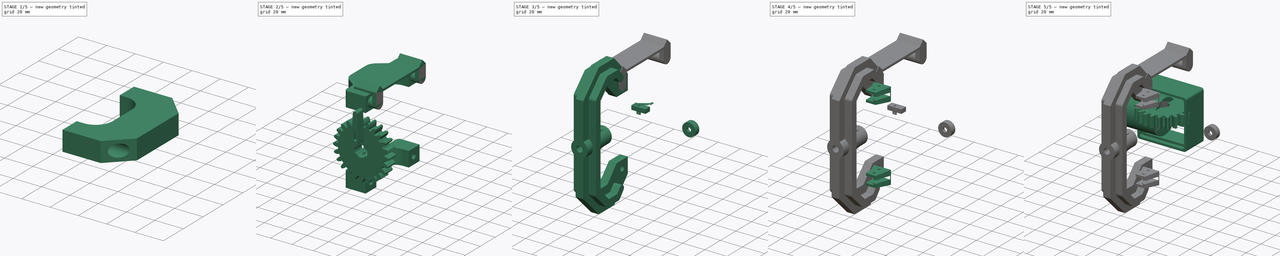
[diagram: build sequence overview — one tinted view per stage of 5, left to right]
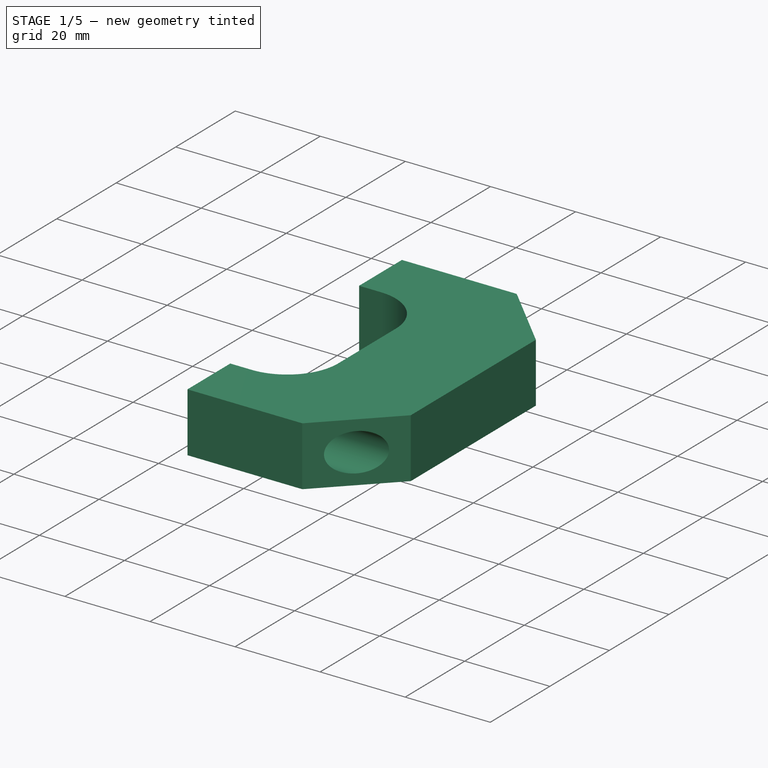
[diagram: stage 1 of 5 — iso view after this stage's code; geometry added in this stage tinted green]
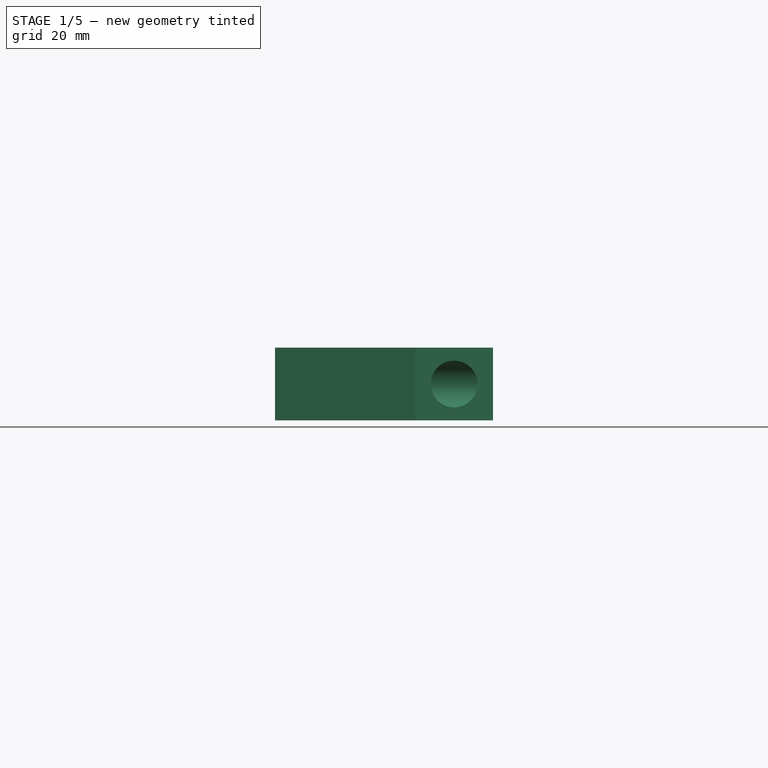
[diagram: stage 1 of 5 — front view after this stage's code; geometry added in this stage tinted green]
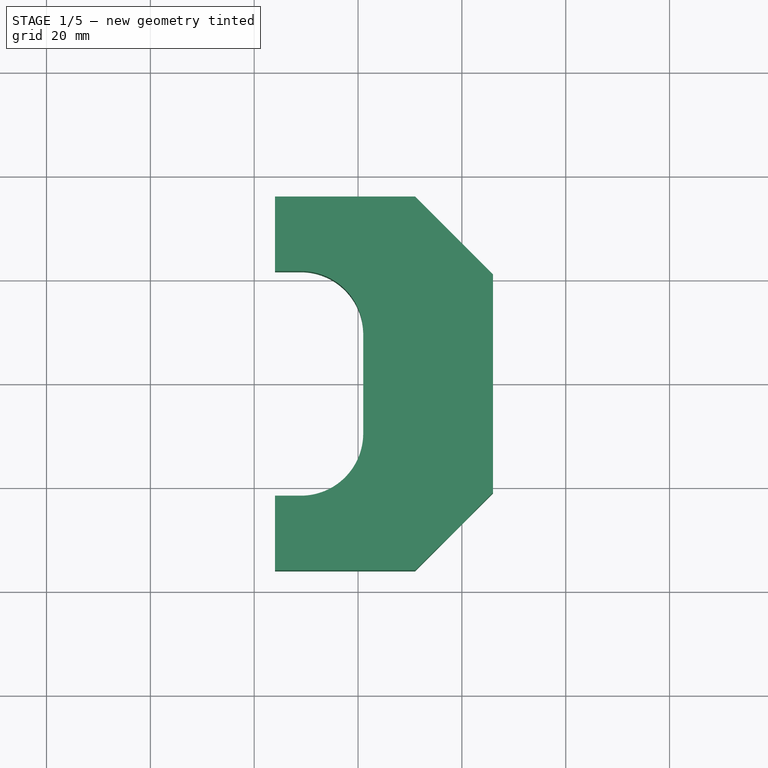
[diagram: stage 1 of 5 — top view after this stage's code; geometry added in this stage tinted green]
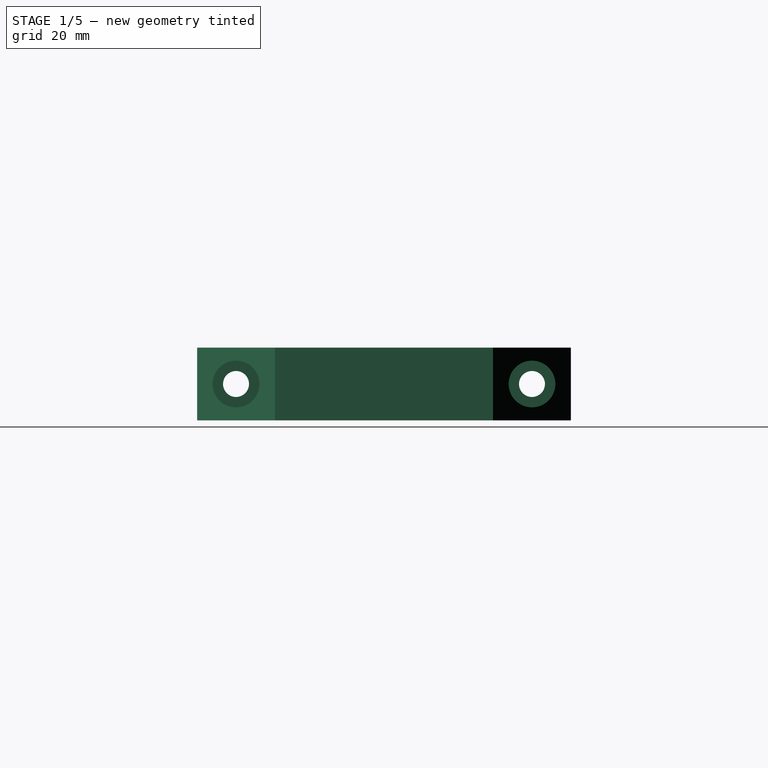
[diagram: stage 1 of 5 — right view after this stage's code; geometry added in this stage tinted green]
FCSTD DOCUMENT  (FreeCAD 1.0R39319 (Git))
Label: device
License: All rights reserved
objects: Sketcher::SketchObject×67, PartDesign::Pad×45, PartDesign::Body×30, PartDesign::Pocket×27, PartDesign::SubShapeBinder×15, PartDesign::Fillet×11, PartDesign::ShapeBinder×10, App::DocumentObjectGroup×8, PartDesign::Mirrored×3, PartDesign::Draft×3, Part::FeaturePython×2, PartDesign::FeatureBase×2, PartDesign::Revolution×2, PartDesign::Chamfer×2, App::Part×2, PartDesign::Plane×2, Part::Fuse×1, Part::Cut×1
note: 475 computed .brp shape members not serialized (recipe doc carries the construction recipe); baked Part::Feature solids carry a one-line shape summary decoded from their .brp

FEATURE [PartDesign::Body] Body004  label="gear-motor"
  AllowCompound = false
  BaseFeature = -> InvoluteGear001
  Group = -> [BaseFeature,Sketch003,Pocket]
  Origin = -> Origin004
  Placement = pos=(47,-38,0) rot=(0.994901,0.071315,-0.071315;1.57591rad)
  Tip = -> Pocket
FEATURE [App::DocumentObjectGroup] Group004  label="small"
  Group = -> [Body004,InvoluteGear001]
FEATURE [Sketcher::SketchObject] Sketch004  label="Sketch"
  ArcFitTolerance = 1e-06
  AttachmentSupport = -> [XZ_Plane005]
  FullyConstrained = true
  MakeInternals = false
  MapMode = 5
  Placement = pos=(0,0,0) rot=(1,0,0;1.5708rad)
  expr: Constraints[19] = 38 / 2
  sketch-geometry (8):
    g0: LineSegment StartX=0 StartY=-41 StartZ=0 EndX=21 EndY=-41 EndZ=0
    g1: LineSegment StartX=21 StartY=-41 StartZ=0 EndX=21 EndY=-26 EndZ=0
    g2: LineSegment StartX=21 StartY=-26 StartZ=0 EndX=19 EndY=-26 EndZ=0
    g3: LineSegment StartX=19 StartY=-26 StartZ=0 EndX=19 EndY=26 EndZ=0
    g4: LineSegment StartX=19 StartY=26 StartZ=0 EndX=21 EndY=26 EndZ=0
    g5: LineSegment StartX=21 StartY=26 StartZ=0 EndX=21 EndY=41 EndZ=0
    g6: LineSegment StartX=21 StartY=41 StartZ=0 EndX=0 EndY=41 EndZ=0
    g7: LineSegment StartX=0 StartY=41 StartZ=0 EndX=0 EndY=-41 EndZ=0
  constraints (24):
    c: PointOnObject(g0,g-2)
    c: Horizontal(g0)
    c: Coincident(g0,g1)
    c: Vertical(g1)
    c: Coincident(g1,g2)
    c: Horizontal(g2)
    c: Coincident(g2,g3)
    c: Vertical(g3)
    c: Coincident(g3,g4)
    c: Horizontal(g4)
    c: Coincident(g4,g5)
    c: Vertical(g5)
    c: Coincident(g5,g6)
    c: PointOnObject(g6,g-2)
    c: Horizontal(g6)
    c: Distance(g0,g6) = 82
    c: Distance(g5,g-1) = 41
    c: DistanceY(g5,g5) = 15
    c: DistanceY(g1,g1) = 15
    c: Distance(g-2,g3) = 19
    c: Vertical(g4,g1)
    c: Distance(g5,g-2) = 21
    c: Coincident(g7,g6)
    c: Coincident(g7,g0)
FEATURE [PartDesign::Revolution] Revolution
  Angle = 360
  Angle2 = 60
  Axis = (0,2e-16,1)
  Base = (0,0,0)
  Placement = pos=(0,0,0) rot=(1,0,0;1.5708rad)
  Profile = -> Sketch004
  ReferenceAxis = -> Sketch004 [V_Axis]
  Refine = true
  Reversed = true
  Suppressed = false
  Type = 0
FEATURE [Sketcher::SketchObject] Sketch005
  ArcFitTolerance = 1e-06
  AttachmentSupport = -> [XZ_Plane005]
  FullyConstrained = true
  MakeInternals = false
  MapMode = 5
  Placement = pos=(0,0,0) rot=(1,0,0;1.5708rad)
  sketch-geometry (6):
    g0: LineSegment StartX=0 StartY=0 StartZ=0 EndX=0 EndY=-19 EndZ=0
    g1: LineSegment StartX=0 StartY=-19 StartZ=0 EndX=-26 EndY=-19 EndZ=0
    g2: LineSegment StartX=-26 StartY=-19 StartZ=0 EndX=-26 EndY=-21 EndZ=0
    g3: LineSegment StartX=-26 StartY=-21 StartZ=0 EndX=-41 EndY=-21 EndZ=0
    g4: LineSegment StartX=-41 StartY=-21 StartZ=0 EndX=-41 EndY=0 EndZ=0
    g5: LineSegment StartX=-41 StartY=0 StartZ=0 EndX=0 EndY=0 EndZ=0
  constraints (17):
    c: Coincident(g-1,g0)
    c: PointOnObject(g0,g-2)
    c: Coincident(g0,g1)
    c: Horizontal(g1)
    c: Coincident(g1,g2)
    c: Vertical(g2)
    c: Coincident(g2,g3)
    c: Horizontal(g3)
    c: Coincident(g3,g4)
    c: PointOnObject(g4,g-1)
    c: Vertical(g4)
    c: Coincident(g4,g5)
    c: Coincident(g5,g0)
    c: DistanceX(g3,g3) = 15
    c: DistanceY(g4,g4) = 21
    c: DistanceY(g0,g-1) = 19
    c: Distance(g-2,g4) = 41
FEATURE [PartDesign::Revolution] Revolution001
  Angle = 360
  Angle2 = 60
  Axis = (1,0,0)
  Base = (0,0,0)
  BaseFeature = -> Revolution
  Placement = pos=(0,0,0) rot=(1,0,0;1.5708rad)
  Profile = -> Sketch005
  ReferenceAxis = -> X_Axis005
  Refine = true
  Reversed = true
  Suppressed = false
  Type = 0
FEATURE [Sketcher::SketchObject] Sketch006
  ArcFitTolerance = 1e-06
  AttachmentSupport = -> [XZ_Plane005]
  FullyConstrained = true
  MakeInternals = false
  MapMode = 5
  Placement = pos=(0,0,0) rot=(1,0,0;1.5708rad)
  sketch-geometry (1):
    g0: Circle CenterX=0 CenterY=0 CenterZ=0 NormalX=0 NormalY=0 NormalZ=1 AngleXU=0 Radius=19.5
  constraints (2):
    c: Diameter(g0) = 39
    c: Coincident(g0,g-1)
FEATURE [PartDesign::Pad] Pad006
  BaseFeature = -> Revolution001
  Direction = (0,-1,0)
  Length = 27
  Length2 = 20.33
  Placement = pos=(0,0,0) rot=(1,0,0;1.5708rad)
  Profile = -> Sketch006
  ReferenceAxis = -> Sketch006 [N_Axis]
  Refine = true
  Suppressed = false
  Type = 0
FEATURE [PartDesign::Body] Body005  label="DN25"
  AllowCompound = false
  Group = -> [Sketch004,Revolution,Sketch005,Revolution001,Sketch006,Pad006]
  Origin = -> Origin005
  Tip = -> Pad006
FEATURE [PartDesign::Pad] Pad007
  Direction = (0,-1,2e-16)
  Length = 51
  Length2 = 10
  Placement = pos=(0,0,0) rot=(1,0,0;1.5708rad)
  Profile = -> Sketch002 [Edge11,Edge12,Edge14,Edge13,Edge15,Edge10]
  ReferenceAxis = -> Sketch002 [N_Axis]
  Refine = true
  Suppressed = false
  Type = 0
FEATURE [PartDesign::Pad] Pad008
  BaseFeature = -> Pad007
  Direction = (0,-1,2e-16)
  Length = 53
  Length2 = 10
  Placement = pos=(0,0,0) rot=(1,0,0;1.5708rad)
  Profile = -> Sketch002 [Edge10]
  ReferenceAxis = -> Sketch002 [N_Axis]
  Refine = true
  Suppressed = false
  Type = 0
FEATURE [PartDesign::Pad] Pad009
  BaseFeature = -> Pad008
  Direction = (0,-1,2e-16)
  Length = 73
  Length2 = 10
  Placement = pos=(0,0,0) rot=(1,0,0;1.5708rad)
  Profile = -> Sketch002 [Edge5]
  ReferenceAxis = -> Sketch002 [N_Axis]
  Refine = true
  Suppressed = false
  Type = 0
FEATURE [PartDesign::Pad] Pad010
  BaseFeature = -> Pad009
  Direction = (0,-1,2e-16)
  Length = 4.5
  Length2 = 10
  Placement = pos=(0,0,0) rot=(1,0,0;1.5708rad)
  Profile = -> Sketch002 [Edge3,Edge4,Edge1,Edge2,Edge8,Edge9,Edge7,Edge6]
  ReferenceAxis = -> Sketch002 [N_Axis]
  Refine = true
  Suppressed = false
  Type = 0
FEATURE [PartDesign::SubShapeBinder] Binder  label="motorBinder"
  BindCopyOnChange = 0
  BindMode = 0
  ClaimChildren = false
  Context = -> Body007 [Binder.]
  Fuse = false
  MakeFace = false
  OffsetFill = false
  OffsetIntersection = false
  OffsetJoinType = 0
  OffsetOpenResult = false
  PartialLoad = false
  Refine = true
  Relative = true
  Support = -> [Body003[Sketch002.]]
  _Version = 2
FEATURE [Sketcher::SketchObject] Sketch007
  ArcFitTolerance = 1e-06
  AttachmentSupport = -> [XZ_Plane007]
  ExternalGeometry = -> [Binder]
  FullyConstrained = true
  MakeInternals = false
  MapMode = 5
  Placement = pos=(0,0,0) rot=(1,0,0;1.5708rad)
  sketch-geometry (8):
    g0: LineSegment StartX=0 StartY=41 StartZ=0 EndX=70.15 EndY=41 EndZ=0
    g1: LineSegment StartX=70.15 StartY=41 StartZ=0 EndX=70.15 EndY=-41 EndZ=0
    g2: LineSegment StartX=70.15 StartY=-41 StartZ=0 EndX=0 EndY=-41 EndZ=0
    g3: LineSegment StartX=0 StartY=-41 StartZ=0 EndX=0 EndY=-26 EndZ=0
    g4: LineSegment StartX=0 StartY=-26 StartZ=0 EndX=23.85 EndY=-26 EndZ=0
    g5: LineSegment StartX=23.85 StartY=-26 StartZ=0 EndX=23.85 EndY=26 EndZ=0
    g6: LineSegment StartX=23.85 StartY=26 StartZ=0 EndX=0 EndY=26 EndZ=0
    g7: LineSegment StartX=0 StartY=26 StartZ=0 EndX=0 EndY=41 EndZ=0
  constraints (23):
    c: PointOnObject(g0,g-2)
    c: Horizontal(g0)
    c: Coincident(g0,g1)
    c: Vertical(g1)
    c: Coincident(g1,g2)
    c: PointOnObject(g2,g-2)
    c: Horizontal(g2)
    c: Coincident(g2,g3)
    c: Vertical(g3)
    c: Coincident(g3,g4)
    c: Horizontal(g4)
    c: Coincident(g4,g5)
    c: Vertical(g5)
    c: Coincident(g5,g6)
    c: Horizontal(g6)
    c: Coincident(g6,g7)
    c: Coincident(g7,g0)
    c: DistanceY(g7,g7) = 15
    c: DistanceY(g3,g3) = 15
    c: DistanceY(g1,g1) = 82
    c: Symmetric(g6,g3,g-1)
    c: DistanceX(g5,g-4) = 2
    c: Distance(g0,g-3) = 2
FEATURE [PartDesign::Pad] Pad011
  Direction = (0,-1,2e-16)
  Length = 15
  Length2 = 15
  Placement = pos=(0,0,0) rot=(1,0,0;1.5708rad)
  Profile = -> Sketch007
  ReferenceAxis = -> Sketch007 [N_Axis]
  Refine = true
  Suppressed = false
  Type = 4
FEATURE [Sketcher::SketchObject] Sketch008
  ArcFitTolerance = 1e-06
  AttachmentSupport = -> [Pad011]
  ExternalGeometry = -> [Binder]
  FullyConstrained = true
  MakeInternals = false
  MapMode = 5
  Placement = pos=(0,-15,0) rot=(1,0,0;1.5708rad)
  sketch-geometry (5):
    g0: Circle CenterX=47 CenterY=1.8e-15 CenterZ=0 NormalX=0 NormalY=0 NormalZ=1 AngleXU=0 Radius=21.15
    g1: Circle CenterX=47 CenterY=17.65 CenterZ=0 NormalX=0 NormalY=0 NormalZ=1 AngleXU=0 Radius=2
    g2: Circle CenterX=64.65 CenterY=0 CenterZ=0 NormalX=0 NormalY=0 NormalZ=1 AngleXU=0 Radius=2
    g3: Circle CenterX=47 CenterY=-17.65 CenterZ=0 NormalX=0 NormalY=0 NormalZ=1 AngleXU=0 Radius=2
    g4: Circle CenterX=29.35 CenterY=0 CenterZ=0 NormalX=0 NormalY=0 NormalZ=1 AngleXU=0 Radius=2
  constraints (11):
    c: Coincident(g0,g-8)
    c: Diameter(g-3) = 42.3
    c: Coincident(g1,g-4)
    c: Equal(g1,g-4)
    c: Coincident(g2,g-7)
    c: Equal(g2,g-7)
    c: Coincident(g3,g-6)
    c: Equal(g3,g-6)
    c: Coincident(g4,g-5)
    c: Equal(g4,g-5)
    c: Equal(g-3,g0)
FEATURE [PartDesign::Pocket] Pocket001  label="motor-hole"
  BaseFeature = -> Pad011
  Direction = (0,1,-2e-16)
  Length = 5
  Length2 = 5
  Placement = pos=(0,0,0) rot=(1,0,0;1.5708rad)
  Profile = -> Sketch008 [Edge1]
  ReferenceAxis = -> Sketch008 [N_Axis]
  Refine = true
  Suppressed = false
  Type = 1
FEATURE [Sketcher::SketchObject] Sketch009
  ArcFitTolerance = 1e-06
  AttachmentSupport = -> [Pocket001]
  ExternalGeometry = -> [Binder,Pocket001]
  FullyConstrained = true
  MakeInternals = false
  MapMode = 5
  Placement = pos=(0,-15,0) rot=(1,0,0;1.5708rad)
  sketch-geometry (8):
    g0: Circle CenterX=47 CenterY=17.65 CenterZ=0 NormalX=0 NormalY=0 NormalZ=1 AngleXU=0 Radius=2
    g1: Circle CenterX=29.35 CenterY=0 CenterZ=0 NormalX=0 NormalY=0 NormalZ=1 AngleXU=0 Radius=2
    g2: Circle CenterX=47 CenterY=-17.65 CenterZ=0 NormalX=0 NormalY=0 NormalZ=1 AngleXU=0 Radius=2
    g3: Circle CenterX=64.65 CenterY=0 CenterZ=0 NormalX=0 NormalY=0 NormalZ=1 AngleXU=0 Radius=2
    g4: Circle [constr] CenterX=47 CenterY=1.8e-15 CenterZ=0 NormalX=0 NormalY=0 NormalZ=1 AngleXU=0 Radius=21.15
    g5: Circle CenterX=47 CenterY=1.8e-15 CenterZ=0 NormalX=0 NormalY=0 NormalZ=1 AngleXU=0 Radius=13.5
    g6: Circle CenterX=47 CenterY=1.8e-15 CenterZ=0 NormalX=0 NormalY=0 NormalZ=1 AngleXU=0 Radius=23.15
    g7: Circle CenterX=47 CenterY=1.8e-15 CenterZ=0 NormalX=0 NormalY=0 NormalZ=1 AngleXU=0 Radius=21.4
  constraints (16):
    c: Coincident(g0,g-3)
    c: Equal(g0,g-3)
    c: Coincident(g1,g-4)
    c: Equal(g1,g-4)
    c: Coincident(g2,g-5)
    c: Equal(g2,g-5)
    c: Coincident(g3,g-6)
    c: Equal(g3,g-6)
    c: Coincident(g4,g-7)
    c: Equal(g4,g-7)
    c: Coincident(g5,g4)
    c: Distance(g-8,g5) = 1
    c: Coincident(g6,g4)
    c: Distance(g4,g6) = 2
    c: Coincident(g4,g7)
    c: Distance(g7,g4) = 0.25
FEATURE [PartDesign::Pad] Pad012  label="motor-stenka"
  BaseFeature = -> Pocket001
  Direction = (0,-1,2e-16)
  Length = 17
  Length2 = 10
  Placement = pos=(0,0,0) rot=(1,0,0;1.5708rad)
  Profile = -> Sketch009 [Edge6,Edge5,Edge1,Edge2,Edge3,Edge4]
  ReferenceAxis = -> Sketch009 [N_Axis]
  Refine = true
  Suppressed = false
  Type = 0
FEATURE [PartDesign::Fillet] Fillet  label="frame-Fillet"
  Base = -> Pad012 [Edge2,Edge8]
  BaseFeature = -> Pad012
  Placement = pos=(0,0,0) rot=(1,0,0;1.5708rad)
  Radius = 40
  Refine = true
  SupportTransform = false
  Suppressed = false
  UseAllEdges = false
FEATURE [PartDesign::Fillet] Fillet001  label="frame-Fillet2"
  Base = -> Fillet [Edge28,Edge25]
  BaseFeature = -> Fillet
  Placement = pos=(0,0,0) rot=(1,0,0;1.5708rad)
  Radius = 10
  Refine = true
  SupportTransform = false
  Suppressed = false
  UseAllEdges = false
FEATURE [PartDesign::SubShapeBinder] Binder001  label="ESBE-Binder001"
  BindCopyOnChange = 0
  BindMode = 0
  ClaimChildren = false
  Context = -> Body007 [Binder001.]
  Fuse = false
  MakeFace = true
  OffsetFill = false
  OffsetIntersection = false
  OffsetJoinType = 0
  OffsetOpenResult = false
  PartialLoad = false
  Refine = true
  Relative = true
  Support = -> [Body005]
  _Version = 2
FEATURE [Sketcher::SketchObject] Sketch010
  ArcFitTolerance = 1e-06
  AttachmentSupport = -> [Fillet001]
  ExternalGeometry = -> [Binder001]
  FullyConstrained = true
  MakeInternals = false
  MapMode = 5
  Placement = pos=(0,1.8e-14,41) rot=(0,0,1;3.14159rad)
  expr: Constraints[38] = .Constraints.zazor
  sketch-geometry (16):
    g0: LineSegment StartX=-4 StartY=36 StartZ=0 EndX=-46 EndY=36 EndZ=0
    g1: LineSegment StartX=-46 StartY=36 StartZ=0 EndX=-46 EndY=-36 EndZ=0
    g2: LineSegment StartX=-46 StartY=-36 StartZ=0 EndX=-4 EndY=-36 EndZ=0
    g3: LineSegment StartX=-4 StartY=-36 StartZ=0 EndX=-4 EndY=-21.6333 EndZ=0
    g4: LineSegment StartX=-4 StartY=-21.6333 StartZ=0 EndX=-21 EndY=-21.6333 EndZ=0
    g5: LineSegment StartX=-21 StartY=-21.6333 StartZ=0 EndX=-21 EndY=21.6333 EndZ=0
    g6: LineSegment StartX=-21 StartY=21.6333 StartZ=0 EndX=-4 EndY=21.6333 EndZ=0
    g7: LineSegment StartX=-4 StartY=21.6333 StartZ=0 EndX=-4 EndY=36 EndZ=0
    g8: LineSegment StartX=4 StartY=36 StartZ=0 EndX=4 EndY=21.6333 EndZ=0
    g9: LineSegment StartX=4 StartY=21.6333 StartZ=0 EndX=21 EndY=21.6333 EndZ=0
    g10: LineSegment StartX=21 StartY=21.6333 StartZ=0 EndX=21 EndY=-21.6333 EndZ=0
    g11: LineSegment StartX=21 StartY=-21.6333 StartZ=0 EndX=4 EndY=-21.6333 EndZ=0
    g12: LineSegment StartX=4 StartY=-21.6333 StartZ=0 EndX=4 EndY=-36 EndZ=0
    g13: LineSegment StartX=4 StartY=-36 StartZ=0 EndX=36 EndY=-36 EndZ=0
    g14: LineSegment StartX=36 StartY=-36 StartZ=0 EndX=36 EndY=36 EndZ=0
    g15: LineSegment StartX=36 StartY=36 StartZ=0 EndX=4 EndY=36 EndZ=0
  constraints (45):
    c: Horizontal(g0)
    c: Coincident(g0,g1)
    c: Vertical(g1)
    c: Coincident(g1,g2)
    c: Horizontal(g2)
    c: Coincident(g2,g3)
    c: Coincident(g3,g4)
    c: Horizontal(g4)
    c: Coincident(g4,g5)
    c: Vertical(g5)
    c: Coincident(g5,g6)
    c: Coincident(g7,g6)
    c: Coincident(g7,g0)
    c: Symmetric(g0,g2,g-1)
    c: Symmetric(g6,g3,g-1)
    c: Tangent(g-3,g5)
    c: Horizontal(g6)
    c: Distance(g6,g-3) = 1
    c: Distance(g0,g-1) = 36
    c: DistanceX(g2,g2) = 42
    c: Vertical(g7)
    c: Distance(g-2,g3) = 4  'zazor'
    c: Vertical(g8)
    c: Coincident(g8,g9)
    c: Horizontal(g9)
    c: Coincident(g9,g10)
    c: Vertical(g10)
    c: Coincident(g10,g11)
    c: Horizontal(g11)
    c: Coincident(g11,g12)
    c: Vertical(g12)
    c: Coincident(g12,g13)
    c: Horizontal(g13)
    c: Coincident(g13,g14)
    c: Coincident(g14,g15)
    c: Coincident(g15,g8)
    c: Horizontal(g15)
    c: Tangent(g-3,g10)
    c: Distance(g12,g-2) = 4
    c: Equal(g12,g3)
    c: Equal(g8,g7)
    c: Symmetric(g14,g13,g-1)
    c: Distance(g14,g10) = 15
    c: Horizontal(g6,g8)
    c: Vertical(g8,g11)
FEATURE [Sketcher::SketchObject] Sketch011
  ArcFitTolerance = 1e-06
  AttachmentSupport = -> [Fillet001]
  ExternalGeometry = -> [Sketch010]
  FullyConstrained = false
  MakeInternals = false
  MapMode = 5
  Placement = pos=(0,1.8e-14,41) rot=(0,0,1;3.14159rad)
  sketch-geometry (6):
    g0: LineSegment StartX=-21 StartY=-21.6333 StartZ=0 EndX=-21 EndY=21.6333 EndZ=0
    g1: LineSegment StartX=-21 StartY=21.6333 StartZ=0 EndX=-21 EndY=52.6586 EndZ=0
    g2: LineSegment StartX=-21 StartY=52.6586 StartZ=0 EndX=80.1837 EndY=52.6586 EndZ=0
    g3: LineSegment StartX=80.1837 StartY=52.6586 StartZ=0 EndX=80.1837 EndY=-35.4927 EndZ=0
    g4: LineSegment StartX=80.1837 StartY=-35.4927 StartZ=0 EndX=-21 EndY=-35.4927 EndZ=0
    g5: LineSegment StartX=-21 StartY=-35.4927 StartZ=0 EndX=-21 EndY=-21.6333 EndZ=0
  constraints (12):
    c: Coincident(g0,g-3)
    c: Coincident(g0,g1)
    c: Vertical(g1)
    c: Coincident(g1,g2)
    c: Horizontal(g2)
    c: Coincident(g2,g3)
    c: Vertical(g3)
    c: Coincident(g3,g4)
    c: Horizontal(g4)
    c: Coincident(g4,g5)
    c: Coincident(g5,g0)
    c: Vertical(g5)
FEATURE [PartDesign::Pocket] Pocket002  label="frame-virez-4-valve"
  BaseFeature = -> Fillet001
  Direction = (0,0,-1)
  Length = 5
  Length2 = 5
  Placement = pos=(0,0,0) rot=(1,0,0;1.5708rad)
  Profile = -> Sketch011
  ReferenceAxis = -> Sketch011 [N_Axis]
  Refine = true
  Suppressed = false
  Type = 1
FEATURE [PartDesign::SubShapeBinder] Binder002
  BindCopyOnChange = 0
  BindMode = 0
  ClaimChildren = false
  Context = -> Body008 [Binder002.]
  Fuse = false
  MakeFace = false
  OffsetFill = false
  OffsetIntersection = false
  OffsetJoinType = 0
  OffsetOpenResult = false
  PartialLoad = false
  Refine = true
  Relative = true
  Support = -> [Body007[Sketch010.]]
  _Version = 2
FEATURE [Sketcher::SketchObject] Sketch012
  ArcFitTolerance = 1e-06
  AttachmentSupport = -> [Binder002]
  ExternalGeometry = -> [Binder002]
  FullyConstrained = true
  MakeInternals = false
  MapMode = 5
  Placement = pos=(0,0,41) rot=(0,0,1;0rad)
  sketch-geometry (8):
    g0: LineSegment StartX=4 StartY=36 StartZ=0 EndX=46 EndY=36 EndZ=0
    g1: LineSegment StartX=46 StartY=36 StartZ=0 EndX=46 EndY=-36 EndZ=0
    g2: LineSegment StartX=46 StartY=-36 StartZ=0 EndX=4 EndY=-36 EndZ=0
    g3: LineSegment StartX=4 StartY=-36 StartZ=0 EndX=4 EndY=-21.6333 EndZ=0
    g4: LineSegment StartX=4 StartY=-21.6333 StartZ=0 EndX=21 EndY=-21.6333 EndZ=0
    g5: LineSegment StartX=21 StartY=-21.6333 StartZ=0 EndX=21 EndY=21.6333 EndZ=0
    g6: LineSegment StartX=21 StartY=21.6333 StartZ=0 EndX=4 EndY=21.6333 EndZ=0
    g7: LineSegment StartX=4 StartY=21.6333 StartZ=0 EndX=4 EndY=36 EndZ=0
  constraints (16):
    c: Coincident(g-4,g0)
    c: Coincident(g0,g-4)
    c: Coincident(g0,g1)
    c: Coincident(g1,g-6)
    c: Coincident(g1,g2)
    c: Coincident(g2,g-6)
    c: Coincident(g2,g3)
    c: Coincident(g3,g-5)
    c: Coincident(g3,g4)
    c: Coincident(g4,g-5)
    c: Coincident(g4,g5)
    c: Coincident(g5,g-3)
    c: Coincident(g5,g6)
    c: Coincident(g6,g-3)
    c: Coincident(g6,g7)
    c: Coincident(g7,g0)
FEATURE [PartDesign::Pad] Pad013
  Direction = (0,0,1)
  Length = 14
  Length2 = 1
  Profile = -> Sketch012
  ReferenceAxis = -> Sketch012 [N_Axis]
  Refine = true
  Reversed = true
  Suppressed = false
  Type = 0
FEATURE [PartDesign::Chamfer] Chamfer
  Angle = 45
  Base = -> Pad013 [Edge5,Edge2]
  BaseFeature = -> Pad013
  ChamferType = 1
  FlipDirection = false
  Refine = true
  Size = 15
  Size2 = 15
  SupportTransform = false
  Suppressed = false
  UseAllEdges = false
FEATURE [Sketcher::SketchObject] Sketch013
  ArcFitTolerance = 1e-06
  AttachmentSupport = -> [Chamfer]
  ExternalGeometry = -> [Chamfer]
  FullyConstrained = true
  MakeInternals = false
  MapMode = 5
  Placement = pos=(46,0,0) rot=(0.57735,0.57735,0.57735;2.0944rad)
  sketch-geometry (12):
    g0: GeomPoint [constr] X=-28.5 Y=41 Z=0
    g1: GeomPoint [constr] X=-28.5 Y=27 Z=0
    g2: GeomPoint [constr] X=28.5 Y=41 Z=0
    g3: GeomPoint [constr] X=28.5 Y=27 Z=0
    g4: LineSegment [constr] StartX=28.5 StartY=41 StartZ=0 EndX=28.5 EndY=27 EndZ=0
    g5: LineSegment [constr] StartX=-28.5 StartY=41 StartZ=0 EndX=-28.5 EndY=27 EndZ=0
    g6: GeomPoint [constr] X=-28.5 Y=34 Z=0
    g7: GeomPoint [constr] X=28.5 Y=34 Z=0
    g8: Circle CenterX=28.5 CenterY=34 CenterZ=0 NormalX=0 NormalY=0 NormalZ=1 AngleXU=0 Radius=4.5
    g9: Circle CenterX=28.5 CenterY=34 CenterZ=0 NormalX=0 NormalY=0 NormalZ=1 AngleXU=0 Radius=2.5
    g10: Circle CenterX=-28.5 CenterY=34 CenterZ=0 NormalX=0 NormalY=0 NormalZ=1 AngleXU=0 Radius=4.5
    g11: Circle CenterX=-28.5 CenterY=34 CenterZ=0 NormalX=0 NormalY=0 NormalZ=1 AngleXU=0 Radius=2.5
  constraints (18):
    c: Symmetric(g-3,g-3,g0)
    c: Symmetric(g-4,g-4,g1)
    c: Symmetric(g-5,g-5,g2)
    c: Symmetric(g-6,g-6,g3)
    c: Coincident(g4,g2)
    c: Coincident(g4,g3)
    c: Symmetric(g-3,g-3,g5)
    c: Coincident(g5,g1)
    c: Symmetric(g5,g5,g6)
    c: Symmetric(g4,g4,g7)
    c: Diameter(g8) = 9
    c: Coincident(g8,g7)
    c: Diameter(g9) = 5
    c: Symmetric(g4,g4,g9)
    c: Diameter(g10) = 9
    c: Coincident(g10,g6)
    c: Diameter(g11) = 5
    c: Coincident(g11,g6)
FEATURE [PartDesign::Pocket] Pocket003
  BaseFeature = -> Chamfer
  Direction = (-1,0,0)
  Length = 0
  Length2 = 5
  Offset = 10
  Profile = -> Sketch013 [Edge1,Edge3]
  ReferenceAxis = -> Sketch013 [N_Axis]
  Refine = true
  Suppressed = false
  Type = 3
  UpToFace = -> Chamfer [Face4]
FEATURE [PartDesign::Pocket] Pocket004
  BaseFeature = -> Pocket003
  Direction = (-1,0,0)
  Length = 5
  Length2 = 5
  Profile = -> Sketch013 [Edge4,Edge2]
  ReferenceAxis = -> Sketch013 [N_Axis]
  Refine = true
  Suppressed = false
  Type = 1
FEATURE [PartDesign::Fillet] Fillet002
  Base = -> Pocket004 [Edge28,Edge31]
  BaseFeature = -> Pocket004
  Radius = 12
  Refine = true
  SupportTransform = false
  Suppressed = false
  UseAllEdges = false
FEATURE [PartDesign::SubShapeBinder] Binder006  label="motor002"
  BindCopyOnChange = 0
  BindMode = 0
  ClaimChildren = false
  Context = -> Body010 [Binder006.]
  Fuse = false
  MakeFace = false
  OffsetFill = false
  OffsetIntersection = false
  OffsetJoinType = 0
  OffsetOpenResult = false
  PartialLoad = false
  Refine = true
  Relative = true
  Support = -> [Body003[Sketch002.]]
  _Version = 2
FEATURE [Sketcher::SketchObject] Sketch016
  ArcFitTolerance = 1e-06
  AttachmentSupport = -> [XZ_Plane010]
  ExternalGeometry = -> [Binder006]
  FullyConstrained = false
  MakeInternals = false
  MapMode = 5
  Placement = pos=(0,0,0) rot=(1,0,0;1.5708rad)
  sketch-geometry (3):
    g0: Circle CenterX=47 CenterY=1.55e-14 CenterZ=0 NormalX=0 NormalY=0 NormalZ=1 AngleXU=0 Radius=2
    g1: Circle CenterX=47 CenterY=1.55e-14 CenterZ=0 NormalX=0 NormalY=0 NormalZ=1 AngleXU=0 Radius=6
    g2: Circle CenterX=47 CenterY=1.55e-14 CenterZ=0 NormalX=0 NormalY=0 NormalZ=1 AngleXU=0 Radius=4.15107
  constraints (6):
    c: Diameter(g-3) = 8
    c: Diameter(g0) = 4
    c: Coincident(g0,g-3)
    c: Diameter(g1) = 12
    c: Coincident(g1,g0)
    c: Coincident(g2,g0)
FEATURE [PartDesign::Pocket] Pocket006  label="motor-stenka-hole"
  BaseFeature = -> Pocket002
  Direction = (0,1,-2e-16)
  Length = 13
  Length2 = 5
  Placement = pos=(0,0,0) rot=(1,0,0;1.5708rad)
  Profile = -> Sketch009 [Edge7]
  ReferenceAxis = -> Sketch009 [N_Axis]
  Refine = true
  Reversed = true
  Suppressed = false
  Type = 0
FEATURE [Sketcher::SketchObject] Sketch017
  ArcFitTolerance = 1e-06
  AttachmentSupport = -> [Pad010]
  FullyConstrained = true
  MakeInternals = false
  MapMode = 5
  Placement = pos=(0,-73,0) rot=(1,0,0;1.5708rad)
  sketch-geometry (1):
    g0: Circle CenterX=0 CenterY=0 CenterZ=0 NormalX=0 NormalY=0 NormalZ=1 AngleXU=0 Radius=1.5
  constraints (2):
    c: Diameter(g0) = 3
    c: Coincident(g0,g-1)
FEATURE [PartDesign::Pocket] Pocket008
  BaseFeature = -> Pad010
  Direction = (0,1,-2e-16)
  Length = 35
  Length2 = 5
  Placement = pos=(0,0,0) rot=(1,0,0;1.5708rad)
  Profile = -> Sketch017
  ReferenceAxis = -> Sketch017 [N_Axis]
  Refine = true
  Suppressed = false
  Type = 0
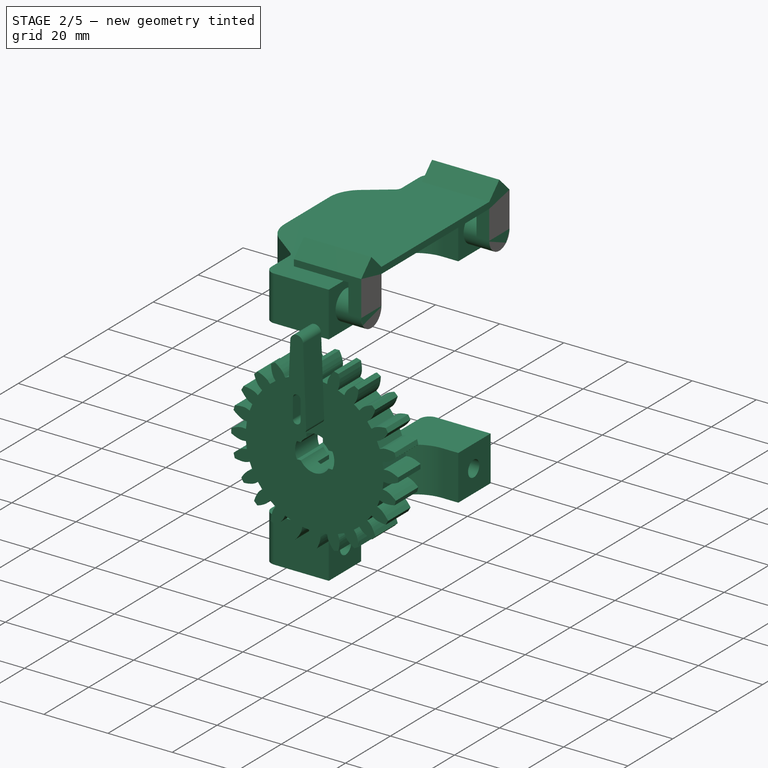
[diagram: stage 2 of 5 — iso view after this stage's code; geometry added in this stage tinted green]
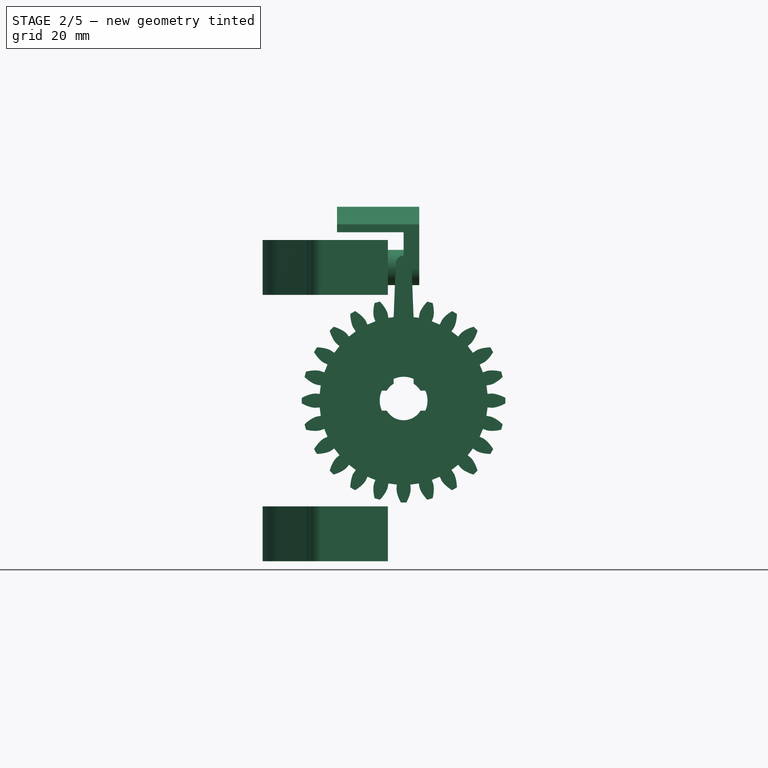
[diagram: stage 2 of 5 — front view after this stage's code; geometry added in this stage tinted green]
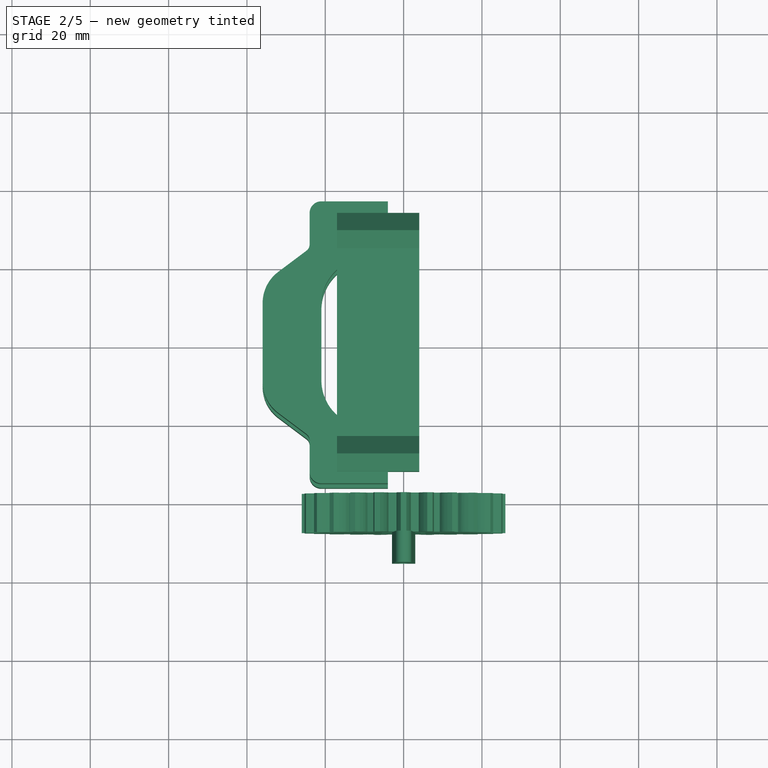
[diagram: stage 2 of 5 — top view after this stage's code; geometry added in this stage tinted green]
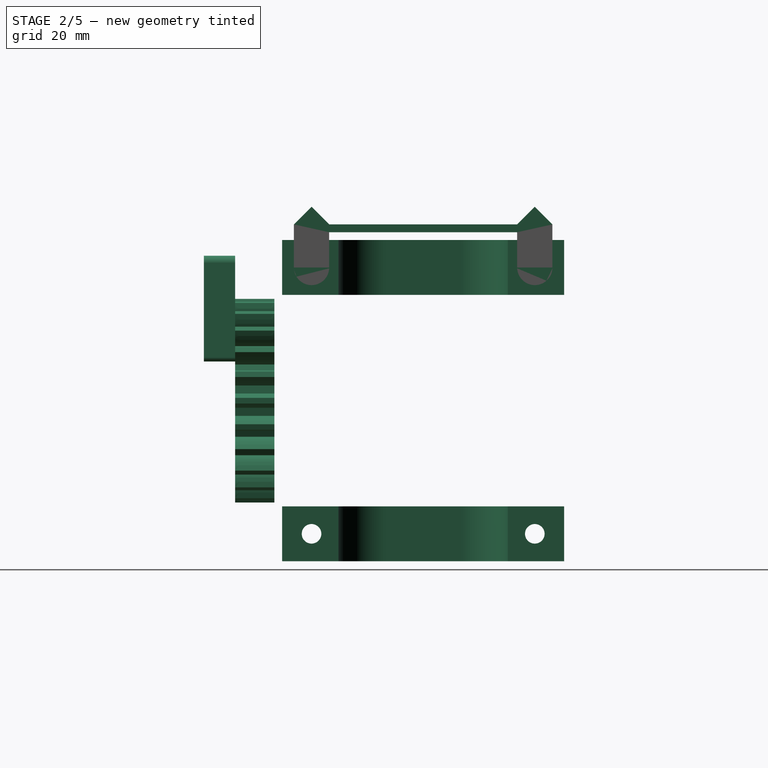
[diagram: stage 2 of 5 — right view after this stage's code; geometry added in this stage tinted green]
FEATURE [Sketcher::SketchObject] Sketch  label="master"
  ArcFitTolerance = 1e-06
  FullyConstrained = true
  MakeInternals = false
  MapMode = 5
  Placement = pos=(0,0,0) rot=(1,0,0;1.5708rad)
  sketch-geometry (22):
    g0: Circle CenterX=0 CenterY=0 CenterZ=0 NormalX=0 NormalY=0 NormalZ=1 AngleXU=0 Radius=19.5
    g1: GeomPoint [constr] X=0 Y=0 Z=0
    g2: Circle CenterX=0 CenterY=0 CenterZ=0 NormalX=0 NormalY=0 NormalZ=1 AngleXU=0 Radius=2.5
    g3: Circle [constr] CenterX=0 CenterY=0 CenterZ=0 NormalX=0 NormalY=0 NormalZ=1 AngleXU=0 Radius=6.1
    g4: ArcOfCircle CenterX=0 CenterY=0 CenterZ=0 NormalX=0 NormalY=0 NormalZ=1 AngleXU=0 Radius=5 StartAngle=2.10598 EndAngle=2.60641
    g5: ArcOfCircle CenterX=0 CenterY=0 CenterZ=0 NormalX=0 NormalY=0 NormalZ=1 AngleXU=0 Radius=6.1 StartAngle=1.13952 EndAngle=2.00208
    g6: LineSegment [constr] StartX=-2.55 StartY=5.54143 StartZ=0 EndX=2.55 EndY=5.54143 EndZ=0
    g7: LineSegment StartX=-2.55 StartY=5.54143 StartZ=0 EndX=-2.55 EndY=4.30087 EndZ=0
    g8: LineSegment StartX=2.55 StartY=5.54143 StartZ=0 EndX=2.55 EndY=4.30087 EndZ=0
    g9: ArcOfCircle CenterX=0 CenterY=0 CenterZ=0 NormalX=0 NormalY=0 NormalZ=1 AngleXU=0 Radius=5 StartAngle=2.10598 EndAngle=2.60641
    g10: GeomPoint [constr] X=0 Y=6.1 Z=0
    g11: ArcOfCircle CenterX=0 CenterY=0 CenterZ=0 NormalX=0 NormalY=0 NormalZ=1 AngleXU=0 Radius=6.1 StartAngle=2.71031 EndAngle=3.57287
    g12: ArcOfCircle CenterX=0 CenterY=0 CenterZ=0 NormalX=0 NormalY=0 NormalZ=1 AngleXU=0 Radius=6.1 StartAngle=5.85191 EndAngle=6.71446
    g13: LineSegment [constr] StartX=-5.54143 StartY=2.55 StartZ=0 EndX=-5.54143 EndY=-2.55 EndZ=0
    g14: LineSegment [constr] StartX=5.54143 StartY=2.55 StartZ=0 EndX=5.54143 EndY=-2.55 EndZ=0
    g15: LineSegment StartX=5.54143 StartY=2.55 StartZ=0 EndX=4.30087 EndY=2.55 EndZ=0
    g16: LineSegment StartX=5.54143 StartY=-2.55 StartZ=0 EndX=4.30087 EndY=-2.55 EndZ=0
    g17: ArcOfCircle CenterX=0 CenterY=0 CenterZ=0 NormalX=0 NormalY=0 NormalZ=1 AngleXU=0 Radius=5 StartAngle=3.67678 EndAngle=5.748
    g18: ArcOfCircle CenterX=0 CenterY=0 CenterZ=0 NormalX=0 NormalY=0 NormalZ=1 AngleXU=0 Radius=5 StartAngle=0.535185 EndAngle=1.03561
    g19: LineSegment StartX=-5.54143 StartY=2.55 StartZ=0 EndX=-4.30087 EndY=2.55 EndZ=0
    g20: LineSegment StartX=-5.54143 StartY=-2.55 StartZ=0 EndX=-4.30087 EndY=-2.55 EndZ=0
    g21: ArcOfCircle CenterX=0 CenterY=0 CenterZ=0 NormalX=0 NormalY=0 NormalZ=1 AngleXU=0 Radius=5 StartAngle=0.535185 EndAngle=1.03561
  constraints (62):
    c: Diameter(g0) = 39
    c: Coincident(g1,g0)
    c: Diameter(g2) = 5
    c: Coincident(g2,g0)
    c: Diameter(g3) = 12.2  'cir'
    c: Coincident(g3,g0)
    c: Radius(g4) = 5
    c: Coincident(g4,g0)
    c: Coincident(g5,g0)
    c: PointOnObject(g5,g3)
    c: DistanceX(g5,g5) = 5.1
    c: Coincident(g6,g5)
    c: Coincident(g6,g5)
    c: Horizontal(g6)
    c: Coincident(g7,g5)
    c: PointOnObject(g7,g9)
    c: Vertical(g7)
    c: PointOnObject(g8,g3)
    c: Vertical(g8)
    c: PointOnObject(g5,g8)
    c: Coincident(g18,g8)
    c: PointOnObject(g9,g7)
    c: Coincident(g4,g9)
    c: PointOnObject(g10,g3)
    c: Vertical(g10,g0)
    c: Coincident(g11,g0)
    c: PointOnObject(g11,g3)
    c: Coincident(g12,g0)
    c: PointOnObject(g12,g3)
    c: DistanceY(g11,g11) = 5.1
    c: DistanceY(g12,g12) = 5.1
    c: Coincident(g13,g11)
    c: Coincident(g13,g11)
    c: Vertical(g13)
    c: Coincident(g14,g12)
    c: Coincident(g14,g12)
    c: Vertical(g14)
    c: Coincident(g15,g12)
    c: PointOnObject(g15,g18)
    c: Horizontal(g15)
    c: Coincident(g16,g12)
    c: Horizontal(g16)
    c: Equal(g9,g17)
    c: Coincident(g9,g17)
    c: Equal(g4,g18)
    c: PointOnObject(g18,g15)
    c: Coincident(g4,g18)
    c: Coincident(g0,g-1)
    c: Coincident(g19,g11)
    c: PointOnObject(g19,g4)
    c: Horizontal(g19)
    c: Coincident(g20,g11)
    c: Coincident(g20,g17)
    c: Horizontal(g20)
    c: PointOnObject(g4,g7)
    c: PointOnObject(g9,g19)
    c: Equal(g17,g21)
    c: PointOnObject(g21,g15)
    c: Coincident(g17,g21)
    c: PointOnObject(g21,g8)
    c: Coincident(g4,g9)
    c: Coincident(g17,g16)
FEATURE [PartDesign::Pad] Pad
  Direction = (0,-1,2e-16)
  Length = 19.87
  Length2 = 10
  Placement = pos=(0,0,0) rot=(1,0,0;1.5708rad)
  Profile = -> Sketch [Edge10,Edge12,Edge13,Edge14,Edge15,Edge3,Edge4,Edge5,Edge6,Edge7,Edge8,Edge9,Edge2]
  ReferenceAxis = -> Sketch [N_Axis]
  Refine = true
  Suppressed = false
  Type = 0
FEATURE [PartDesign::Body] Body002  label="left-pipe"
  AllowCompound = false
  Group = -> [Sketch001,Pad003]
  Origin = -> Origin002
  Placement = pos=(-41,0,0) rot=(0,0,1;0rad)
  Tip = -> Pad003
FEATURE [Sketcher::SketchObject] Sketch002
  ArcFitTolerance = 1e-06
  AttachmentSupport = -> [XZ_Plane003]
  FullyConstrained = true
  MakeInternals = false
  MapMode = 5
  Placement = pos=(0,0,0) rot=(1,0,0;1.5708rad)
  sketch-geometry (18):
    g0: LineSegment StartX=-21.15 StartY=-21.15 StartZ=0 EndX=21.15 EndY=-21.15 EndZ=0
    g1: LineSegment StartX=21.15 StartY=-21.15 StartZ=0 EndX=21.15 EndY=21.15 EndZ=0
    g2: LineSegment StartX=21.15 StartY=21.15 StartZ=0 EndX=-21.15 EndY=21.15 EndZ=0
    g3: LineSegment StartX=-21.15 StartY=21.15 StartZ=0 EndX=-21.15 EndY=-21.15 EndZ=0
    g4: GeomPoint [constr] X=0 Y=0 Z=0
    g5: Circle CenterX=0 CenterY=0 CenterZ=0 NormalX=0 NormalY=0 NormalZ=1 AngleXU=0 Radius=4
    g6: Circle CenterX=16.375 CenterY=-15.5 CenterZ=0 NormalX=0 NormalY=0 NormalZ=1 AngleXU=0 Radius=1.75
    g7: Circle CenterX=-16.375 CenterY=-15.5 CenterZ=0 NormalX=0 NormalY=0 NormalZ=1 AngleXU=0 Radius=1.75
    g8: LineSegment [constr] StartX=-2e-16 StartY=21.15 StartZ=0 EndX=-2e-16 EndY=-21.15 EndZ=0
    g9: LineSegment [constr] StartX=-21.15 StartY=1e-16 StartZ=0 EndX=21.15 EndY=-6e-16 EndZ=0
    g10: Circle CenterX=16.375 CenterY=15.5 CenterZ=0 NormalX=0 NormalY=0 NormalZ=1 AngleXU=0 Radius=1.75
    g11: Circle CenterX=-16.375 CenterY=15.5 CenterZ=0 NormalX=0 NormalY=0 NormalZ=1 AngleXU=0 Radius=1.75
    g12: Circle CenterX=0 CenterY=0 CenterZ=0 NormalX=0 NormalY=0 NormalZ=1 AngleXU=0 Radius=12.5
    g13: Circle CenterX=0 CenterY=0 CenterZ=0 NormalX=0 NormalY=0 NormalZ=1 AngleXU=0 Radius=21.15
    g14: Circle CenterX=-2e-16 CenterY=17.65 CenterZ=0 NormalX=0 NormalY=0 NormalZ=1 AngleXU=0 Radius=2
    g15: Circle CenterX=-8e-16 CenterY=-17.65 CenterZ=0 NormalX=0 NormalY=0 NormalZ=1 AngleXU=0 Radius=2
    g16: Circle CenterX=17.65 CenterY=-5e-16 CenterZ=0 NormalX=0 NormalY=0 NormalZ=1 AngleXU=0 Radius=2
    g17: Circle CenterX=-17.65 CenterY=-5e-16 CenterZ=0 NormalX=0 NormalY=0 NormalZ=1 AngleXU=0 Radius=2
  constraints (41):
    c: Coincident(g0,g1)
    c: Coincident(g1,g2)
    c: Coincident(g2,g3)
    c: Coincident(g3,g0)
    c: Horizontal(g0)
    c: Horizontal(g2)
    c: Vertical(g1)
    c: Vertical(g3)
    c: Symmetric(g2,g0,g4)
    c: Distance(g1,g3) = 42.3
    c: Distance(g0,g2) = 42.3
    c: Diameter(g5) = 8
    c: Coincident(g5,g4)
    c: Diameter(g6) = 3.5
    c: Diameter(g7) = 3.5
    c: Distance(g7,g6) = 31
    c: Symmetric(g2,g2,g8)
    c: Symmetric(g0,g0,g8)
    c: Symmetric(g7,g6,g8)
    c: Symmetric(g3,g3,g9)
    c: Symmetric(g1,g1,g9)
    c: Diameter(g10) = 3.5
    c: Diameter(g11) = 3.5
    c: Symmetric(g6,g10,g9)
    c: Symmetric(g7,g11,g9)
    c: DistanceY(g6,g10) = 31
    c: Diameter(g12) = 25
    c: Coincident(g12,g4)
    c: Diameter(g13) = 42.3
    c: Coincident(g13,g4)
    c: Diameter(g14) = 4
    c: PointOnObject(g14,g8)
    c: Diameter(g15) = 4
    c: Diameter(g16) = 4
    c: PointOnObject(g16,g9)
    c: Diameter(g17) = 4
    c: Distance(g16,g13) = 3.5
    c: Coincident(g4,g-1)
    c: Symmetric(g14,g15,g9)
    c: Distance(g14,g13) = 3.5
    c: Symmetric(g17,g16,g8)
FEATURE [Part::FeaturePython] InvoluteGear  # WARN: FeaturePython — macro-defined, semantics opaque (R4)
  AttacherType = Attacher::AttachEngine3D
  Placement = pos=(0,0,0) rot=(1,0,0;1.5708rad)
  addendum_diameter = 52
  angular_backlash = 0
  axle_hole = true
  axle_holesize = 6
  backlash = 0
  clearance = 0.25
  double_helix = false
  head = 0
  head_fillet = 0
  height = 10
  helix_angle = 0
  module = 2
  num_teeth = 24
  numpoints = 10
  offset_hole = false
  offset_holeoffset = 10
  offset_holesize = 10
  pitch_diameter = 48
  pressure_angle = 20
  properties_from_tool = false
  reversed_backlash = false
  root_diameter = 43
  root_fillet = 0
  shift = 0
  simple = false
  transverse_pitch = 6.28319
  traverse_module = 2
  undercut = false
  version = 1.3.0
  expr: angular_backlash = backlash / pitch_diameter * 360 ° / pi
FEATURE [PartDesign::SubShapeBinder] Binder003
  BindCopyOnChange = 0
  BindMode = 0
  ClaimChildren = false
  Context = -> Body009 [Binder003.]
  Fuse = false
  MakeFace = true
  OffsetFill = false
  OffsetIntersection = false
  OffsetJoinType = 0
  OffsetOpenResult = false
  PartialLoad = false
  Refine = true
  Relative = true
  Support = -> [Body007]
  _Version = 2
FEATURE [Sketcher::SketchObject] Sketch014
  ArcFitTolerance = 1e-06
  AttachmentSupport = -> [Binder003]
  FullyConstrained = true
  MakeInternals = false
  MapMode = 5
  Placement = pos=(0,9e-15,41) rot=(0,0,1;0rad)
  sketch-geometry (12):
    g0: LineSegment StartX=-4 StartY=-36 StartZ=0 EndX=-4 EndY=-21.6333 EndZ=0
    g1: LineSegment StartX=-4 StartY=-21.6333 StartZ=0 EndX=-21 EndY=-21.6333 EndZ=0
    g2: LineSegment StartX=-21 StartY=-21.6333 StartZ=0 EndX=-21 EndY=21.6333 EndZ=0
    g3: LineSegment StartX=-21 StartY=21.6333 StartZ=0 EndX=-4 EndY=21.6333 EndZ=0
    g4: LineSegment StartX=-4 StartY=21.6333 StartZ=0 EndX=-4 EndY=36 EndZ=0
    g5: LineSegment StartX=-24 StartY=24 StartZ=0 EndX=-36 EndY=15 EndZ=0
    g6: LineSegment StartX=-36 StartY=15 StartZ=0 EndX=-36 EndY=-15 EndZ=0
    g7: LineSegment StartX=-36 StartY=-15 StartZ=0 EndX=-24 EndY=-24 EndZ=0
    g8: LineSegment StartX=-24 StartY=36 StartZ=0 EndX=-24 EndY=24 EndZ=0
    g9: LineSegment StartX=-24 StartY=36 StartZ=0 EndX=-4 EndY=36 EndZ=0
    g10: LineSegment StartX=-4 StartY=-36 StartZ=0 EndX=-24 EndY=-36 EndZ=0
    g11: LineSegment StartX=-24 StartY=-36 StartZ=0 EndX=-24 EndY=-24 EndZ=0
  constraints (29):
    c: Coincident(g-7,g0)
    c: Coincident(g0,g-7)
    c: Coincident(g0,g1)
    c: Coincident(g1,g-5)
    c: Coincident(g1,g2)
    c: Coincident(g2,g-4)
    c: Coincident(g2,g3)
    c: Coincident(g3,g-8)
    c: Coincident(g3,g4)
    c: Coincident(g4,g-8)
    c: Coincident(g5,g6)
    c: Coincident(g6,g7)
    c: PointOnObject(g8,g-3)
    c: Vertical(g8)
    c: Coincident(g9,g8)
    c: Coincident(g9,g4)
    c: Coincident(g10,g0)
    c: PointOnObject(g10,g-6)
    c: Coincident(g11,g10)
    c: Vertical(g11)
    c: Coincident(g7,g11)
    c: Coincident(g5,g8)
    c: Equal(g9,g10)
    c: Distance(g2,g6) = 15
    c: DistanceX(g9,g9) = 20
    c: DistanceY(g8,g8) = 12
    c: Equal(g11,g8)
    c: Symmetric(g6,g5,g-1)
    c: DistanceY(g6,g6) = 30
FEATURE [PartDesign::Pad] Pad014
  Direction = (0,0,1)
  Length = 14
  Length2 = 1
  Profile = -> Sketch014
  ReferenceAxis = -> Sketch014 [N_Axis]
  Refine = true
  Reversed = true
  Suppressed = false
  Type = 0
FEATURE [PartDesign::SubShapeBinder] Binder004
  BindCopyOnChange = 0
  BindMode = 0
  ClaimChildren = false
  Context = -> Body009 [Binder004.]
  Fuse = false
  MakeFace = false
  OffsetFill = false
  OffsetIntersection = false
  OffsetJoinType = 0
  OffsetOpenResult = false
  PartialLoad = false
  Refine = true
  Relative = true
  Support = -> [Body008]
  _Version = 2
FEATURE [Sketcher::SketchObject] Sketch015
  ArcFitTolerance = 1e-06
  AttachmentSupport = -> [Pad014]
  ExternalGeometry = -> [Binder004]
  FullyConstrained = true
  MakeInternals = false
  MapMode = 5
  Placement = pos=(-24,0,0) rot=(0.57735,-0.57735,-0.57735;2.0944rad)
  sketch-geometry (2):
    g0: Circle CenterX=-28.5 CenterY=34 CenterZ=0 NormalX=0 NormalY=0 NormalZ=1 AngleXU=0 Radius=2.5
    g1: Circle CenterX=28.5 CenterY=34 CenterZ=0 NormalX=0 NormalY=0 NormalZ=1 AngleXU=0 Radius=2.5
  constraints (4):
    c: Equal(g1,g-4)
    c: Coincident(g1,g-4)
    c: Equal(g0,g-3)
    c: Coincident(g0,g-3)
FEATURE [PartDesign::Pocket] Pocket005
  BaseFeature = -> Pad014
  Direction = (1,0,0)
  Length = 5
  Length2 = 5
  Profile = -> Sketch015
  ReferenceAxis = -> Sketch015 [N_Axis]
  Refine = true
  Suppressed = false
  Type = 1
FEATURE [PartDesign::Fillet] Fillet004
  Base = -> Pocket005 [Edge29,Edge33]
  BaseFeature = -> Pocket005
  Radius = 12
  Refine = true
  SupportTransform = false
  Suppressed = false
  UseAllEdges = false
FEATURE [PartDesign::Fillet] Fillet005
  Base = -> Fillet004 [Edge34,Edge39]
  BaseFeature = -> Fillet004
  Radius = 10
  Refine = true
  SupportTransform = false
  Suppressed = false
  UseAllEdges = false
FEATURE [PartDesign::Fillet] Fillet003
  Base = -> Fillet002 [Edge37,Edge23]
  BaseFeature = -> Fillet002
  Radius = 5
  Refine = true
  SupportTransform = false
  Suppressed = false
  UseAllEdges = false
FEATURE [PartDesign::Body] Body007  label="body"
  AllowCompound = true
  Group = -> [Sketch007,Binder,Pad011,Sketch008,Pocket001,Sketch009,Pad012,Fillet,Fillet001,Binder001,Sketch011,Pocket002,Sketch010,Pocket006]
  Origin = -> Origin007
  Tip = -> Pocket006
FEATURE [PartDesign::Fillet] Fillet012
  Base = -> Fillet005 [Edge34,Edge18]
  BaseFeature = -> Fillet005
  Radius = 2
  Refine = true
  SupportTransform = false
  Suppressed = false
  UseAllEdges = false
FEATURE [PartDesign::Fillet] Fillet013
  Base = -> Fillet012 [Edge46,Edge26]
  BaseFeature = -> Fillet012
  Radius = 3
  Refine = true
  SupportTransform = false
  Suppressed = false
  UseAllEdges = false
FEATURE [PartDesign::Mirrored] Mirrored001
  BaseFeature = -> Fillet013
  MirrorPlane = -> XY_Plane009
  Originals = -> [Fillet013]
  Refine = true
  Suppressed = false
  TransformMode = 1
FEATURE [PartDesign::Body] Body009  label="ushi-back"
  AllowCompound = true
  Group = -> [Binder003,Sketch014,Pad014,Binder004,Sketch015,Pocket005,Fillet004,Fillet005,Fillet012,Fillet013,Mirrored001]
  Origin = -> Origin009
  Tip = -> Mirrored001
FEATURE [PartDesign::Fillet] Fillet014
  Base = -> Fillet003 [Edge28,Edge23]
  BaseFeature = -> Fillet003
  Radius = 3
  Refine = true
  SupportTransform = false
  Suppressed = false
  UseAllEdges = false
FEATURE [PartDesign::Mirrored] Mirrored
  BaseFeature = -> Fillet014
  MirrorPlane = -> XY_Plane008
  Originals = -> [Fillet014]
  Refine = true
  Suppressed = false
  TransformMode = 1
FEATURE [PartDesign::Body] Body008  label="ushi"
  AllowCompound = true
  Group = -> [Binder002,Sketch012,Pad013,Chamfer,Sketch013,Pocket003,Pocket004,Fillet002,Fillet003,Fillet014,Mirrored]
  Origin = -> Origin008
  Tip = -> Mirrored
FEATURE [Part::Fuse] Fusion  label="whole-body"
  Base = -> Body007
  Refine = true
  Tool = -> Body008
FEATURE [Sketcher::SketchObject] Sketch065
  ArcFitTolerance = 1e-06
  AttachmentSupport = -> [XZ_Plane]
  ExternalGeometry = -> [Sketch]
  FullyConstrained = true
  MakeInternals = false
  MapMode = 5
  Placement = pos=(0,0,0) rot=(1,0,0;1.5708rad)
  sketch-geometry (6):
    g0: Circle [constr] CenterX=0 CenterY=0 CenterZ=0 NormalX=0 NormalY=0 NormalZ=1 AngleXU=0 Radius=5
    g1: Circle [constr] CenterX=0 CenterY=0 CenterZ=0 NormalX=0 NormalY=0 NormalZ=1 AngleXU=0 Radius=6.1
    g2: ArcOfCircle CenterX=0 CenterY=0 CenterZ=0 NormalX=0 NormalY=0 NormalZ=1 AngleXU=0 Radius=6.1 StartAngle=4.28111 EndAngle=5.14367
    g3: ArcOfCircle CenterX=0 CenterY=0 CenterZ=0 NormalX=0 NormalY=0 NormalZ=1 AngleXU=0 Radius=5 StartAngle=4.1772 EndAngle=5.24757
    g4: LineSegment StartX=-2.55 StartY=-4.30087 StartZ=0 EndX=-2.55 EndY=-5.54143 EndZ=0
    g5: LineSegment StartX=2.55 StartY=-4.30087 StartZ=0 EndX=2.55 EndY=-5.54143 EndZ=0
  constraints (16):
    c: Coincident(g0,g-1)
    c: PointOnObject(g-7,g0)
    c: Coincident(g1,g0)
    c: PointOnObject(g-5,g1)
    c: Coincident(g2,g0)
    c: PointOnObject(g2,g1)
    c: Coincident(g3,g0)
    c: PointOnObject(g3,g0)
    c: Coincident(g4,g3)
    c: Coincident(g4,g2)
    c: Coincident(g5,g3)
    c: Coincident(g5,g2)
    c: Vertical(g3,g-4)
    c: Vertical(g-4,g2)
    c: Vertical(g2,g-7)
    c: Vertical(g-7,g3)
FEATURE [PartDesign::Pad] Pad044
  BaseFeature = -> Pad
  Direction = (0,-1,2e-16)
  Length = 10
  Length2 = 10
  Offset = 5
  Placement = pos=(0,0,0) rot=(1,0,0;1.5708rad)
  Profile = -> Sketch065
  ReferenceAxis = -> Sketch065 [N_Axis]
  Refine = true
  Suppressed = false
  Type = 3
  UpToFace = -> Pad [Face15]
FEATURE [PartDesign::SubShapeBinder] Binder016
  BindCopyOnChange = 0
  BindMode = 0
  ClaimChildren = false
  Context = -> Body [Binder016.]
  Fuse = false
  MakeFace = true
  OffsetFill = false
  OffsetIntersection = false
  OffsetJoinType = 0
  OffsetOpenResult = false
  PartialLoad = false
  Refine = true
  Relative = true
  _Version = 2
FEATURE [PartDesign::Body] Body  label="arm"
  AllowCompound = false
  Group = -> [Sketch,Pad,Sketch065,Pad044,Binder016]
  Origin = -> Origin
  Placement = pos=(0,-28,0) rot=(0,0,1;0rad)
  Tip = -> Pad044
FEATURE [App::DocumentObjectGroup] Group  label="Base"
  Group = -> [Body005,Body,Body002]
FEATURE [PartDesign::FeatureBase] Clone
  BaseFeature = -> Body
  Placement = pos=(0,9.85,0) rot=(0,0,1;0rad)
  Suppressed = false
FEATURE [PartDesign::Body] Body006
  AllowCompound = false
  Group = -> [Clone]
  Origin = -> Origin006
  Tip = -> Clone
FEATURE [Part::Cut] Cut  label="gear-valve"
  Base = -> InvoluteGear
  Placement = pos=(0,-38,0) rot=(0,0,1;0rad)
  Refine = true
  Tool = -> Body006
FEATURE [App::DocumentObjectGroup] Group003  label="big"
  Group = -> [Cut]
FEATURE [App::DocumentObjectGroup] Group002  label="Gears"
  Group = -> [Group003,Group004,Group006]
FEATURE [PartDesign::Plane] DatumPlane001
  AttachmentSupport = -> [Cut]
  Length = 61.1342
  MapMode = 5
  Placement = pos=(0,-48,0) rot=(1,0,0;1.5708rad)
  ResizeMode = 0
  Width = 73.1196
FEATURE [Sketcher::SketchObject] Sketch061
  ArcFitTolerance = 1e-06
  AttachmentSupport = -> [DatumPlane001]
  FullyConstrained = true
  MakeInternals = false
  MapMode = 5
  Placement = pos=(0,-48,0) rot=(1,0,0;1.5708rad)
  sketch-geometry (13):
    g0: LineSegment StartX=-2 StartY=35 StartZ=0 EndX=-2.9584 EndY=11.04 EndZ=0
    g1: LineSegment StartX=-1.9592 StartY=10 StartZ=0 EndX=1.9592 EndY=10 EndZ=0
    g2: LineSegment StartX=2.9584 StartY=11.04 StartZ=0 EndX=2 EndY=35 EndZ=0
    g3: ArcOfCircle CenterX=0 CenterY=35 CenterZ=0 NormalX=0 NormalY=0 NormalZ=1 AngleXU=0 Radius=2 StartAngle=8e-16 EndAngle=3.14159
    g4: GeomPoint [constr] X=0 Y=10 Z=0
    g5: ArcOfCircle CenterX=0 CenterY=19 CenterZ=0 NormalX=0 NormalY=0 NormalZ=1 AngleXU=0 Radius=1.2 StartAngle=2e-16 EndAngle=3.14159
    g6: ArcOfCircle CenterX=0 CenterY=13 CenterZ=0 NormalX=0 NormalY=0 NormalZ=1 AngleXU=0 Radius=1.2 StartAngle=3.14159 EndAngle=6.28319
    g7: LineSegment StartX=1.2 StartY=19 StartZ=0 EndX=1.2 EndY=13 EndZ=0
    g8: LineSegment StartX=-1.2 StartY=19 StartZ=0 EndX=-1.2 EndY=13 EndZ=0
    g9: ArcOfCircle CenterX=1.9592 CenterY=11 CenterZ=0 NormalX=0 NormalY=0 NormalZ=1 AngleXU=0 Radius=1 StartAngle=4.71239 EndAngle=6.32316
    g10: GeomPoint [constr] X=3 Y=10 Z=0
    g11: ArcOfCircle CenterX=-1.9592 CenterY=11 CenterZ=0 NormalX=0 NormalY=0 NormalZ=1 AngleXU=0 Radius=1 StartAngle=3.10161 EndAngle=4.71239
    g12: GeomPoint [constr] X=-3 Y=10 Z=0
  constraints (32):
    c: Horizontal(g1)
    c: Coincident(g3,g0)
    c: Coincident(g3,g2)
    c: Symmetric(g12,g10,g4)
    c: PointOnObject(g4,g-2)
    c: PointOnObject(g3,g-2)
    c: Horizontal(g2,g0)
    c: DistanceX(g12,g10) = 6
    c: Horizontal(g3,g0)
    c: Distance(g-1,g1) = 10
    c: Distance(g3,g-1) = 35
    c: Tangent(g5,g7) = 1.5708
    c: Tangent(g5,g8) = -1.5708
    c: Tangent(g6,g7) = 1.5708
    c: Tangent(g6,g8) = -1.5708
    c: Equal(g5,g6)
    c: Vertical(g8)
    c: Radius(g5) = 1.2
    c: PointOnObject(g5,g-2)
    c: PointOnObject(g10,g1)
    c: PointOnObject(g10,g2)
    c: Tangent(g1,g9) = -1.5708
    c: Tangent(g2,g9) = -1.5708
    c: PointOnObject(g12,g0)
    c: PointOnObject(g12,g1)
    c: Tangent(g0,g11) = -1.5708
    c: Tangent(g1,g11) = -1.5708
    c: Radius(g3) = 2
    c: Radius(g11) = 1
    c: Radius(g9) = 1
    c: DistanceY(g-1,g6) = 13
    c: DistanceY(g8,g8) = 6
FEATURE [PartDesign::Pad] Pad041
  Direction = (0,-1,2e-16)
  Length = 8
  Length2 = 10
  Placement = pos=(0,-48,2.2e-15) rot=(1,0,0;1.5708rad)
  Profile = -> Sketch061
  ReferenceAxis = -> Sketch061 [N_Axis]
  Refine = true
  Suppressed = false
  Type = 0
FEATURE [PartDesign::Body] Body030  label="Gear frame"
  AllowCompound = false
  Group = -> [Binder012,Binder013,Binder014,Binder015,Sketch062,Pad042,Sketch063,Pad043,Sketch064,Binder017,Pad045,Pocket028]
  Origin = -> Origin043
  Tip = -> Pocket028
FEATURE [PartDesign::SubShapeBinder] Binder018
  BindCopyOnChange = 0
  BindMode = 0
  ClaimChildren = false
  Context = -> Body031 [Binder018.]
  Fuse = false
  MakeFace = true
  OffsetFill = false
  OffsetIntersection = false
  OffsetJoinType = 0
  OffsetOpenResult = false
  PartialLoad = false
  Refine = true
  Relative = true
  Support = -> [Fusion]
  _Version = 2
FEATURE [Sketcher::SketchObject] Sketch066
  ArcFitTolerance = 1e-06
  AttachmentSupport = -> [YZ_Plane033]
  ExternalGeometry = -> [Binder018]
  FullyConstrained = false
  MakeInternals = false
  MapMode = 5
  Placement = pos=(0,0,0) rot=(0.57735,0.57735,0.57735;2.0944rad)
  sketch-geometry (8):
    g0: LineSegment StartX=-33 StartY=33.9998 StartZ=0 EndX=-33 EndY=45 EndZ=0
    g1: LineSegment StartX=-33 StartY=45 StartZ=0 EndX=33 EndY=45 EndZ=0
    g2: LineSegment StartX=33 StartY=45 StartZ=0 EndX=33 EndY=33.9998 EndZ=0
    g3: LineSegment StartX=24 StartY=34 StartZ=0 EndX=24 EndY=43 EndZ=0
    g4: LineSegment StartX=24 StartY=43 StartZ=0 EndX=-24 EndY=43 EndZ=0
    g5: LineSegment StartX=-24 StartY=43 StartZ=0 EndX=-24 EndY=34 EndZ=0
    g6: ArcOfCircle CenterX=-28.5 CenterY=34 CenterZ=0 NormalX=0 NormalY=0 NormalZ=1 AngleXU=0 Radius=4.5 StartAngle=3.14163 EndAngle=6.28319
    g7: ArcOfCircle CenterX=28.5 CenterY=34 CenterZ=0 NormalX=0 NormalY=0 NormalZ=1 AngleXU=0 Radius=4.5 StartAngle=3.14159 EndAngle=6.28314
  constraints (20):
    c: Coincident(g0,g1)
    c: Horizontal(g1)
    c: Coincident(g1,g2)
    c: Coincident(g3,g4)
    c: Horizontal(g4)
    c: Coincident(g4,g5)
    c: Vertical(g5)
    c: Vertical(g0)
    c: Vertical(g2)
    c: Vertical(g3)
    c: Distance(g-5,g4) = 2
    c: Coincident(g6,g-6)
    c: Coincident(g6,g0)
    c: Coincident(g6,g5)
    c: Coincident(g7,g-7)
    c: Coincident(g7,g3)
    c: Coincident(g7,g2)
    c: Equal(g6,g-6)
    c: Equal(g7,g-7)
    c: Distance(g1,g4) = 2
FEATURE [Sketcher::SketchObject] Sketch067
  ArcFitTolerance = 1e-06
  AttachmentSupport = -> [YZ_Plane033]
  ExternalGeometry = -> [Sketch066]
  FullyConstrained = true
  MakeInternals = false
  MapMode = 5
  Placement = pos=(0,0,0) rot=(0.57735,0.57735,0.57735;2.0944rad)
  sketch-geometry (2):
    g0: Circle CenterX=-28.5 CenterY=34 CenterZ=0 NormalX=0 NormalY=0 NormalZ=1 AngleXU=0 Radius=4.5
    g1: Circle CenterX=28.5 CenterY=34 CenterZ=0 NormalX=0 NormalY=0 NormalZ=1 AngleXU=0 Radius=4.5
  constraints (4):
    c: Coincident(g0,g-3)
    c: Equal(g0,g-3)
    c: Coincident(g1,g-4)
    c: Equal(g1,g-4)
FEATURE [PartDesign::Pad] Pad047
  Direction = (1,0,0)
  Length = 4
  Length2 = 10
  Placement = pos=(0,0,0) rot=(1,1,1;2.0944rad)
  Profile = -> Sketch066
  ReferenceAxis = -> Sketch066 [N_Axis]
  Refine = true
  Suppressed = false
  Type = 0
FEATURE [PartDesign::Pad] Pad048
  BaseFeature = -> Pad047
  Direction = (1,0,0)
  Length = 22
  Length2 = 10
  Placement = pos=(0,0,0) rot=(1,1,1;2.0944rad)
  Profile = -> Sketch067
  ReferenceAxis = -> Sketch067 [N_Axis]
  Refine = true
  Reversed = true
  Suppressed = false
  Type = 0
FEATURE [Sketcher::SketchObject] Sketch068
  ArcFitTolerance = 1e-06
  AttachmentSupport = -> [YZ_Plane033]
  ExternalGeometry = -> [Sketch066]
  FullyConstrained = false
  MakeInternals = false
  MapMode = 5
  Placement = pos=(0,0,0) rot=(0.57735,0.57735,0.57735;2.0944rad)
  sketch-geometry (8):
    g0: LineSegment StartX=-33 StartY=45 StartZ=0 EndX=-33 EndY=43 EndZ=0
    g1: LineSegment StartX=-33 StartY=43 StartZ=0 EndX=33 EndY=43 EndZ=0
    g2: LineSegment StartX=33 StartY=43 StartZ=0 EndX=33 EndY=45 EndZ=0
    g3: LineSegment StartX=24 StartY=45 StartZ=0 EndX=-24 EndY=45 EndZ=0
    g4: LineSegment StartX=-33 StartY=45 StartZ=0 EndX=-28.5 EndY=49.5 EndZ=0
    g5: LineSegment StartX=-28.5 StartY=49.5 StartZ=0 EndX=-24 EndY=45 EndZ=0
    g6: LineSegment StartX=33 StartY=45 StartZ=0 EndX=28.5 EndY=49.5 EndZ=0
    g7: LineSegment StartX=28.5 StartY=49.5 StartZ=0 EndX=24 EndY=45 EndZ=0
  constraints (21):
    c: Coincident(g0,g1)
    c: Coincident(g1,g2)
    c: Vertical(g0)
    c: Vertical(g2)
    c: Horizontal(g1)
    c: Coincident(g0,g-4)
    c: Coincident(g-3,g2)
    c: PointOnObject(g-5,g1)
    c: Coincident(g4,g0)
    c: Coincident(g5,g4)
    c: Coincident(g6,g2)
    c: Coincident(g7,g6)
    c: Angle(g4,g5) = 1.5708
    c: Vertical(g5,g-5)
    c: Distance(g5,g0) = 9
    c: Distance(g4,g0) = 4.5
    c: Vertical(g7,g-5)
    c: DistanceX(g6,g2) = 4.5
    c: Angle(g7,g6) = 1.5708
    c: Coincident(g3,g7)
    c: Coincident(g3,g5)
FEATURE [PartDesign::Pad] Pad049
  BaseFeature = -> Pad048
  Direction = (1,0,0)
  Length = 4
  Length2 = 17
  Placement = pos=(0,0,0) rot=(1,1,1;2.0944rad)
  Profile = -> Sketch068
  ReferenceAxis = -> Sketch068 [N_Axis]
  Refine = true
  Suppressed = false
  Type = 4
FEATURE [PartDesign::Body] Body031  label="CableHolder"
  AllowCompound = false
  Group = -> [Sketch066,Binder018,Sketch067,Pad047,Pad048,Sketch068,Pad049]
  Origin = -> Origin044
  Placement = pos=(46,0,0) rot=(0,0,1;0rad)
  Tip = -> Pad049
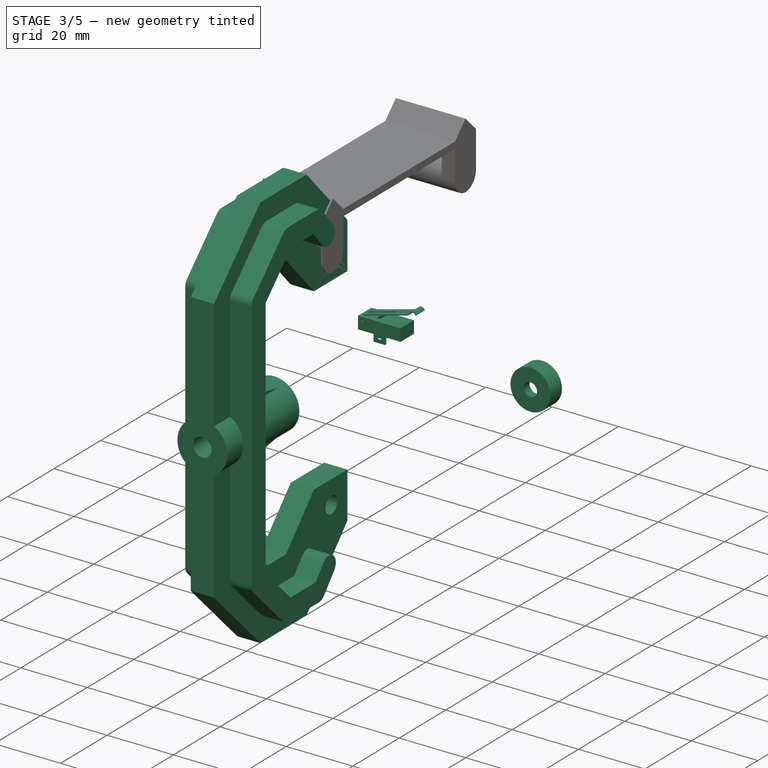
[diagram: stage 3 of 5 — iso view after this stage's code; geometry added in this stage tinted green]
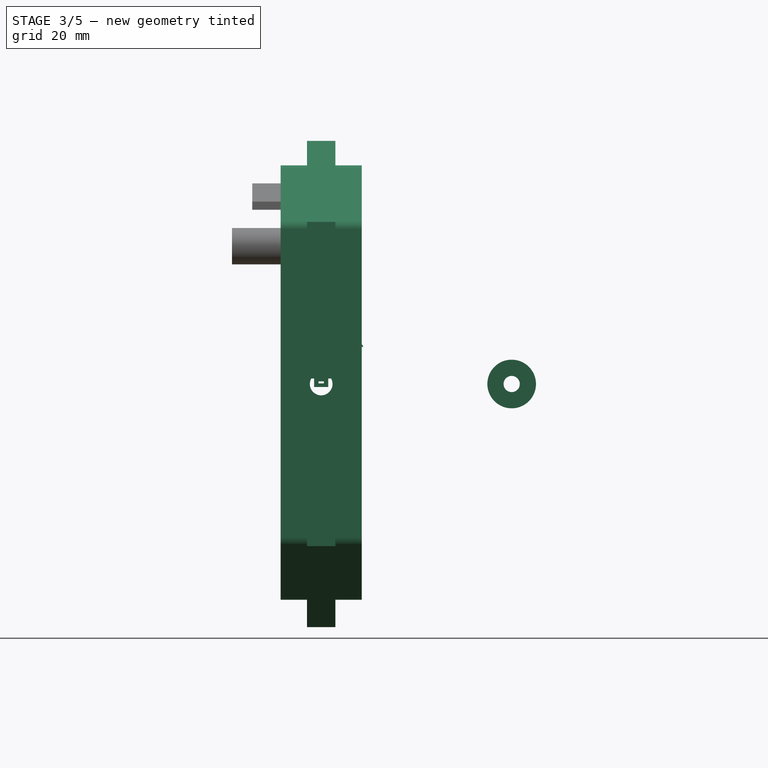
[diagram: stage 3 of 5 — front view after this stage's code; geometry added in this stage tinted green]
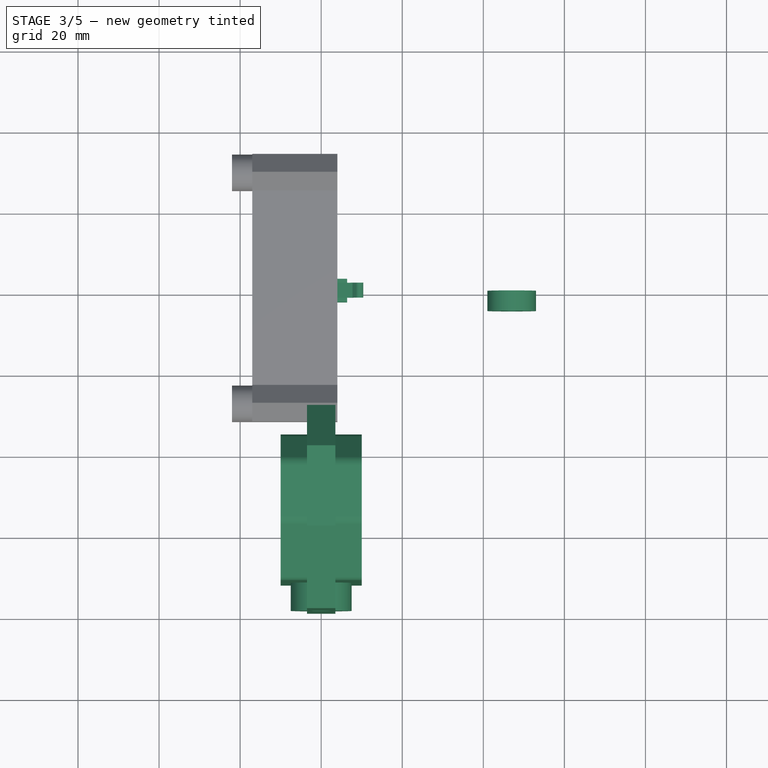
[diagram: stage 3 of 5 — top view after this stage's code; geometry added in this stage tinted green]
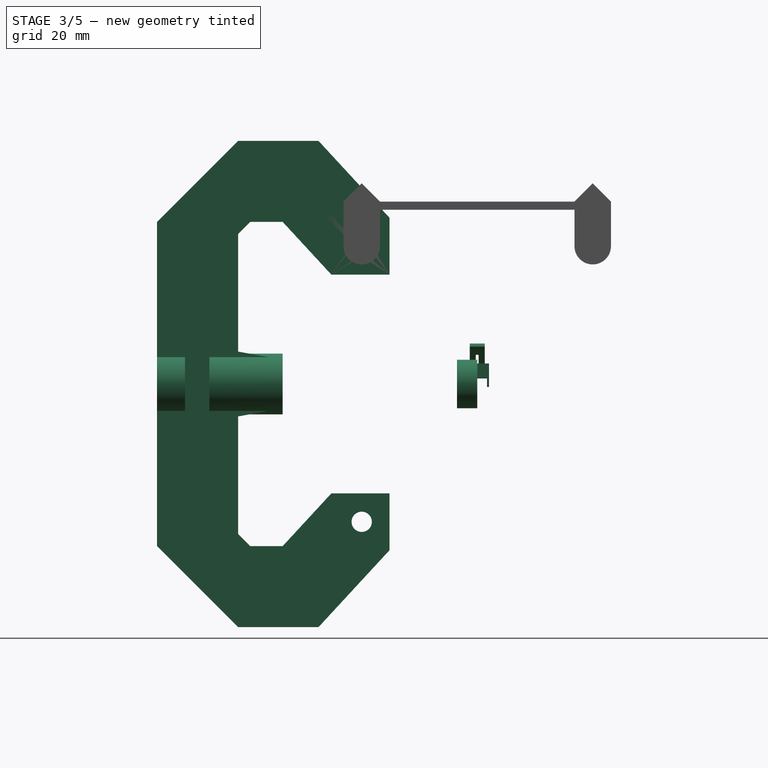
[diagram: stage 3 of 5 — right view after this stage's code; geometry added in this stage tinted green]
FEATURE [PartDesign::Body] Body014  label="reductr-motr"
  AllowCompound = false
  Group = -> [Sketch021,Pad020,Pad021,Fillet015,Fillet016]
  Origin = -> Origin025
  Placement = pos=(47,23,0) rot=(0,0,1;0rad)
  Tip = -> Fillet016
FEATURE [Sketcher::SketchObject] Sketch022
  ArcFitTolerance = 0
  AttachmentSupport = -> [XZ_Plane001]
  FullyConstrained = true
  MakeInternals = false
  MapMode = 5
  Placement = pos=(0,0,0) rot=(1,0,0;1.5708rad)
  sketch-geometry (24):
    g0: LineSegment StartX=-6.4 StartY=-1.15 StartZ=0 EndX=-4.3 EndY=-1.15 EndZ=0
    g1: LineSegment StartX=-4.3 StartY=-1.15 StartZ=0 EndX=-3.95 EndY=-1.5 EndZ=0
    g2: LineSegment StartX=-3.95 StartY=-1.5 StartZ=0 EndX=-1.95 EndY=-1.5 EndZ=0
    g3: LineSegment StartX=-1.95 StartY=-1.5 StartZ=0 EndX=-1.6 EndY=-1.15 EndZ=0
    g4: LineSegment StartX=-1.6 StartY=-1.15 StartZ=0 EndX=1.6 EndY=-1.15 EndZ=0
    g5: LineSegment StartX=1.6 StartY=-1.15 StartZ=0 EndX=1.95 EndY=-1.5 EndZ=0
    g6: LineSegment StartX=1.95 StartY=-1.5 StartZ=0 EndX=3.95 EndY=-1.5 EndZ=0
    g7: LineSegment StartX=3.95 StartY=-1.5 StartZ=0 EndX=4.3 EndY=-1.15 EndZ=0
    g8: LineSegment StartX=4.3 StartY=-1.15 StartZ=0 EndX=6.4 EndY=-1.15 EndZ=0
    g9: LineSegment StartX=6.4 StartY=-1.15 StartZ=0 EndX=6.4 EndY=1.35 EndZ=0
    g10: LineSegment StartX=6.4 StartY=1.35 StartZ=0 EndX=5.8 EndY=1.35 EndZ=0
    g11: LineSegment StartX=5.8 StartY=1.35 StartZ=0 EndX=5.8 EndY=2.2 EndZ=0
    g12: LineSegment StartX=5.8 StartY=2.2 StartZ=0 EndX=4.65 EndY=2.2 EndZ=0
    g13: LineSegment StartX=4.65 StartY=2.2 StartZ=0 EndX=4.65 EndY=1.7 EndZ=0
    g14: LineSegment StartX=4.65 StartY=1.7 StartZ=0 EndX=1.6 EndY=1.7 EndZ=0
    g15: LineSegment StartX=1.6 StartY=1.7 StartZ=0 EndX=1.25 EndY=1.35 EndZ=0
    g16: LineSegment StartX=1.25 StartY=1.35 StartZ=0 EndX=-1.25 EndY=1.35 EndZ=0
    g17: LineSegment StartX=-1.25 StartY=1.35 StartZ=0 EndX=-1.6 EndY=1.7 EndZ=0
    g18: LineSegment StartX=-1.6 StartY=1.7 StartZ=0 EndX=-5.8 EndY=1.7 EndZ=0
    g19: LineSegment StartX=-5.8 StartY=1.7 StartZ=0 EndX=-5.8 EndY=1.35 EndZ=0
    g20: LineSegment StartX=-5.8 StartY=1.35 StartZ=0 EndX=-6.4 EndY=1.35 EndZ=0
    g21: LineSegment StartX=-6.4 StartY=1.35 StartZ=0 EndX=-6.4 EndY=-1.15 EndZ=0
    g22: Circle CenterX=-3.25 CenterY=0 CenterZ=0 NormalX=0 NormalY=0 NormalZ=1 AngleXU=0 Radius=1
    g23: Circle CenterX=3.25 CenterY=0 CenterZ=0 NormalX=0 NormalY=0 NormalZ=1 AngleXU=0 Radius=1
  constraints (73):
    c: Horizontal(g0)
    c: Coincident(g0,g1)
    c: Coincident(g1,g2)
    c: Horizontal(g2)
    c: Coincident(g2,g3)
    c: Coincident(g3,g4)
    c: Horizontal(g4)
    c: Coincident(g4,g5)
    c: Coincident(g5,g6)
    c: Horizontal(g6)
    c: Coincident(g6,g7)
    c: Coincident(g7,g8)
    c: Horizontal(g8)
    c: Coincident(g8,g9)
    c: Coincident(g9,g10)
    c: Horizontal(g10)
    c: Coincident(g10,g11)
    c: Vertical(g11)
    c: Coincident(g11,g12)
    c: Coincident(g12,g13)
    c: Vertical(g13)
    c: Coincident(g13,g14)
    c: Horizontal(g14)
    c: Coincident(g14,g15)
    c: Coincident(g15,g16)
    c: Coincident(g16,g17)
    c: Coincident(g17,g18)
    c: Coincident(g18,g19)
    c: Vertical(g19)
    c: Coincident(g19,g20)
    c: Horizontal(g20)
    c: Coincident(g20,g21)
    c: Coincident(g21,g0)
    c: Vertical(g21)
    c: Vertical(g9)
    c: Horizontal(g18)
    c: Horizontal(g14,g17)
    c: Horizontal(g2,g5)
    c: Diameter(g22) = 2
    c: Horizontal(g16)
    c: DistanceX(g20,g9) = 12.8
    c: Horizontal(g12)
    c: Equal(g23,g22)
    c: Horizontal(g0,g3)
    c: Horizontal(g3,g7)
    c: Equal(g6,g2)
    c: DistanceY(g6,g7) = 0.35
    c: DistanceY(g9,g9) = 2.5
    c: DistanceY(g11,g11) = 0.85
    c: DistanceX(g22,g23) = 6.5
    c: DistanceX(g-1,g23) = 3.25
    c: DistanceX(g20,g20) = 0.6
    c: DistanceX(g12,g12) = 1.15
    c: Angle(g2,g1) = 2.35619
    c: Perpendicular(g3,g1)
    c: Parallel(g1,g5)
    c: Perpendicular(g7,g5)
    c: DistanceY(g13,g13) = 0.5
    c: DistanceY(g15,g14) = 0.35
    c: Parallel(g1,g17)
    c: Perpendicular(g17,g15)
    c: Horizontal(g22,g23)
    c: DistanceX(g2,g2) = 2
    c: DistanceX(g0,g-1) = 6.4
    c: PointOnObject(g22,g-1)
    c: DistanceY(g6,g23) = 1.5
    c: Equal(g0,g8)
    c: DistanceX(g4,g4) = 3.2
    c: DistanceX(g10,g10) = 0.6
    c: Equal(g9,g21)
    c: DistanceX(g18,g18) = 4.2
    c: DistanceX(g16,g16) = 2.5
    c: DistanceY(g-1,g11) = 2.2
FEATURE [PartDesign::Pad] Pad022
  Direction = (0,-1,2e-16)
  Length = 5.8
  Length2 = 100
  Midplane = true
  Placement = pos=(0,0,0) rot=(1,0,0;1.5708rad)
  Profile = -> Sketch022
  ReferenceAxis = -> Sketch022 [N_Axis]
  Suppressed = false
  Type = 0
FEATURE [PartDesign::Body] Body017  label="Pin_C"
  AllowCompound = false
  Group = -> [Sketch025,Pad023,ShapeBinder001,ShapeBinder002]
  Origin = -> Origin029
  Tip = -> Pad023
FEATURE [Sketcher::SketchObject] Sketch026  label="Sketch004"
  ArcFitTolerance = 0
  AttachmentSupport = -> [Pad022]
  ExternalGeometry = -> [Pad022]
  FullyConstrained = true
  MakeInternals = false
  MapMode = 5
  Placement = pos=(0,-2.9,0) rot=(1,0,0;1.5708rad)
  sketch-geometry (14):
    g0: LineSegment StartX=1.75 StartY=1.35 StartZ=0 EndX=1.75 EndY=-0.75 EndZ=0
    g1: LineSegment StartX=1.75 StartY=-0.75 StartZ=0 EndX=-1.75 EndY=-0.75 EndZ=0
    g2: LineSegment StartX=-1.75 StartY=-0.75 StartZ=0 EndX=-1.75 EndY=1.35 EndZ=0
    g3: LineSegment StartX=-0.65 StartY=0.65 StartZ=0 EndX=0.65 EndY=0.65 EndZ=0
    g4: LineSegment StartX=0.65 StartY=0.65 StartZ=0 EndX=0.65 EndY=0.15 EndZ=0
    g5: LineSegment StartX=0.65 StartY=0.15 StartZ=0 EndX=-0.65 EndY=0.15 EndZ=0
    g6: LineSegment StartX=-0.65 StartY=0.15 StartZ=0 EndX=-0.65 EndY=0.65 EndZ=0
    g7: Circle CenterX=-5.3 CenterY=-2e-16 CenterZ=0 NormalX=0 NormalY=0 NormalZ=1 AngleXU=0 Radius=0.7
    g8: Circle CenterX=5.1 CenterY=-2e-16 CenterZ=0 NormalX=0 NormalY=0 NormalZ=1 AngleXU=0 Radius=0.5
    g9: LineSegment StartX=1.75 StartY=1.35 StartZ=0 EndX=6.4 EndY=1.35 EndZ=0
    g10: LineSegment StartX=6.4 StartY=1.35 StartZ=0 EndX=6.4 EndY=2.2 EndZ=0
    g11: LineSegment StartX=6.4 StartY=2.2 StartZ=0 EndX=-6.4 EndY=2.2 EndZ=0
    g12: LineSegment StartX=-6.4 StartY=2.2 StartZ=0 EndX=-6.4 EndY=1.35 EndZ=0
    g13: LineSegment StartX=-6.4 StartY=1.35 StartZ=0 EndX=-1.75 EndY=1.35 EndZ=0
  constraints (40):
    c: Coincident(g0,g1)
    c: Coincident(g1,g2)
    c: Horizontal(g1)
    c: Vertical(g0)
    c: Vertical(g2)
    c: Coincident(g3,g4)
    c: Coincident(g4,g5)
    c: Coincident(g5,g6)
    c: Coincident(g6,g3)
    c: Horizontal(g3)
    c: Horizontal(g5)
    c: Vertical(g4)
    c: Vertical(g6)
    c: DistanceX(g3,g3) = 1.3
    c: DistanceY(g4,g4) = 0.5
    c: DistanceX(g1,g1) = 3.5
    c: DistanceY(g-5,g1) = 0.4
    c: Coincident(g9,g0)
    c: Horizontal(g9)
    c: Coincident(g9,g10)
    c: Vertical(g10)
    c: Coincident(g10,g11)
    c: Horizontal(g11)
    c: Coincident(g11,g12)
    c: Vertical(g12)
    c: Coincident(g12,g13)
    c: Coincident(g13,g2)
    c: Horizontal(g13)
    c: DistanceY(g1,g5) = 0.9
    c: DistanceX(g5,g-1) = 0.65
    c: DistanceX(g-1,g0) = 1.75
    c: Horizontal(g7,g-3)
    c: Horizontal(g8,g-4)
    c: Diameter(g8) = 1
    c: Diameter(g7) = 1.4
    c: DistanceX(g8,g-8) = 1.3
    c: DistanceX(g-7,g7) = 1.1
    c: Horizontal(g10,g-9)
    c: Coincident(g12,g-7)
    c: Coincident(g9,g-8)
FEATURE [PartDesign::Pocket] Pocket009
  BaseFeature = -> Pad022
  Direction = (0,1,-2e-16)
  Length = 0.6
  Length2 = 100
  Placement = pos=(0,0,0) rot=(1,0,0;1.5708rad)
  Profile = -> Sketch026
  ReferenceAxis = -> Sketch026 [N_Axis]
  Suppressed = false
  Type = 0
FEATURE [Sketcher::SketchObject] Sketch027
  ArcFitTolerance = 0
  AttachmentSupport = -> [Pocket009]
  ExternalGeometry = -> [Pocket009]
  FullyConstrained = true
  MakeInternals = false
  MapMode = 5
  Placement = pos=(0,2.9,0) rot=(-1,0,0;1.5708rad)
  sketch-geometry (14):
    g0: LineSegment StartX=-0.65 StartY=-0.15 StartZ=0 EndX=0.65 EndY=-0.15 EndZ=0
    g1: LineSegment StartX=0.65 StartY=-0.15 StartZ=0 EndX=0.65 EndY=-0.65 EndZ=0
    g2: LineSegment StartX=0.65 StartY=-0.65 StartZ=0 EndX=-0.65 EndY=-0.65 EndZ=0
    g3: LineSegment StartX=-0.65 StartY=-0.65 StartZ=0 EndX=-0.65 EndY=-0.15 EndZ=0
    g4: Circle CenterX=5.3 CenterY=0 CenterZ=0 NormalX=0 NormalY=0 NormalZ=1 AngleXU=0 Radius=0.7
    g5: Circle CenterX=-5.3 CenterY=0 CenterZ=0 NormalX=0 NormalY=0 NormalZ=1 AngleXU=0 Radius=0.7
    g6: LineSegment StartX=1.75 StartY=0.75 StartZ=0 EndX=-1.75 EndY=0.75 EndZ=0
    g7: LineSegment StartX=-1.75 StartY=0.75 StartZ=0 EndX=-1.75 EndY=-1.35 EndZ=0
    g8: LineSegment StartX=-1.75 StartY=-1.35 StartZ=0 EndX=-6.4 EndY=-1.35 EndZ=0
    g9: LineSegment StartX=-6.4 StartY=-1.35 StartZ=0 EndX=-6.4 EndY=-2.2 EndZ=0
    g10: LineSegment StartX=-6.4 StartY=-2.2 StartZ=0 EndX=6.4 EndY=-2.2 EndZ=0
    g11: LineSegment StartX=6.4 StartY=-2.2 StartZ=0 EndX=6.4 EndY=-1.35 EndZ=0
    g12: LineSegment StartX=6.4 StartY=-1.35 StartZ=0 EndX=1.75 EndY=-1.35 EndZ=0
    g13: LineSegment StartX=1.75 StartY=-1.35 StartZ=0 EndX=1.75 EndY=0.75 EndZ=0
  constraints (40):
    c: Coincident(g0,g1)
    c: Coincident(g1,g2)
    c: Coincident(g2,g3)
    c: Coincident(g3,g0)
    c: Horizontal(g0)
    c: Horizontal(g2)
    c: Vertical(g1)
    c: Vertical(g3)
    c: PointOnObject(g4,g-1)
    c: PointOnObject(g5,g-1)
    c: Equal(g5,g4)
    c: Diameter(g4) = 1.4
    c: DistanceX(g4,g-3) = 1.1
    c: DistanceX(g-4,g5) = 1.1
    c: Horizontal(g6)
    c: Coincident(g6,g7)
    c: Vertical(g7)
    c: Coincident(g7,g8)
    c: Horizontal(g8)
    c: Coincident(g8,g9)
    c: Vertical(g9)
    c: Coincident(g9,g10)
    c: Horizontal(g10)
    c: Coincident(g10,g11)
    c: Vertical(g11)
    c: Coincident(g11,g12)
    c: Horizontal(g12)
    c: Coincident(g12,g13)
    c: Coincident(g13,g6)
    c: DistanceX(g0,g0) = 1.3
    c: DistanceX(g-1,g0) = 0.65
    c: DistanceY(g1,g1) = 0.5
    c: DistanceY(g0,g6) = 0.9
    c: DistanceY(g6,g-5) = 0.4
    c: Vertical(g13)
    c: DistanceX(g6,g6) = 3.5
    c: DistanceX(g6,g-1) = 1.75
    c: Coincident(g11,g-3)
    c: Coincident(g-6,g8)
    c: Horizontal(g10,g-7)
FEATURE [PartDesign::Pocket] Pocket010  label="Pocket001"
  BaseFeature = -> Pocket009
  Direction = (0,-1,-2e-16)
  Length = 0.6
  Length2 = 100
  Placement = pos=(0,0,0) rot=(1,0,0;1.5708rad)
  Profile = -> Sketch027
  ReferenceAxis = -> Sketch027 [N_Axis]
  Suppressed = false
  Type = 0
FEATURE [PartDesign::Body] Body015  label="Bottom"
  AllowCompound = false
  Group = -> [Sketch022,Pad022,Sketch026,Pocket009,Sketch027,Pocket010]
  Origin = -> Origin001
  Tip = -> Pocket010
FEATURE [PartDesign::ShapeBinder] ShapeBinder003
  Support = -> [Pocket010]
  TraceSupport = false
FEATURE [Sketcher::SketchObject] Sketch028
  ArcFitTolerance = 0
  AttachmentSupport = -> [XZ_Plane019]
  ExternalGeometry = -> [ShapeBinder003]
  FullyConstrained = true
  MakeInternals = false
  MapMode = 5
  Placement = pos=(0,0,0) rot=(1,0,0;1.5708rad)
  sketch-geometry (12):
    g0: LineSegment StartX=0.65 StartY=0.15 StartZ=0 EndX=-0.65 EndY=0.15 EndZ=0
    g1: LineSegment StartX=-0.65 StartY=0.15 StartZ=0 EndX=-0.65 EndY=0.65 EndZ=0
    g2: LineSegment StartX=-0.65 StartY=0.65 StartZ=0 EndX=0.65 EndY=0.65 EndZ=0
    g3: LineSegment StartX=0.65 StartY=0.65 StartZ=0 EndX=0.65 EndY=0.15 EndZ=0
    g4: LineSegment StartX=6.4 StartY=1.35 StartZ=0 EndX=6.4 EndY=5.05 EndZ=0
    g5: LineSegment StartX=6.4 StartY=5.05 StartZ=0 EndX=-6.4 EndY=5.05 EndZ=0
    g6: LineSegment StartX=-6.4 StartY=5.05 StartZ=0 EndX=-6.4 EndY=1.35 EndZ=0
    g7: LineSegment StartX=-6.4 StartY=1.35 StartZ=0 EndX=-1.75 EndY=1.35 EndZ=0
    g8: LineSegment StartX=-1.75 StartY=1.35 StartZ=0 EndX=-1.75 EndY=-0.75 EndZ=0
    g9: LineSegment StartX=-1.75 StartY=-0.75 StartZ=0 EndX=1.75 EndY=-0.75 EndZ=0
    g10: LineSegment StartX=1.75 StartY=-0.75 StartZ=0 EndX=1.75 EndY=1.35 EndZ=0
    g11: LineSegment StartX=1.75 StartY=1.35 StartZ=0 EndX=6.4 EndY=1.35 EndZ=0
  constraints (31):
    c: Coincident(g0,g1)
    c: Coincident(g1,g2)
    c: Coincident(g2,g3)
    c: Coincident(g3,g0)
    c: Horizontal(g0)
    c: Horizontal(g2)
    c: Vertical(g1)
    c: Vertical(g3)
    c: Coincident(g0,g-5)
    c: Coincident(g1,g-4)
    c: Vertical(g4)
    c: Coincident(g4,g5)
    c: Horizontal(g5)
    c: Coincident(g5,g6)
    c: Vertical(g6)
    c: DistanceY(g4,g4) = 3.7
    c: DistanceY(g-1,g5) = 5.05
    c: Coincident(g4,g-8)
    c: Coincident(g6,g-7)
    c: Coincident(g6,g7)
    c: Horizontal(g7)
    c: Coincident(g7,g8)
    c: Coincident(g8,g-6)
    c: Coincident(g8,g9)
    c: Coincident(g9,g-6)
    c: Coincident(g9,g10)
    c: Vertical(g10)
    c: Coincident(g10,g11)
    c: Coincident(g11,g4)
    c: Horizontal(g11)
    c: Vertical(g8)
FEATURE [PartDesign::Pad] Pad004
  Direction = (0,-1,2e-16)
  Length = 5.8
  Length2 = 100
  Midplane = true
  Placement = pos=(0,0,0) rot=(1,0,0;1.5708rad)
  Profile = -> Sketch028
  ReferenceAxis = -> Sketch028 [N_Axis]
  Suppressed = false
  Type = 0
FEATURE [PartDesign::ShapeBinder] ShapeBinder004
  Placement = pos=(0,0,0) rot=(1,0,0;1.5708rad)
  TraceSupport = false
FEATURE [PartDesign::Body] Body019  label="Button"
  AllowCompound = false
  Group = -> [Sketch029,Pad024,Sketch030,Pocket011,ShapeBinder004]
  Origin = -> Origin031
  Tip = -> Pocket011
FEATURE [Sketcher::SketchObject] Sketch031
  ArcFitTolerance = 0
  AttachmentSupport = -> [XZ_Plane021]
  FullyConstrained = false
  MakeInternals = false
  MapMode = 5
  Placement = pos=(0,0,0) rot=(1,0,0;1.5708rad)
  sketch-geometry (11):
    g0: LineSegment StartX=-5.3 StartY=5.3 StartZ=0 EndX=-5.3 EndY=3.85 EndZ=0
    g1: LineSegment StartX=-5.3 StartY=3.85 StartZ=0 EndX=-5 EndY=3.85 EndZ=0
    g2: LineSegment StartX=-5 StartY=3.85 StartZ=0 EndX=-5 EndY=5.0698 EndZ=0
    g3: LineSegment StartX=-5 StartY=5.0698 StartZ=0 EndX=7.89529 EndY=8.52508 EndZ=0
    g4: LineSegment StartX=-5.3 StartY=5.3 StartZ=0 EndX=7.74 EndY=8.79406 EndZ=0
    g5: ArcOfCircle CenterX=9.36634 CenterY=8.93548 CenterZ=0 NormalX=0 NormalY=0 NormalZ=1 AngleXU=0 Radius=0.75 StartAngle=0.2409 EndAngle=2.35619
    g6: ArcOfCircle CenterX=9.36634 CenterY=8.93548 CenterZ=0 NormalX=0 NormalY=0 NormalZ=1 AngleXU=0 Radius=1.05 StartAngle=0.246872 EndAngle=2.35619
    g7: LineSegment StartX=8.62388 StartY=9.67794 StartZ=0 EndX=7.74 EndY=8.79406 EndZ=0
    g8: LineSegment StartX=8.83601 StartY=9.46581 StartZ=0 EndX=7.89529 EndY=8.52508 EndZ=0
    g9: LineSegment [constr] StartX=7.89529 StartY=8.52508 StartZ=0 EndX=4.10037 EndY=7.50824 EndZ=0
    g10: LineSegment StartX=10.0947 StartY=9.11441 StartZ=0 EndX=10.3845 EndY=9.19207 EndZ=0
  constraints (32):
    c: Vertical(g0)
    c: Coincident(g0,g1)
    c: Coincident(g1,g2)
    c: Vertical(g2)
    c: Coincident(g2,g3)
    c: Coincident(g0,g4)
    c: Horizontal(g1)
    c: Parallel(g4,g3)
    c: Distance(g3,g4) = 0.3
    c: DistanceX(g1,g1) = 0.3
    c: Coincident(g6,g5)
    c: Coincident(g7,g4)
    c: Coincident(g8,g3)
    c: Parallel(g8,g7)
    c: Diameter(g5) = 1.5
    c: Diameter(g6) = 2.1
    c: Coincident(g9,g3)
    c: Parallel(g9,g3)
    c: PointOnObject(g6,g9)
    c: PointOnObject(g5,g9)
    c: Tangent(g6,g7) = -1.5708
    c: Tangent(g5,g8) = -1.5708
    c: Coincident(g10,g5)
    c: Coincident(g10,g6)
    c: Distance(g4) = 13.5
    c: Angle(g2,g3) = 1.8326
    c: DistanceX(g1,g-1) = 5
    c: DistanceY(g-1,g1) = 3.85
    c: DistanceY(g0,g0) = 1.45
    c: Angle(g7,g4) = 2.61799
    c: Distance(g7) = 1.25
    c: DistanceY(g-1,g6) = 9.19207
FEATURE [PartDesign::Pad] Pad025
  Direction = (0,-1,2e-16)
  Length = 3.7
  Length2 = 100
  Midplane = true
  Placement = pos=(0,0,0) rot=(1,0,0;1.5708rad)
  Profile = -> Sketch031
  ReferenceAxis = -> Sketch031 [N_Axis]
  Suppressed = false
  Type = 0
FEATURE [Sketcher::SketchObject] Sketch032
  ArcFitTolerance = 0
  AttachmentSupport = -> [Pad025]
  ExternalGeometry = -> [Pad025]
  FullyConstrained = true
  MakeInternals = false
  MapMode = 5
  Placement = pos=(0,1.7e-15,3.85) rot=(1,0,0;3.14159rad)
  sketch-geometry (4):
    g0: ArcOfCircle CenterX=-5.3 CenterY=0 CenterZ=0 NormalX=0 NormalY=0 NormalZ=1 AngleXU=0 Radius=0.35 StartAngle=1.5708 EndAngle=4.71239
    g1: ArcOfCircle CenterX=2.7 CenterY=0 CenterZ=0 NormalX=0 NormalY=0 NormalZ=1 AngleXU=0 Radius=0.35 StartAngle=4.71239 EndAngle=7.85398
    g2: LineSegment StartX=-5.3 StartY=-0.35 StartZ=0 EndX=2.7 EndY=-0.35 EndZ=0
    g3: LineSegment StartX=2.7 StartY=0.35 StartZ=0 EndX=-5.3 EndY=0.35 EndZ=0
  constraints (10):
    c: Tangent(g0,g2) = -1.5708
    c: Tangent(g2,g1) = -1.5708
    c: Tangent(g1,g3) = -1.5708
    c: Tangent(g3,g0) = -1.5708
    c: Equal(g0,g1)
    c: PointOnObject(g0,g-1)
    c: PointOnObject(g1,g-1)
    c: Diameter(g1) = 0.7
    c: DistanceX(g3,g3) = 8
    c: PointOnObject(g0,g-3)
FEATURE [PartDesign::Pocket] Pocket012
  BaseFeature = -> Pad025
  Direction = (0,0,1)
  Length = 5
  Length2 = 100
  Placement = pos=(0,0,0) rot=(1,0,0;1.5708rad)
  Profile = -> Sketch032
  ReferenceAxis = -> Sketch032 [N_Axis]
  Suppressed = false
  Type = 1
FEATURE [Sketcher::SketchObject] Sketch033
  ArcFitTolerance = 0
  AttachmentSupport = -> [Pocket012]
  ExternalGeometry = -> [Pocket012]
  FullyConstrained = true
  MakeInternals = false
  MapMode = 5
  Placement = pos=(0,-1.85,0) rot=(1,0,0;1.5708rad)
  sketch-geometry (4):
    g0: LineSegment StartX=-5 StartY=3.85 StartZ=0 EndX=-5.3 EndY=3.85 EndZ=0
    g1: LineSegment StartX=-5.3 StartY=3.85 StartZ=0 EndX=-5.3 EndY=4.55 EndZ=0
    g2: LineSegment StartX=-5.3 StartY=4.55 StartZ=0 EndX=-5 EndY=4.55 EndZ=0
    g3: LineSegment StartX=-5 StartY=4.55 StartZ=0 EndX=-5 EndY=3.85 EndZ=0
  constraints (11):
    c: Coincident(g0,g1)
    c: Coincident(g1,g2)
    c: Coincident(g2,g3)
    c: Coincident(g3,g0)
    c: Horizontal(g0)
    c: Horizontal(g2)
    c: Vertical(g1)
    c: Vertical(g3)
    c: Coincident(g0,g-4)
    c: PointOnObject(g1,g-3)
    c: DistanceY(g1,g1) = 0.7
FEATURE [PartDesign::Pad] Pad026
  BaseFeature = -> Pocket012
  Direction = (0,-1,2e-16)
  Length = 0.5
  Length2 = 100
  Placement = pos=(0,0,0) rot=(1,0,0;1.5708rad)
  Profile = -> Sketch033
  ReferenceAxis = -> Sketch033 [N_Axis]
  Suppressed = false
  Type = 0
FEATURE [Sketcher::SketchObject] Sketch034
  ArcFitTolerance = 0
  AttachmentSupport = -> [Pad026]
  ExternalGeometry = -> [Pad026]
  FullyConstrained = true
  MakeInternals = false
  MapMode = 5
  Placement = pos=(0,1.85,0) rot=(-1,0,0;1.5708rad)
  sketch-geometry (4):
    g0: LineSegment StartX=-5 StartY=-3.85 StartZ=0 EndX=-5.3 EndY=-3.85 EndZ=0
    g1: LineSegment StartX=-5.3 StartY=-3.85 StartZ=0 EndX=-5.3 EndY=-4.55 EndZ=0
    g2: LineSegment StartX=-5.3 StartY=-4.55 StartZ=0 EndX=-5 EndY=-4.55 EndZ=0
    g3: LineSegment StartX=-5 StartY=-4.55 StartZ=0 EndX=-5 EndY=-3.85 EndZ=0
  constraints (11):
    c: Coincident(g0,g1)
    c: Coincident(g1,g2)
    c: Coincident(g2,g3)
    c: Coincident(g3,g0)
    c: Horizontal(g0)
    c: Horizontal(g2)
    c: Vertical(g1)
    c: Vertical(g3)
    c: Coincident(g0,g-3)
    c: PointOnObject(g1,g-4)
    c: DistanceY(g1,g1) = 0.7
FEATURE [PartDesign::Pad] Pad027
  BaseFeature = -> Pad026
  Direction = (0,1,2e-16)
  Length = 0.5
  Length2 = 100
  Placement = pos=(0,0,0) rot=(1,0,0;1.5708rad)
  Profile = -> Sketch034
  ReferenceAxis = -> Sketch034 [N_Axis]
  Suppressed = false
  Type = 0
FEATURE [PartDesign::Body] Body020  label="Lever"
  AllowCompound = false
  Group = -> [Sketch031,Pad025,Sketch032,Pocket012,Sketch033,Pad026,Sketch034,Pad027]
  Origin = -> Origin032
  Tip = -> Pad027
FEATURE [Sketcher::SketchObject] Sketch035
  ArcFitTolerance = 0
  AttachmentSupport = -> [Pad004]
  ExternalGeometry = -> [Pad004]
  FullyConstrained = true
  MakeInternals = false
  MapMode = 5
  Placement = pos=(0,-3e-16,-0.75) rot=(1,0,0;3.14159rad)
  sketch-geometry (9):
    g0: LineSegment StartX=-5.9 StartY=2.4 StartZ=0 EndX=-5.9 EndY=-2.4 EndZ=0
    g1: LineSegment StartX=-5.9 StartY=-2.4 StartZ=0 EndX=5.9 EndY=-2.4 EndZ=0
    g2: LineSegment StartX=5.9 StartY=-2.4 StartZ=0 EndX=5.9 EndY=2.4 EndZ=0
    g3: LineSegment StartX=5.9 StartY=2.4 StartZ=0 EndX=-5.9 EndY=2.4 EndZ=0
    g4: GeomPoint [constr] X=0 Y=0 Z=0
    g5: LineSegment [constr] StartX=5.9 StartY=-2.4 StartZ=0 EndX=6.4 EndY=-2.4 EndZ=0
    g6: LineSegment [constr] StartX=6.4 StartY=-2.4 StartZ=0 EndX=6.4 EndY=-2.9 EndZ=0
    g7: LineSegment [constr] StartX=6.4 StartY=-2.9 StartZ=0 EndX=5.9 EndY=-2.9 EndZ=0
    g8: LineSegment [constr] StartX=5.9 StartY=-2.9 StartZ=0 EndX=5.9 EndY=-2.4 EndZ=0
  constraints (22):
    c: Coincident(g0,g1)
    c: Coincident(g1,g2)
    c: Coincident(g2,g3)
    c: Coincident(g3,g0)
    c: Horizontal(g1)
    c: Horizontal(g3)
    c: Vertical(g0)
    c: Vertical(g2)
    c: Symmetric(g1,g0,g4)
    c: Coincident(g4,g-1)
    c: Coincident(g5,g6)
    c: Coincident(g6,g7)
    c: Coincident(g7,g8)
    c: Coincident(g8,g5)
    c: Horizontal(g5)
    c: Horizontal(g7)
    c: Vertical(g6)
    c: Vertical(g8)
    c: Coincident(g5,g1)
    c: Coincident(g6,g-3)
    c: Equal(g5,g6)
    c: DistanceX(g7,g7) = 0.5
FEATURE [PartDesign::Pocket] Pocket013
  BaseFeature = -> Pad004
  Direction = (0,0,1)
  Length = 5.15
  Length2 = 5
  Placement = pos=(0,0,0) rot=(1,0,0;1.5708rad)
  Profile = -> Sketch035
  ReferenceAxis = -> Sketch035 [N_Axis]
  Suppressed = false
  Type = 0
FEATURE [Sketcher::SketchObject] Sketch036
  ArcFitTolerance = 0
  AttachmentSupport = -> [Pocket013]
  FullyConstrained = true
  MakeInternals = false
  MapMode = 5
  Placement = pos=(0,2.2e-15,5.05) rot=(0,0,1;3.14159rad)
  sketch-geometry (5):
    g0: LineSegment StartX=0.8 StartY=-1.325 StartZ=0 EndX=0.8 EndY=1.325 EndZ=0
    g1: LineSegment StartX=0.8 StartY=1.325 StartZ=0 EndX=1.9 EndY=1.325 EndZ=0
    g2: LineSegment StartX=1.9 StartY=1.325 StartZ=0 EndX=1.9 EndY=-1.325 EndZ=0
    g3: LineSegment StartX=1.9 StartY=-1.325 StartZ=0 EndX=0.8 EndY=-1.325 EndZ=0
    g4: GeomPoint [constr] X=1.35 Y=0 Z=0
  constraints (13):
    c: Coincident(g0,g1)
    c: Coincident(g1,g2)
    c: Coincident(g2,g3)
    c: Coincident(g3,g0)
    c: Horizontal(g1)
    c: Horizontal(g3)
    c: Vertical(g0)
    c: Vertical(g2)
    c: Symmetric(g1,g0,g4)
    c: PointOnObject(g4,g-1)
    c: DistanceX(g1,g1) = 1.1
    c: DistanceY(g2,g2) = 2.65
    c: DistanceX(g0) = 0.8
FEATURE [PartDesign::Pocket] Pocket014
  BaseFeature = -> Pocket013
  Direction = (0,0,-1)
  Length = 5
  Length2 = 5
  Placement = pos=(0,0,0) rot=(1,0,0;1.5708rad)
  Profile = -> Sketch036
  ReferenceAxis = -> Sketch036 [N_Axis]
  Suppressed = false
  Type = 2
FEATURE [Sketcher::SketchObject] Sketch037
  ArcFitTolerance = 0
  AttachmentSupport = -> [Pocket014]
  ExternalGeometry = -> [Pocket014]
  FullyConstrained = true
  MakeInternals = false
  MapMode = 5
  Placement = pos=(0,0,4.4) rot=(1,0,0;3.14159rad)
  sketch-geometry (8):
    g0: LineSegment StartX=-2.6 StartY=-2.4 StartZ=0 EndX=-1.9 EndY=-2.4 EndZ=0
    g1: LineSegment StartX=-1.9 StartY=-2.4 StartZ=0 EndX=-1.9 EndY=2.4 EndZ=0
    g2: LineSegment StartX=-1.9 StartY=2.4 StartZ=0 EndX=-2.6 EndY=2.4 EndZ=0
    g3: LineSegment StartX=-2.6 StartY=2.4 StartZ=0 EndX=-2.6 EndY=-2.4 EndZ=0
    g4: LineSegment StartX=-0.8 StartY=2.4 StartZ=0 EndX=-0.1 EndY=2.4 EndZ=0
    g5: LineSegment StartX=-0.1 StartY=2.4 StartZ=0 EndX=-0.1 EndY=-2.4 EndZ=0
    g6: LineSegment StartX=-0.1 StartY=-2.4 StartZ=0 EndX=-0.8 EndY=-2.4 EndZ=0
    g7: LineSegment StartX=-0.8 StartY=-2.4 StartZ=0 EndX=-0.8 EndY=2.4 EndZ=0
  constraints (24):
    c: Coincident(g0,g1)
    c: Coincident(g1,g2)
    c: Coincident(g2,g3)
    c: Coincident(g3,g0)
    c: Horizontal(g0)
    c: Horizontal(g2)
    c: Vertical(g1)
    c: Vertical(g3)
    c: PointOnObject(g0,g-3)
    c: PointOnObject(g1,g-6)
    c: Coincident(g4,g5)
    c: Coincident(g5,g6)
    c: Coincident(g6,g7)
    c: Coincident(g7,g4)
    c: Horizontal(g4)
    c: Horizontal(g6)
    c: Vertical(g5)
    c: Vertical(g7)
    c: PointOnObject(g4,g-6)
    c: PointOnObject(g5,g-3)
    c: Vertical(g-5,g4)
    c: Equal(g4,g2)
    c: Vertical(g1,g-4)
    c: DistanceX(g2,g2) = 0.7
FEATURE [PartDesign::Pad] Pad028
  BaseFeature = -> Pocket014
  Direction = (0,0,-1)
  Length = 0.8
  Length2 = 10
  Placement = pos=(0,0,0) rot=(1,0,0;1.5708rad)
  Profile = -> Sketch037
  ReferenceAxis = -> Sketch037 [N_Axis]
  Suppressed = false
  Type = 0
FEATURE [Sketcher::SketchObject] Sketch038
  ArcFitTolerance = 0
  AttachmentSupport = -> [Pad028]
  ExternalGeometry = -> [Pad028]
  FullyConstrained = true
  MakeInternals = false
  MapMode = 5
  Placement = pos=(0,2.2e-15,5.05) rot=(0,0,1;3.14159rad)
  sketch-geometry (5):
    g0: LineSegment StartX=4.75 StartY=-1.9 StartZ=0 EndX=4.75 EndY=1.9 EndZ=0
    g1: LineSegment StartX=4.75 StartY=1.9 StartZ=0 EndX=5.6 EndY=1.9 EndZ=0
    g2: LineSegment StartX=5.6 StartY=1.9 StartZ=0 EndX=5.6 EndY=-1.9 EndZ=0
    g3: LineSegment StartX=5.6 StartY=-1.9 StartZ=0 EndX=4.75 EndY=-1.9 EndZ=0
    g4: GeomPoint [constr] X=5.175 Y=0 Z=0
  constraints (13):
    c: Coincident(g0,g1)
    c: Coincident(g1,g2)
    c: Coincident(g2,g3)
    c: Coincident(g3,g0)
    c: Horizontal(g1)
    c: Horizontal(g3)
    c: Vertical(g0)
    c: Vertical(g2)
    c: Symmetric(g1,g0,g4)
    c: PointOnObject(g4,g-1)
    c: DistanceX(g1,g-3) = 0.8
    c: DistanceY(g2,g2) = 3.8
    c: DistanceX(g1,g1) = 0.85
FEATURE [PartDesign::Pocket] Pocket015  label="Pocket010"
  BaseFeature = -> Pad028
  Direction = (0,0,-1)
  Length = 5
  Length2 = 5
  Placement = pos=(0,0,0) rot=(1,0,0;1.5708rad)
  Profile = -> Sketch038
  ReferenceAxis = -> Sketch038 [N_Axis]
  Suppressed = false
  Type = 2
FEATURE [Sketcher::SketchObject] Sketch039
  ArcFitTolerance = 0
  AttachmentSupport = -> [Pocket015]
  ExternalGeometry = -> [Pocket015]
  FullyConstrained = true
  MakeInternals = false
  MapMode = 5
  Placement = pos=(0,-2.9,0) rot=(1,0,0;1.5708rad)
  sketch-geometry (4):
    g0: LineSegment StartX=-5.5 StartY=4.55 StartZ=0 EndX=-4.8 EndY=4.55 EndZ=0
    g1: LineSegment StartX=-4.8 StartY=4.55 StartZ=0 EndX=-4.8 EndY=3.85 EndZ=0
    g2: LineSegment StartX=-4.8 StartY=3.85 StartZ=0 EndX=-5.5 EndY=3.85 EndZ=0
    g3: LineSegment StartX=-5.5 StartY=3.85 StartZ=0 EndX=-5.5 EndY=4.55 EndZ=0
  constraints (12):
    c: Coincident(g0,g1)
    c: Coincident(g1,g2)
    c: Coincident(g2,g3)
    c: Coincident(g3,g0)
    c: Horizontal(g0)
    c: Horizontal(g2)
    c: Vertical(g1)
    c: Vertical(g3)
    c: Equal(g1,g0)
    c: DistanceX(g2,g2) = 0.7
    c: DistanceY(g0,g-3) = 0.5
    c: DistanceX(g-3,g0) = 0.9
FEATURE [PartDesign::Pocket] Pocket016
  BaseFeature = -> Pocket015
  Direction = (0,1,-2e-16)
  Length = 5
  Length2 = 5
  Placement = pos=(0,0,0) rot=(1,0,0;1.5708rad)
  Profile = -> Sketch039
  ReferenceAxis = -> Sketch039 [N_Axis]
  Suppressed = false
  Type = 1
FEATURE [PartDesign::Body] Body028  label="endstop-case"
  AllowCompound = true
  Group = -> [DatumPlane,Binder010,Binder011,Sketch058,Sketch059,Pad039,Pad040,Draft,Draft001,Draft002,Sketch060,Pocket025,Chamfer001,Mirrored002]
  Origin = -> Origin041
  Tip = -> Mirrored002
FEATURE [PartDesign::SubShapeBinder] Binder012  label="Gear"
  BindCopyOnChange = 0
  BindMode = 0
  ClaimChildren = false
  Context = -> Body030 [Binder012.]
  Fuse = false
  MakeFace = true
  OffsetFill = false
  OffsetIntersection = false
  OffsetJoinType = 0
  OffsetOpenResult = false
  PartialLoad = false
  Refine = true
  Relative = true
  Support = -> [Group003]
  _Version = 2
FEATURE [PartDesign::SubShapeBinder] Binder013
  BindCopyOnChange = 0
  BindMode = 0
  ClaimChildren = false
  Context = -> Body030 [Binder013.]
  Fuse = false
  MakeFace = true
  OffsetFill = false
  OffsetIntersection = false
  OffsetJoinType = 0
  OffsetOpenResult = false
  PartialLoad = false
  Refine = true
  Relative = true
  Support = -> [Body009]
  _Version = 2
FEATURE [PartDesign::SubShapeBinder] Binder014
  BindCopyOnChange = 0
  BindMode = 0
  ClaimChildren = false
  Context = -> Body030 [Binder014.]
  Fuse = false
  MakeFace = true
  OffsetFill = false
  OffsetIntersection = false
  OffsetJoinType = 0
  OffsetOpenResult = false
  PartialLoad = false
  Refine = true
  Relative = true
  Support = -> [Body]
  _Version = 2
FEATURE [PartDesign::SubShapeBinder] Binder015
  BindCopyOnChange = 0
  BindMode = 0
  ClaimChildren = false
  Context = -> Body030 [Binder015.]
  Fuse = false
  MakeFace = true
  OffsetFill = false
  OffsetIntersection = false
  OffsetJoinType = 0
  OffsetOpenResult = false
  PartialLoad = false
  Refine = true
  Relative = true
  Support = -> [Body029]
  _Version = 2
FEATURE [Sketcher::SketchObject] Sketch062
  ArcFitTolerance = 1e-06
  AttachmentSupport = -> [YZ_Plane032]
  ExternalGeometry = -> [Binder013,Binder015,Binder014,Binder012]
  FullyConstrained = true
  MakeInternals = false
  MapMode = 5
  Placement = pos=(0,0,0) rot=(0.57735,0.57735,0.57735;2.0944rad)
  sketch-geometry (24):
    g0: LineSegment StartX=-21.6333 StartY=41 StartZ=0 EndX=-21.6333 EndY=27 EndZ=0
    g1: LineSegment StartX=-21.6333 StartY=27 StartZ=0 EndX=-36 EndY=27 EndZ=0
    g2: LineSegment StartX=-36 StartY=27 StartZ=0 EndX=-48 EndY=40 EndZ=0
    g3: LineSegment StartX=-48 StartY=40 StartZ=0 EndX=-56 EndY=40 EndZ=0
    g4: LineSegment StartX=-56 StartY=40 StartZ=0 EndX=-59 EndY=37 EndZ=0
    g5: LineSegment StartX=-59 StartY=37 StartZ=0 EndX=-59 EndY=8 EndZ=0
    g6: LineSegment StartX=-48 StartY=6 StartZ=0 EndX=-48 EndY=-6 EndZ=0
    g7: LineSegment StartX=-48 StartY=-6 StartZ=0 EndX=-59 EndY=-8 EndZ=0
    g8: LineSegment StartX=-59 StartY=-8 StartZ=0 EndX=-59 EndY=-37 EndZ=0
    g9: LineSegment StartX=-59 StartY=-37 StartZ=0 EndX=-56 EndY=-40 EndZ=0
    g10: LineSegment StartX=-56 StartY=-40 StartZ=0 EndX=-48 EndY=-40 EndZ=0
    g11: LineSegment StartX=-21.6333 StartY=41 StartZ=0 EndX=-39.1718 EndY=60 EndZ=0
    g12: LineSegment StartX=-39.1718 StartY=60 StartZ=0 EndX=-59 EndY=60 EndZ=0
    g13: LineSegment StartX=-59 StartY=60 StartZ=0 EndX=-79 EndY=40 EndZ=0
    g14: LineSegment StartX=-79 StartY=40 StartZ=0 EndX=-79 EndY=-40 EndZ=0
    g15: LineSegment StartX=-79 StartY=-40 StartZ=0 EndX=-59 EndY=-60 EndZ=0
    g16: LineSegment StartX=-59 StartY=-60 StartZ=0 EndX=-39.1718 EndY=-60 EndZ=0
    g17: LineSegment StartX=-39.1718 StartY=-60 StartZ=0 EndX=-21.6333 EndY=-41 EndZ=0
    g18: LineSegment StartX=-48 StartY=-40 StartZ=0 EndX=-36 EndY=-27 EndZ=0
    g19: LineSegment StartX=-36 StartY=-27 StartZ=0 EndX=-21.6333 EndY=-27 EndZ=0
    g20: LineSegment StartX=-21.6333 StartY=-27 StartZ=0 EndX=-21.6333 EndY=-41 EndZ=0
    g21: Circle CenterX=-28.5 CenterY=34 CenterZ=0 NormalX=0 NormalY=0 NormalZ=1 AngleXU=0 Radius=2.5
    g22: Circle CenterX=-28.5 CenterY=-34 CenterZ=0 NormalX=0 NormalY=0 NormalZ=1 AngleXU=0 Radius=2.5
    g23: LineSegment StartX=-59 StartY=8 StartZ=0 EndX=-48 EndY=6 EndZ=0
  constraints (59):
    c: Coincident(g-3,g0)
    c: Coincident(g0,g1)
    c: Coincident(g1,g-7)
    c: Coincident(g1,g2)
    c: Coincident(g2,g3)
    c: Horizontal(g3)
    c: Coincident(g3,g4)
    c: Coincident(g4,g5)
    c: Vertical(g5)
    c: Coincident(g8,g9)
    c: Coincident(g9,g10)
    c: Horizontal(g10)
    c: Coincident(g0,g11)
    c: Coincident(g11,g12)
    c: Horizontal(g12)
    c: Coincident(g12,g13)
    c: Coincident(g13,g14)
    c: Coincident(g14,g15)
    c: Coincident(g15,g16)
    c: Coincident(g16,g17)
    c: Coincident(g18,g10)
    c: Coincident(g18,g-8)
    c: Coincident(g18,g19)
    c: Coincident(g19,g-8)
    c: Coincident(g19,g20)
    c: Coincident(g20,g17)
    c: Coincident(g21,g-9)
    c: Equal(g21,g-9)
    c: Coincident(g22,g-10)
    c: Equal(g22,g-10)
    c: Coincident(g-4,g17)
    c: Vertical(g-13,g3)
    c: Vertical(g2,g-11)
    c: Vertical(g2,g10)
    c: Distance(g-11,g3) = 3
    c: Distance(g4,g-13) = 3
    c: DistanceY(g5,g-15) = 2
    c: Horizontal(g-13,g4)
    c: Angle(g1,g2) = 2.31622  'angle'
    c: Parallel(g11,g2)
    c: Distance(g11,g2) = 20.0526
    c: Distance(g12,g3) = 20
    c: Distance(g5,g14) = 20
    c: Vertical(g12,g4)
    c: Horizontal(g13,g3)
    c: Symmetric(g5,g7,g-1)
    c: Symmetric(g4,g8,g-1)
    c: Coincident(g7,g8)
    c: Symmetric(g3,g9,g-1)
    c: Symmetric(g11,g16,g-1)
    c: Symmetric(g12,g15,g-1)
    c: Symmetric(g13,g14,g-1)
    c: Coincident(g23,g5)
    c: Coincident(g23,g6)
    c: Coincident(g6,g7)
    c: Symmetric(g6,g6,g-1)
    c: Distance(g6,g-1) = 6
    c: Coincident(g-7,g0)
    c: DistanceX(g6,g1) = 12
FEATURE [PartDesign::Pad] Pad042
  Direction = (1,0,0)
  Length = 7
  Length2 = 10
  Midplane = true
  Placement = pos=(0,0,0) rot=(1,1,1;2.0944rad)
  Profile = -> Sketch062
  ReferenceAxis = -> Sketch062 [N_Axis]
  Refine = true
  Suppressed = false
  Type = 0
FEATURE [Sketcher::SketchObject] Sketch063
  ArcFitTolerance = 1e-06
  AttachmentSupport = -> [YZ_Plane032]
  ExternalGeometry = -> [Pad042,Binder013]
  FullyConstrained = false
  MakeInternals = false
  MapMode = 5
  Placement = pos=(0,0,0) rot=(0.57735,0.57735,0.57735;2.0944rad)
  sketch-geometry (29):
    g0: LineSegment [constr] StartX=-39.1877 StartY=45.2416 StartZ=0 EndX=-44.3949 EndY=50.8828 EndZ=0
    g1: LineSegment [constr] StartX=-44.3949 StartY=50.8828 StartZ=0 EndX=-56.4419 EndY=50.8828 EndZ=0
    g2: LineSegment [constr] StartX=-56.4419 StartY=50.8828 StartZ=0 EndX=-69.09 EndY=38.2347 EndZ=0
    g3: LineSegment [constr] StartX=-69.09 StartY=38.2347 StartZ=0 EndX=-69.09 EndY=-37.7759 EndZ=0
    g4: LineSegment [constr] StartX=-69.09 StartY=-37.7759 StartZ=0 EndX=-56.6868 EndY=-50.1791 EndZ=0
    g5: LineSegment [constr] StartX=-56.6868 StartY=-50.1791 StartZ=0 EndX=-43.2709 EndY=-50.1791 EndZ=0
    g6: LineSegment [constr] StartX=-43.2709 StartY=-50.1791 StartZ=0 EndX=-38.6452 EndY=-45.1679 EndZ=0
    g7: ArcOfCircle CenterX=-38.8598 CenterY=-45.1061 CenterZ=0 NormalX=0 NormalY=0 NormalZ=-1 AngleXU=-0.868539 Radius=3 StartAngle=1.5708 EndAngle=4.71239
    g8: LineSegment StartX=-40.9139 StartY=-52.1781 StartZ=0 EndX=-36.5696 EndY=-47.044 EndZ=0
    g9: ArcOfCircle CenterX=-43.204 CenterY=-50.2403 CenterZ=0 NormalX=0 NormalY=0 NormalZ=-1 AngleXU=2.27305 Radius=3 StartAngle=1.5708 EndAngle=2.43934
    g10: LineSegment StartX=-56.6271 StartY=-53.2403 StartZ=0 EndX=-43.204 EndY=-53.2403 EndZ=0
    g11: ArcOfCircle CenterX=-56.6271 CenterY=-50.2403 CenterZ=0 NormalX=0 NormalY=0 NormalZ=-1 AngleXU=-3.14159 Radius=3 StartAngle=1.5708 EndAngle=2.35619
    g12: LineSegment StartX=-71.2123 StartY=-39.8977 StartZ=0 EndX=-58.7485 EndY=-52.3616 EndZ=0
    g13: ArcOfCircle CenterX=-69.091 CenterY=-37.7764 CenterZ=0 NormalX=0 NormalY=0 NormalZ=-1 AngleXU=-2.35619 Radius=3 StartAngle=1.5708 EndAngle=2.35619
    g14: LineSegment StartX=-72.091 StartY=38.2351 StartZ=0 EndX=-72.091 EndY=-37.7764 EndZ=0
    g15: ArcOfCircle CenterX=-69.091 CenterY=38.2351 CenterZ=0 NormalX=0 NormalY=0 NormalZ=-1 AngleXU=-1.5708 Radius=3 StartAngle=1.5708 EndAngle=2.35619
    g16: LineSegment StartX=-58.5074 StartY=53.0614 StartZ=0 EndX=-71.2123 EndY=40.3564 EndZ=0
    g17: ArcOfCircle CenterX=-56.386 CenterY=50.9401 CenterZ=0 NormalX=0 NormalY=0 NormalZ=-1 AngleXU=-0.785398 Radius=3 StartAngle=1.5708 EndAngle=2.35619
    g18: LineSegment StartX=-44.1209 StartY=53.9401 StartZ=0 EndX=-56.386 EndY=53.9401 EndZ=0
    g19: ArcOfCircle CenterX=-44.1209 CenterY=50.9401 CenterZ=0 NormalX=0 NormalY=0 NormalZ=-1 AngleXU=0 Radius=3 StartAngle=1.5708 EndAngle=2.43934
    g20: LineSegment StartX=-36.9601 StartY=47.1217 StartZ=0 EndX=-41.8308 EndY=52.8779 EndZ=0
    g21: ArcOfCircle CenterX=-39.2503 CenterY=45.1839 CenterZ=0 NormalX=0 NormalY=0 NormalZ=-1 AngleXU=0.868539 Radius=3 StartAngle=1.5708 EndAngle=4.71239
    g22: LineSegment StartX=-41.5405 StartY=43.246 StartZ=0 EndX=-45.5123 EndY=47.9401 EndZ=0
    g23: LineSegment StartX=-45.5123 StartY=47.9401 StartZ=0 EndX=-55.1434 EndY=47.9401 EndZ=0
    g24: LineSegment StartX=-55.1434 StartY=47.9401 StartZ=0 EndX=-66.091 EndY=36.9925 EndZ=0
    g25: LineSegment StartX=-66.091 StartY=36.9925 StartZ=0 EndX=-66.091 EndY=-36.5338 EndZ=0
    g26: LineSegment StartX=-66.091 StartY=-36.5338 StartZ=0 EndX=-55.3845 EndY=-47.2403 EndZ=0
    g27: LineSegment StartX=-55.3845 StartY=-47.2403 StartZ=0 EndX=-44.5954 EndY=-47.2403 EndZ=0
    g28: LineSegment StartX=-44.5954 StartY=-47.2403 StartZ=0 EndX=-41.1499 EndY=-43.1683 EndZ=0
  constraints (35):
    c: Coincident(g0,g1)
    c: Horizontal(g1)
    c: Coincident(g1,g2)
    c: Coincident(g2,g3)
    c: Vertical(g3)
    c: Coincident(g3,g4)
    c: Coincident(g4,g5)
    c: Horizontal(g5)
    c: Coincident(g5,g6)
    c: Parallel(g0,g-4)
    c: Parallel(g-16,g2)
    c: Parallel(g4,g-14)
    c: Parallel(g6,g-12)
    c: Tangent(g7,g8) = -1.5708
    c: Tangent(g7,g28) = 1.5708
    c: Tangent(g8,g9) = -1.5708
    c: Tangent(g9,g10) = -1.5708
    c: Tangent(g10,g11) = -1.5708
    c: Tangent(g11,g12) = -1.5708
    c: Tangent(g12,g13) = -1.5708
    c: Tangent(g13,g14) = -1.5708
    c: Tangent(g14,g15) = -1.5708
    c: Tangent(g15,g16) = -1.5708
    c: Tangent(g16,g17) = -1.5708
    c: Tangent(g17,g18) = -1.5708
    c: Tangent(g18,g19) = -1.5708
    c: Tangent(g19,g20) = -1.5708
    c: Tangent(g20,g21) = -1.5708
    c: Tangent(g21,g22) = 1.5708
    c: Coincident(g22,g23)
    c: Coincident(g23,g24)
    c: Coincident(g24,g25)
    c: Coincident(g25,g26)
    c: Coincident(g26,g27)
    c: Coincident(g27,g28)
FEATURE [PartDesign::Pad] Pad043
  BaseFeature = -> Pad042
  Direction = (1,0,0)
  Length = 20
  Length2 = 10
  Midplane = true
  Placement = pos=(0,0,0) rot=(1,1,1;2.0944rad)
  Profile = -> Sketch063
  ReferenceAxis = -> Sketch063 [N_Axis]
  Refine = true
  Suppressed = false
  Type = 0
FEATURE [PartDesign::Body] Body029  label="limit-arm"
  AllowCompound = false
  Group = -> [DatumPlane001,Sketch061,Pad041]
  Origin = -> Origin042
  Tip = -> Pad041
FEATURE [App::DocumentObjectGroup] Group007  label="endstop switches"
  Group = -> [Part,Part001,Body028,Body029]
FEATURE [PartDesign::SubShapeBinder] Binder017
  BindCopyOnChange = 0
  BindMode = 0
  ClaimChildren = false
  Context = -> Body030 [Binder017.]
  Fuse = false
  MakeFace = true
  OffsetFill = false
  OffsetIntersection = false
  OffsetJoinType = 0
  OffsetOpenResult = false
  PartialLoad = false
  Refine = true
  Relative = true
  Support = -> [Body]
  _Version = 2
FEATURE [Sketcher::SketchObject] Sketch064
  ArcFitTolerance = 1e-06
  AttachmentSupport = -> [Pad043]
  ExternalGeometry = -> [Binder012,Binder017]
  FullyConstrained = true
  MakeInternals = false
  MapMode = 5
  Placement = pos=(-1.06e-14,-48,0) rot=(0.57735,0.57735,0.57735;4.18879rad)
  sketch-geometry (2):
    g0: Circle CenterX=0 CenterY=0 CenterZ=0 NormalX=0 NormalY=0 NormalZ=1 AngleXU=0 Radius=2.8
    g1: Circle CenterX=0 CenterY=0 CenterZ=0 NormalX=0 NormalY=0 NormalZ=1 AngleXU=0 Radius=7.5
  constraints (4):
    c: Coincident(g0,g-1)
    c: Distance(g0,g-6) = 0.3
    c: Diameter(g1) = 15
    c: Coincident(g1,g0)
FEATURE [PartDesign::Pad] Pad045
  BaseFeature = -> Pad043
  Direction = (0,1,0)
  Length = 10
  Length2 = 10
  Placement = pos=(0,0,0) rot=(1,1,1;2.0944rad)
  Profile = -> Sketch064
  ReferenceAxis = -> Sketch064 [N_Axis]
  Refine = true
  Reversed = true
  Suppressed = false
  Type = 3
  UpToFace = -> Pad043 [Face9]
FEATURE [PartDesign::Pad] Pad046
  Direction = (0,-1,2e-16)
  Length = 5
  Length2 = 10
  Placement = pos=(0,0,0) rot=(1,0,0;1.5708rad)
  Profile = -> Sketch016 [Edge1,Edge2]
  ReferenceAxis = -> Sketch016 [N_Axis]
  Refine = true
  Suppressed = false
  Type = 0
FEATURE [PartDesign::Pocket] Pocket027
  BaseFeature = -> Pad046
  Direction = (0,1,-2e-16)
  Length = 2.5
  Length2 = 5
  Placement = pos=(0,0,0) rot=(1,0,0;1.5708rad)
  Profile = -> Sketch016 [Edge3]
  ReferenceAxis = -> Sketch016 [N_Axis]
  Refine = true
  Reversed = true
  Suppressed = false
  Type = 0
FEATURE [PartDesign::Body] Body010  label="gear-cap"
  AllowCompound = false
  Group = -> [Sketch016,Binder006,Pad046,Pocket027]
  Origin = -> Origin010
  Placement = pos=(0,-48,0) rot=(0,0,1;0rad)
  Tip = -> Pocket027
FEATURE [App::DocumentObjectGroup] Group005  label="case"
  Group = -> [Body009,Fusion,Body010,Body014]
FEATURE [PartDesign::Pocket] Pocket028
  BaseFeature = -> Pad045
  Direction = (0,-1,0)
  Length = 5
  Length2 = 5
  Placement = pos=(0,0,0) rot=(1,1,1;2.0944rad)
  Profile = -> Sketch064 [Edge1]
  ReferenceAxis = -> Sketch064 [N_Axis]
  Refine = true
  Suppressed = false
  Type = 1
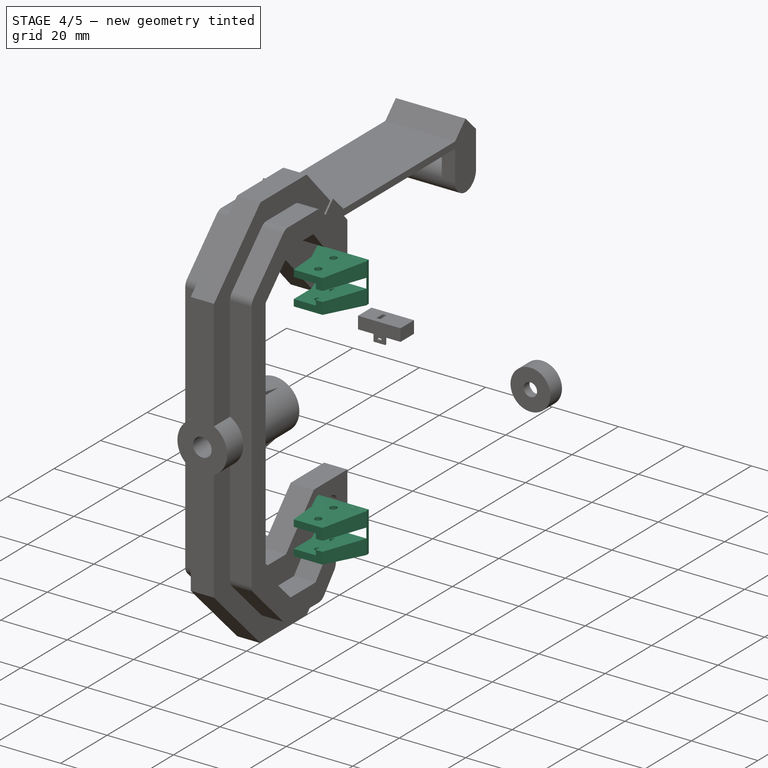
[diagram: stage 4 of 5 — iso view after this stage's code; geometry added in this stage tinted green]
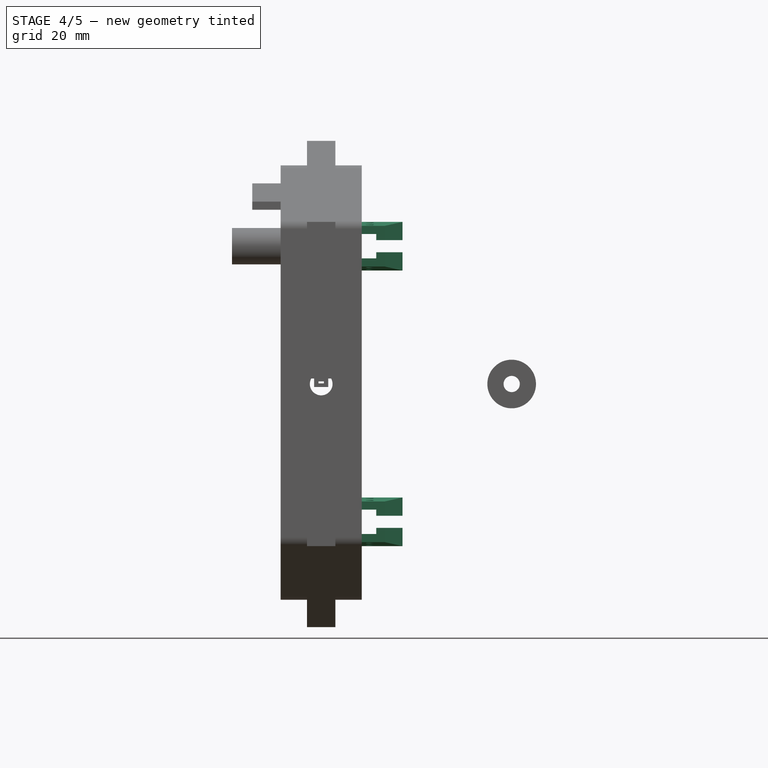
[diagram: stage 4 of 5 — front view after this stage's code; geometry added in this stage tinted green]
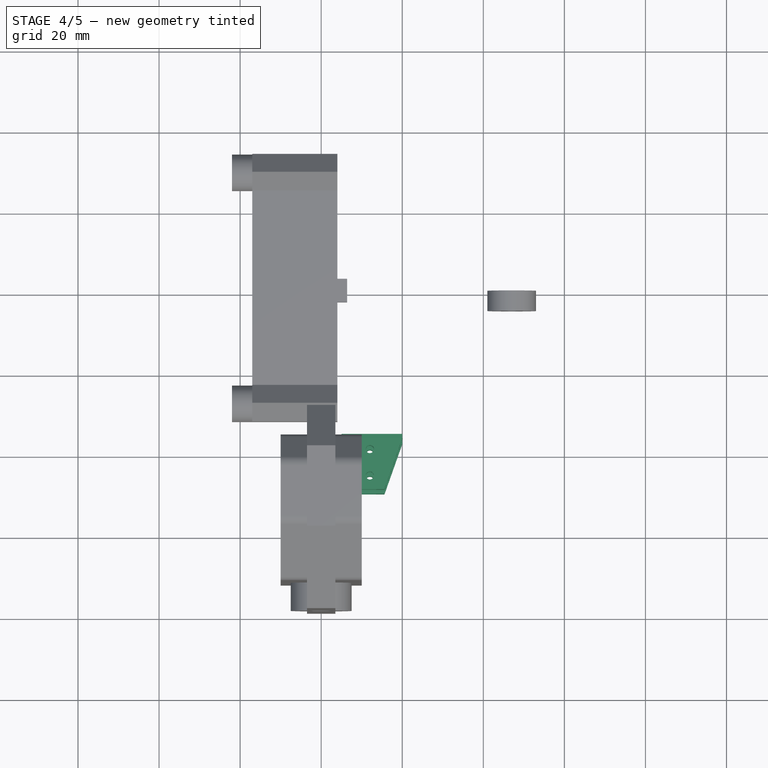
[diagram: stage 4 of 5 — top view after this stage's code; geometry added in this stage tinted green]
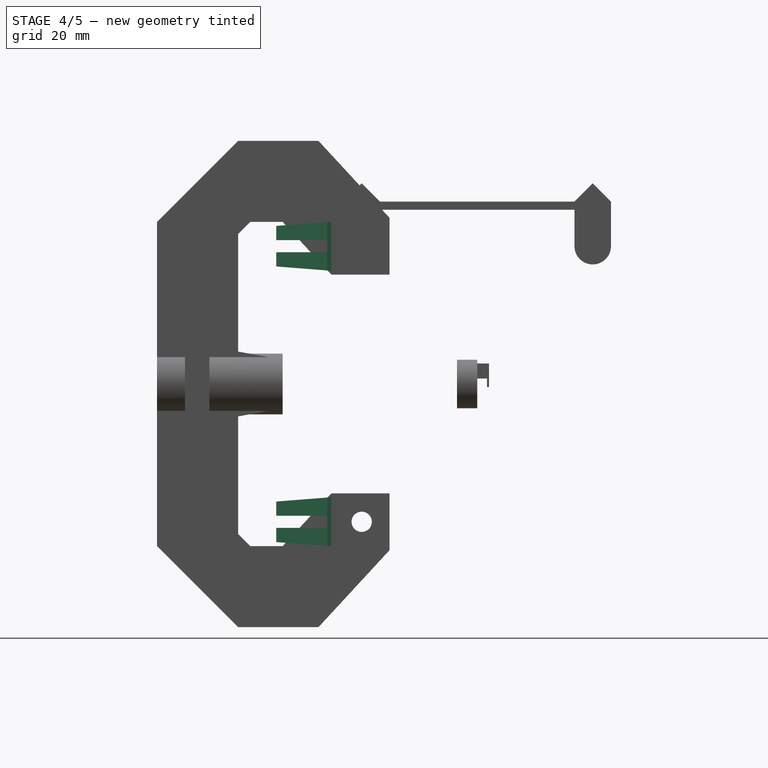
[diagram: stage 4 of 5 — right view after this stage's code; geometry added in this stage tinted green]
FEATURE [Sketcher::SketchObject] Sketch023
  ArcFitTolerance = 0
  AttachmentSupport = -> [XZ_Plane016]
  FullyConstrained = true
  MakeInternals = false
  MapMode = 5
  Placement = pos=(0,0,0) rot=(1,0,0;1.5708rad)
  sketch-geometry (10):
    g0: LineSegment StartX=5.48 StartY=-4.6 StartZ=0 EndX=5.48 EndY=4.6 EndZ=0
    g1: LineSegment StartX=5.48 StartY=4.6 StartZ=0 EndX=2.68 EndY=4.6 EndZ=0
    g2: LineSegment StartX=2.68 StartY=4.6 StartZ=0 EndX=2.68 EndY=3.8 EndZ=0
    g3: LineSegment StartX=2.68 StartY=3.8 StartZ=0 EndX=2.98 EndY=3.8 EndZ=0
    g4: LineSegment StartX=2.98 StartY=3.8 StartZ=0 EndX=2.98 EndY=3.7 EndZ=0
    g5: LineSegment StartX=2.98 StartY=3.7 StartZ=0 EndX=3.48 EndY=3.7 EndZ=0
    g6: LineSegment StartX=3.48 StartY=3.7 StartZ=0 EndX=3.48 EndY=3.8 EndZ=0
    g7: LineSegment StartX=3.48 StartY=3.8 StartZ=0 EndX=4.68 EndY=3.8 EndZ=0
    g8: LineSegment StartX=4.68 StartY=3.8 StartZ=0 EndX=4.68 EndY=-4.6 EndZ=0
    g9: LineSegment StartX=4.68 StartY=-4.6 StartZ=0 EndX=5.48 EndY=-4.6 EndZ=0
  constraints (31):
    c: Vertical(g0)
    c: DistanceY(g0,g0) = 9.2
    c: Coincident(g0,g1)
    c: Horizontal(g1)
    c: Coincident(g1,g2)
    c: Vertical(g2)
    c: Coincident(g2,g3)
    c: Coincident(g3,g4)
    c: Vertical(g4)
    c: Coincident(g4,g5)
    c: Horizontal(g5)
    c: Coincident(g5,g6)
    c: Coincident(g6,g7)
    c: Horizontal(g7)
    c: Coincident(g7,g8)
    c: Vertical(g8)
    c: Coincident(g8,g9)
    c: Coincident(g9,g0)
    c: Horizontal(g9)
    c: DistanceX(g9,g9) = 0.8
    c: Horizontal(g3)
    c: Horizontal(g3,g6)
    c: Vertical(g6)
    c: Equal(g9,g2)
    c: DistanceY(g-1,g0) = 4.6
    c: DistanceX(g1,g1) = 2.8
    c: DistanceX(g3,g3) = 0.3
    c: DistanceX(g7,g7) = 1.2
    c: DistanceY(g6,g6) = 0.1
    c: DistanceX(g-1,g8) = 4.68
    c: DistanceY(g0,g-1) = 4.6
FEATURE [PartDesign::Pad] Pad001
  Direction = (0,-1,2e-16)
  Length = 0.45
  Length2 = 100
  Midplane = true
  Placement = pos=(0,0,0) rot=(1,0,0;1.5708rad)
  Profile = -> Sketch023
  ReferenceAxis = -> Sketch023 [N_Axis]
  Suppressed = false
  Type = 0
FEATURE [PartDesign::Body] Body001  label="Pin_NC"
  AllowCompound = false
  Group = -> [Sketch023,Pad001]
  Origin = -> Origin027
  Tip = -> Pad001
FEATURE [PartDesign::ShapeBinder] ShapeBinder
  Placement = pos=(0,-0.225,0) rot=(0,0,1;0rad)
  Support = -> [Pad001]
  TraceSupport = false
FEATURE [Sketcher::SketchObject] Sketch024
  ArcFitTolerance = 0
  AttachmentSupport = -> [XZ_Plane017]
  ExternalGeometry = -> [ShapeBinder]
  FullyConstrained = true
  MakeInternals = false
  MapMode = 5
  Placement = pos=(0,0,0) rot=(1,0,0;1.5708rad)
  sketch-geometry (12):
    g0: LineSegment StartX=0.4 StartY=-4.6 StartZ=0 EndX=-0.4 EndY=-4.6 EndZ=0
    g1: LineSegment StartX=-0.4 StartY=-4.6 StartZ=0 EndX=-0.4 EndY=0.909572 EndZ=0
    g2: LineSegment StartX=0.4 StartY=0.457892 StartZ=0 EndX=2.84795 EndY=1.20543 EndZ=0
    g3: LineSegment StartX=2.84795 StartY=1.20543 StartZ=0 EndX=3.48 EndY=1.20543 EndZ=0
    g4: LineSegment StartX=3.48 StartY=1.20543 StartZ=0 EndX=3.48 EndY=3.06272 EndZ=0
    g5: LineSegment StartX=3.48 StartY=3.06272 StartZ=0 EndX=2.98 EndY=3.06272 EndZ=0
    g6: LineSegment StartX=2.98 StartY=3.06272 StartZ=0 EndX=2.98 EndY=2.48242 EndZ=0
    g7: LineSegment StartX=2.98 StartY=2.48242 StartZ=0 EndX=2.48712 EndY=2.48242 EndZ=0
    g8: LineSegment StartX=2.48712 StartY=2.48242 StartZ=0 EndX=2.48712 EndY=1.53533 EndZ=0
    g9: LineSegment StartX=2.48712 StartY=1.53533 StartZ=0 EndX=0.437957 EndY=0.909572 EndZ=0
    g10: LineSegment StartX=0.437957 StartY=0.909572 StartZ=0 EndX=-0.4 EndY=0.909572 EndZ=0
    g11: LineSegment StartX=0.4 StartY=-4.6 StartZ=0 EndX=0.4 EndY=0.457892 EndZ=0
  constraints (32):
    c: Coincident(g0,g1)
    c: Horizontal(g0)
    c: Vertical(g1)
    c: Equal(g0,g-5)
    c: DistanceX(g1,g-1) = 0.4
    c: Coincident(g2,g3)
    c: Horizontal(g3)
    c: Coincident(g3,g4)
    c: Vertical(g4)
    c: Coincident(g4,g5)
    c: Coincident(g5,g6)
    c: Vertical(g6)
    c: Coincident(g6,g7)
    c: Coincident(g7,g8)
    c: Vertical(g8)
    c: Coincident(g8,g9)
    c: Coincident(g9,g10)
    c: Coincident(g10,g1)
    c: Horizontal(g7)
    c: Horizontal(g5)
    c: Equal(g5,g-3)
    c: Vertical(g4,g-3)
    c: Parallel(g9,g2)
    c: Horizontal(g10)
    c: Block(g8)
    c: Block(g9)
    c: Block(g2)
    c: Block(g4)
    c: Horizontal(g-5,g0)
    c: Coincident(g11,g0)
    c: Coincident(g11,g2)
    c: Vertical(g11)
FEATURE [PartDesign::Pad] Pad002
  Direction = (0,-1,2e-16)
  Length = 0.45
  Length2 = 100
  Midplane = true
  Placement = pos=(0,0,0) rot=(1,0,0;1.5708rad)
  Profile = -> Sketch024
  ReferenceAxis = -> Sketch024 [N_Axis]
  Suppressed = false
  Type = 0
FEATURE [PartDesign::Body] Body016  label="Pin_NO"
  AllowCompound = false
  Group = -> [Sketch024,Pad002,ShapeBinder]
  Origin = -> Origin028
  Tip = -> Pad002
FEATURE [PartDesign::ShapeBinder] ShapeBinder001
  Placement = pos=(0,-0.225,0) rot=(0,0,1;0rad)
  Support = -> [Pad001]
  TraceSupport = false
FEATURE [PartDesign::ShapeBinder] ShapeBinder002
  Placement = pos=(0,-0.225,0) rot=(0,0,1;0rad)
  Support = -> [Pad002]
  TraceSupport = false
FEATURE [Sketcher::SketchObject] Sketch025
  ArcFitTolerance = 0
  AttachmentSupport = -> [XZ_Plane018]
  ExternalGeometry = -> [ShapeBinder001,ShapeBinder002]
  FullyConstrained = true
  MakeInternals = false
  MapMode = 5
  Placement = pos=(0,0,0) rot=(1,0,0;1.5708rad)
  sketch-geometry (17):
    g0: LineSegment StartX=-5.48 StartY=0.573115 StartZ=0 EndX=-5.48 EndY=-4.6 EndZ=0
    g1: LineSegment StartX=-4.68 StartY=0.531664 StartZ=0 EndX=-4.29703 EndY=1.12608 EndZ=0
    g2: LineSegment StartX=-4.29703 StartY=1.12608 StartZ=0 EndX=-1.12486 EndY=1.12608 EndZ=0
    g3: LineSegment StartX=-1.12486 StartY=1.12608 StartZ=0 EndX=-1.12486 EndY=1.90154 EndZ=0
    g4: LineSegment StartX=-1.12486 StartY=1.90154 StartZ=0 EndX=-0.654846 EndY=1.90154 EndZ=0
    g5: LineSegment StartX=-0.654846 StartY=1.90154 StartZ=0 EndX=-1.19401 EndY=3.7 EndZ=0
    g6: LineSegment StartX=-1.19401 StartY=3.7 StartZ=0 EndX=-1.69401 EndY=3.7 EndZ=0
    g7: LineSegment StartX=-1.69401 StartY=3.7 StartZ=0 EndX=-1.69401 EndY=2.23443 EndZ=0
    g8: LineSegment StartX=-1.69401 StartY=2.23443 StartZ=0 EndX=-4.63708 EndY=2.23443 EndZ=0
    g9: LineSegment StartX=-4.63708 StartY=2.23443 StartZ=0 EndX=-4.63708 EndY=3.7 EndZ=0
    g10: LineSegment StartX=-4.63708 StartY=3.7 StartZ=0 EndX=-5.48708 EndY=3.7 EndZ=0
    g11: LineSegment StartX=-5.48708 StartY=3.7 StartZ=0 EndX=-5.74689 EndY=1.90154 EndZ=0
    g12: LineSegment StartX=-5.74689 StartY=1.90154 StartZ=0 EndX=-5.27688 EndY=1.90154 EndZ=0
    g13: LineSegment StartX=-5.27688 StartY=1.90154 StartZ=0 EndX=-5.27688 EndY=1.09492 EndZ=0
    g14: LineSegment StartX=-5.27688 StartY=1.09492 StartZ=0 EndX=-5.48 EndY=0.573115 EndZ=0
    g15: LineSegment StartX=-5.48 StartY=-4.6 StartZ=0 EndX=-4.68 EndY=-4.6 EndZ=0
    g16: LineSegment StartX=-4.68 StartY=-4.6 StartZ=0 EndX=-4.68 EndY=0.531664 EndZ=0
  constraints (49):
    c: Vertical(g0)
    c: Coincident(g1,g2)
    c: Horizontal(g2)
    c: Coincident(g2,g3)
    c: Vertical(g3)
    c: Coincident(g3,g4)
    c: Horizontal(g4)
    c: Coincident(g4,g5)
    c: Coincident(g5,g6)
    c: Horizontal(g6)
    c: Coincident(g6,g7)
    c: Vertical(g7)
    c: Coincident(g7,g8)
    c: Horizontal(g8)
    c: Coincident(g8,g9)
    c: Vertical(g9)
    c: Coincident(g9,g10)
    c: Horizontal(g10)
    c: Coincident(g10,g11)
    c: Coincident(g11,g12)
    c: Horizontal(g12)
    c: Coincident(g12,g13)
    c: Vertical(g13)
    c: Coincident(g13,g14)
    c: Coincident(g14,g0)
    c: Horizontal(g6,g9)
    c: Horizontal(g5,g-9)
    c: Horizontal(g12,g3)
    c: Equal(g4,g12)
    c: DistanceX(g6,g6) = 0.5
    c: DistanceX(g10,g10) = 0.85
    c: Coincident(g0,g15)
    c: Horizontal(g15)
    c: Coincident(g15,g16)
    c: Coincident(g16,g1)
    c: Vertical(g16)
    c: Horizontal(g15,g-6)
    c: DistanceX(g15,g-6) = 4.28
    c: Equal(g-3,g15)
    c: Block(g8)
    c: Block(g12)
    c: Block(g13)
    c: Block(g14)
    c: Block(g0)
    c: Block(g1)
    c: Block(g2)
    c: Block(g4)
    c: Block(g3)
    c: Block(g5)
FEATURE [PartDesign::Pad] Pad023
  Direction = (0,-1,2e-16)
  Length = 0.45
  Length2 = 100
  Midplane = true
  Placement = pos=(0,0,0) rot=(1,0,0;1.5708rad)
  Profile = -> Sketch025
  ReferenceAxis = -> Sketch025 [N_Axis]
  Suppressed = false
  Type = 0
FEATURE [Sketcher::SketchObject] Sketch029
  ArcFitTolerance = 0
  AttachmentSupport = -> [XZ_Plane020]
  FullyConstrained = false
  MakeInternals = false
  MapMode = 5
  Placement = pos=(0,0,0) rot=(1,0,0;1.5708rad)
  sketch-geometry (4):
    g0: LineSegment StartX=-0.8 StartY=5.3 StartZ=0 EndX=-0.8 EndY=2.5 EndZ=0
    g1: LineSegment StartX=-0.8 StartY=2.5 StartZ=0 EndX=-1.9 EndY=2.5 EndZ=0
    g2: LineSegment StartX=-1.9 StartY=2.5 StartZ=0 EndX=-1.9 EndY=5.3 EndZ=0
    g3: ArcOfCircle CenterX=-1.35 CenterY=5.3 CenterZ=0 NormalX=0 NormalY=0 NormalZ=1 AngleXU=0 Radius=0.55 StartAngle=5e-16 EndAngle=3.14159
  constraints (12):
    c: Coincident(g0,g1)
    c: Coincident(g1,g2)
    c: Horizontal(g1)
    c: Vertical(g0)
    c: Vertical(g2)
    c: DistanceX(g2,g0) = 1.1
    c: DistanceY(g0,g0) = 2.8
    c: DistanceX(g0,g-1) = 0.8
    c: Equal(g2,g0)
    c: Coincident(g3,g0)
    c: Coincident(g3,g2)
    c: Horizontal(g3,g0)
FEATURE [PartDesign::Pad] Pad024
  Direction = (0,-1,2e-16)
  Length = 4.1
  Length2 = 100
  Midplane = true
  Placement = pos=(0,0,0) rot=(1,0,0;1.5708rad)
  Profile = -> Sketch029
  ReferenceAxis = -> Sketch029 [N_Axis]
  Suppressed = false
  Type = 0
FEATURE [Sketcher::SketchObject] Sketch030
  ArcFitTolerance = 0
  AttachmentSupport = -> [Pad024]
  ExternalGeometry = -> [Pad024]
  FullyConstrained = true
  MakeInternals = false
  MapMode = 5
  Placement = pos=(-0.8,0,0) rot=(0.707107,0,0.707107;3.14159rad)
  sketch-geometry (8):
    g0: LineSegment StartX=2.5 StartY=2.05 StartZ=0 EndX=6 EndY=2.05 EndZ=0
    g1: LineSegment StartX=6 StartY=2.05 StartZ=0 EndX=6 EndY=1.325 EndZ=0
    g2: LineSegment StartX=6 StartY=1.325 StartZ=0 EndX=2.5 EndY=1.325 EndZ=0
    g3: LineSegment StartX=2.5 StartY=1.325 StartZ=0 EndX=2.5 EndY=2.05 EndZ=0
    g4: LineSegment StartX=2.5 StartY=-2.05 StartZ=0 EndX=2.5 EndY=-1.325 EndZ=0
    g5: LineSegment StartX=2.5 StartY=-1.325 StartZ=0 EndX=6 EndY=-1.325 EndZ=0
    g6: LineSegment StartX=6 StartY=-1.325 StartZ=0 EndX=6 EndY=-2.05 EndZ=0
    g7: LineSegment StartX=6 StartY=-2.05 StartZ=0 EndX=2.5 EndY=-2.05 EndZ=0
  constraints (23):
    c: Coincident(g0,g1)
    c: Coincident(g1,g2)
    c: Coincident(g2,g3)
    c: Coincident(g3,g0)
    c: Horizontal(g0)
    c: Horizontal(g2)
    c: Vertical(g1)
    c: Vertical(g3)
    c: Coincident(g0,g-5)
    c: Coincident(g4,g5)
    c: Coincident(g5,g6)
    c: Horizontal(g5)
    c: Vertical(g4)
    c: Vertical(g6)
    c: Equal(g1,g6)
    c: DistanceY(g-6,g-6) = 4.1
    c: DistanceY(g5,g1) = 2.65
    c: Vertical(g1,g5)
    c: Coincident(g7,g6)
    c: Coincident(g7,g4)
    c: Horizontal(g7)
    c: Coincident(g-5,g4)
    c: DistanceX(g0,g0) = 3.5
FEATURE [PartDesign::Pocket] Pocket011
  BaseFeature = -> Pad024
  Direction = (-1,0,2e-16)
  Length = 1.7
  Length2 = 100
  Placement = pos=(0,0,0) rot=(1,0,0;1.5708rad)
  Profile = -> Sketch030
  ReferenceAxis = -> Sketch030 [N_Axis]
  Suppressed = false
  Type = 0
FEATURE [PartDesign::Body] Body018  label="Top"
  AllowCompound = false
  Group = -> [Sketch028,Pad004,ShapeBinder003,Sketch035,Pocket013,Sketch036,Pocket014,Sketch037,Pad028,Sketch038,Pocket015,Sketch039,Pocket016]
  Origin = -> Origin030
  Tip = -> Pocket016
FEATURE [App::Part] Part  label="switch-max"
  Group = -> [Body015,Body001,Body016,Body017,Body018,Body019,Body020]
  Origin = -> Origin026
  Placement = pos=(12,-43,34) rot=(-0.57735,0.57735,0.57735;4.18879rad)
FEATURE [Sketcher::SketchObject] Sketch040
  ArcFitTolerance = 0
  AttachmentSupport = -> [XZ_Plane023]
  FullyConstrained = true
  MakeInternals = false
  MapMode = 5
  Placement = pos=(0,0,0) rot=(1,0,0;1.5708rad)
  sketch-geometry (24):
    g0: LineSegment StartX=-6.4 StartY=-1.15 StartZ=0 EndX=-4.3 EndY=-1.15 EndZ=0
    g1: LineSegment StartX=-4.3 StartY=-1.15 StartZ=0 EndX=-3.95 EndY=-1.5 EndZ=0
    g2: LineSegment StartX=-3.95 StartY=-1.5 StartZ=0 EndX=-1.95 EndY=-1.5 EndZ=0
    g3: LineSegment StartX=-1.95 StartY=-1.5 StartZ=0 EndX=-1.6 EndY=-1.15 EndZ=0
    g4: LineSegment StartX=-1.6 StartY=-1.15 StartZ=0 EndX=1.6 EndY=-1.15 EndZ=0
    g5: LineSegment StartX=1.6 StartY=-1.15 StartZ=0 EndX=1.95 EndY=-1.5 EndZ=0
    g6: LineSegment StartX=1.95 StartY=-1.5 StartZ=0 EndX=3.95 EndY=-1.5 EndZ=0
    g7: LineSegment StartX=3.95 StartY=-1.5 StartZ=0 EndX=4.3 EndY=-1.15 EndZ=0
    g8: LineSegment StartX=4.3 StartY=-1.15 StartZ=0 EndX=6.4 EndY=-1.15 EndZ=0
    g9: LineSegment StartX=6.4 StartY=-1.15 StartZ=0 EndX=6.4 EndY=1.35 EndZ=0
    g10: LineSegment StartX=6.4 StartY=1.35 StartZ=0 EndX=5.8 EndY=1.35 EndZ=0
    g11: LineSegment StartX=5.8 StartY=1.35 StartZ=0 EndX=5.8 EndY=2.2 EndZ=0
    g12: LineSegment StartX=5.8 StartY=2.2 StartZ=0 EndX=4.65 EndY=2.2 EndZ=0
    g13: LineSegment StartX=4.65 StartY=2.2 StartZ=0 EndX=4.65 EndY=1.7 EndZ=0
    g14: LineSegment StartX=4.65 StartY=1.7 StartZ=0 EndX=1.6 EndY=1.7 EndZ=0
    g15: LineSegment StartX=1.6 StartY=1.7 StartZ=0 EndX=1.25 EndY=1.35 EndZ=0
    g16: LineSegment StartX=1.25 StartY=1.35 StartZ=0 EndX=-1.25 EndY=1.35 EndZ=0
    g17: LineSegment StartX=-1.25 StartY=1.35 StartZ=0 EndX=-1.6 EndY=1.7 EndZ=0
    g18: LineSegment StartX=-1.6 StartY=1.7 StartZ=0 EndX=-5.8 EndY=1.7 EndZ=0
    g19: LineSegment StartX=-5.8 StartY=1.7 StartZ=0 EndX=-5.8 EndY=1.35 EndZ=0
    g20: LineSegment StartX=-5.8 StartY=1.35 StartZ=0 EndX=-6.4 EndY=1.35 EndZ=0
    g21: LineSegment StartX=-6.4 StartY=1.35 StartZ=0 EndX=-6.4 EndY=-1.15 EndZ=0
    g22: Circle CenterX=-3.25 CenterY=0 CenterZ=0 NormalX=0 NormalY=0 NormalZ=1 AngleXU=0 Radius=1
    g23: Circle CenterX=3.25 CenterY=0 CenterZ=0 NormalX=0 NormalY=0 NormalZ=1 AngleXU=0 Radius=1
  constraints (73):
    c: Horizontal(g0)
    c: Coincident(g0,g1)
    c: Coincident(g1,g2)
    c: Horizontal(g2)
    c: Coincident(g2,g3)
    c: Coincident(g3,g4)
    c: Horizontal(g4)
    c: Coincident(g4,g5)
    c: Coincident(g5,g6)
    c: Horizontal(g6)
    c: Coincident(g6,g7)
    c: Coincident(g7,g8)
    c: Horizontal(g8)
    c: Coincident(g8,g9)
    c: Coincident(g9,g10)
    c: Horizontal(g10)
    c: Coincident(g10,g11)
    c: Vertical(g11)
    c: Coincident(g11,g12)
    c: Coincident(g12,g13)
    c: Vertical(g13)
    c: Coincident(g13,g14)
    c: Horizontal(g14)
    c: Coincident(g14,g15)
    c: Coincident(g15,g16)
    c: Coincident(g16,g17)
    c: Coincident(g17,g18)
    c: Coincident(g18,g19)
    c: Vertical(g19)
    c: Coincident(g19,g20)
    c: Horizontal(g20)
    c: Coincident(g20,g21)
    c: Coincident(g21,g0)
    c: Vertical(g21)
    c: Vertical(g9)
    c: Horizontal(g18)
    c: Horizontal(g14,g17)
    c: Horizontal(g2,g5)
    c: Diameter(g22) = 2
    c: Horizontal(g16)
    c: DistanceX(g20,g9) = 12.8
    c: Horizontal(g12)
    c: Equal(g23,g22)
    c: Horizontal(g0,g3)
    c: Horizontal(g3,g7)
    c: Equal(g6,g2)
    c: DistanceY(g6,g7) = 0.35
    c: DistanceY(g9,g9) = 2.5
    c: DistanceY(g11,g11) = 0.85
    c: DistanceX(g22,g23) = 6.5
    c: DistanceX(g-1,g23) = 3.25
    c: DistanceX(g20,g20) = 0.6
    c: DistanceX(g12,g12) = 1.15
    c: Angle(g2,g1) = 2.35619
    c: Perpendicular(g3,g1)
    c: Parallel(g1,g5)
    c: Perpendicular(g7,g5)
    c: DistanceY(g13,g13) = 0.5
    c: DistanceY(g15,g14) = 0.35
    c: Parallel(g1,g17)
    c: Perpendicular(g17,g15)
    c: Horizontal(g22,g23)
    c: DistanceX(g2,g2) = 2
    c: DistanceX(g0,g-1) = 6.4
    c: PointOnObject(g22,g-1)
    c: DistanceY(g6,g23) = 1.5
    c: Equal(g0,g8)
    c: DistanceX(g4,g4) = 3.2
    c: DistanceX(g10,g10) = 0.6
    c: Equal(g9,g21)
    c: DistanceX(g18,g18) = 4.2
    c: DistanceX(g16,g16) = 2.5
    c: DistanceY(g-1,g11) = 2.2
FEATURE [PartDesign::Pad] Pad029
  Direction = (0,-1,2e-16)
  Length = 5.8
  Length2 = 100
  Midplane = true
  Placement = pos=(0,0,0) rot=(1,0,0;1.5708rad)
  Profile = -> Sketch040
  ReferenceAxis = -> Sketch040 [N_Axis]
  Suppressed = false
  Type = 0
FEATURE [PartDesign::Body] Body024  label="Pin_C001"
  AllowCompound = false
  Group = -> [Sketch043,Pad032,ShapeBinder006,ShapeBinder007]
  Origin = -> Origin037
  Tip = -> Pad032
FEATURE [Sketcher::SketchObject] Sketch044
  ArcFitTolerance = 0
  AttachmentSupport = -> [Pad029]
  ExternalGeometry = -> [Pad029]
  FullyConstrained = true
  MakeInternals = false
  MapMode = 5
  Placement = pos=(0,-2.9,0) rot=(1,0,0;1.5708rad)
  sketch-geometry (14):
    g0: LineSegment StartX=1.75 StartY=1.35 StartZ=0 EndX=1.75 EndY=-0.75 EndZ=0
    g1: LineSegment StartX=1.75 StartY=-0.75 StartZ=0 EndX=-1.75 EndY=-0.75 EndZ=0
    g2: LineSegment StartX=-1.75 StartY=-0.75 StartZ=0 EndX=-1.75 EndY=1.35 EndZ=0
    g3: LineSegment StartX=-0.65 StartY=0.65 StartZ=0 EndX=0.65 EndY=0.65 EndZ=0
    g4: LineSegment StartX=0.65 StartY=0.65 StartZ=0 EndX=0.65 EndY=0.15 EndZ=0
    g5: LineSegment StartX=0.65 StartY=0.15 StartZ=0 EndX=-0.65 EndY=0.15 EndZ=0
    g6: LineSegment StartX=-0.65 StartY=0.15 StartZ=0 EndX=-0.65 EndY=0.65 EndZ=0
    g7: Circle CenterX=-5.3 CenterY=-2e-16 CenterZ=0 NormalX=0 NormalY=0 NormalZ=1 AngleXU=0 Radius=0.7
    g8: Circle CenterX=5.1 CenterY=-2e-16 CenterZ=0 NormalX=0 NormalY=0 NormalZ=1 AngleXU=0 Radius=0.5
    g9: LineSegment StartX=1.75 StartY=1.35 StartZ=0 EndX=6.4 EndY=1.35 EndZ=0
    g10: LineSegment StartX=6.4 StartY=1.35 StartZ=0 EndX=6.4 EndY=2.2 EndZ=0
    g11: LineSegment StartX=6.4 StartY=2.2 StartZ=0 EndX=-6.4 EndY=2.2 EndZ=0
    g12: LineSegment StartX=-6.4 StartY=2.2 StartZ=0 EndX=-6.4 EndY=1.35 EndZ=0
    g13: LineSegment StartX=-6.4 StartY=1.35 StartZ=0 EndX=-1.75 EndY=1.35 EndZ=0
  constraints (40):
    c: Coincident(g0,g1)
    c: Coincident(g1,g2)
    c: Horizontal(g1)
    c: Vertical(g0)
    c: Vertical(g2)
    c: Coincident(g3,g4)
    c: Coincident(g4,g5)
    c: Coincident(g5,g6)
    c: Coincident(g6,g3)
    c: Horizontal(g3)
    c: Horizontal(g5)
    c: Vertical(g4)
    c: Vertical(g6)
    c: DistanceX(g3,g3) = 1.3
    c: DistanceY(g4,g4) = 0.5
    c: DistanceX(g1,g1) = 3.5
    c: DistanceY(g-5,g1) = 0.4
    c: Coincident(g9,g0)
    c: Horizontal(g9)
    c: Coincident(g9,g10)
    c: Vertical(g10)
    c: Coincident(g10,g11)
    c: Horizontal(g11)
    c: Coincident(g11,g12)
    c: Vertical(g12)
    c: Coincident(g12,g13)
    c: Coincident(g13,g2)
    c: Horizontal(g13)
    c: DistanceY(g1,g5) = 0.9
    c: DistanceX(g5,g-1) = 0.65
    c: DistanceX(g-1,g0) = 1.75
    c: Horizontal(g7,g-3)
    c: Horizontal(g8,g-4)
    c: Diameter(g8) = 1
    c: Diameter(g7) = 1.4
    c: DistanceX(g8,g-8) = 1.3
    c: DistanceX(g-7,g7) = 1.1
    c: Horizontal(g10,g-9)
    c: Coincident(g12,g-7)
    c: Coincident(g9,g-8)
FEATURE [PartDesign::Pocket] Pocket017
  BaseFeature = -> Pad029
  Direction = (0,1,-2e-16)
  Length = 0.6
  Length2 = 100
  Placement = pos=(0,0,0) rot=(1,0,0;1.5708rad)
  Profile = -> Sketch044
  ReferenceAxis = -> Sketch044 [N_Axis]
  Suppressed = false
  Type = 0
FEATURE [Sketcher::SketchObject] Sketch045
  ArcFitTolerance = 0
  AttachmentSupport = -> [Pocket017]
  ExternalGeometry = -> [Pocket017]
  FullyConstrained = true
  MakeInternals = false
  MapMode = 5
  Placement = pos=(0,2.9,0) rot=(-1,0,0;1.5708rad)
  sketch-geometry (14):
    g0: LineSegment StartX=-0.65 StartY=-0.15 StartZ=0 EndX=0.65 EndY=-0.15 EndZ=0
    g1: LineSegment StartX=0.65 StartY=-0.15 StartZ=0 EndX=0.65 EndY=-0.65 EndZ=0
    g2: LineSegment StartX=0.65 StartY=-0.65 StartZ=0 EndX=-0.65 EndY=-0.65 EndZ=0
    g3: LineSegment StartX=-0.65 StartY=-0.65 StartZ=0 EndX=-0.65 EndY=-0.15 EndZ=0
    g4: Circle CenterX=5.3 CenterY=0 CenterZ=0 NormalX=0 NormalY=0 NormalZ=1 AngleXU=0 Radius=0.7
    g5: Circle CenterX=-5.3 CenterY=0 CenterZ=0 NormalX=0 NormalY=0 NormalZ=1 AngleXU=0 Radius=0.7
    g6: LineSegment StartX=1.75 StartY=0.75 StartZ=0 EndX=-1.75 EndY=0.75 EndZ=0
    g7: LineSegment StartX=-1.75 StartY=0.75 StartZ=0 EndX=-1.75 EndY=-1.35 EndZ=0
    g8: LineSegment StartX=-1.75 StartY=-1.35 StartZ=0 EndX=-6.4 EndY=-1.35 EndZ=0
    g9: LineSegment StartX=-6.4 StartY=-1.35 StartZ=0 EndX=-6.4 EndY=-2.2 EndZ=0
    g10: LineSegment StartX=-6.4 StartY=-2.2 StartZ=0 EndX=6.4 EndY=-2.2 EndZ=0
    g11: LineSegment StartX=6.4 StartY=-2.2 StartZ=0 EndX=6.4 EndY=-1.35 EndZ=0
    g12: LineSegment StartX=6.4 StartY=-1.35 StartZ=0 EndX=1.75 EndY=-1.35 EndZ=0
    g13: LineSegment StartX=1.75 StartY=-1.35 StartZ=0 EndX=1.75 EndY=0.75 EndZ=0
  constraints (40):
    c: Coincident(g0,g1)
    c: Coincident(g1,g2)
    c: Coincident(g2,g3)
    c: Coincident(g3,g0)
    c: Horizontal(g0)
    c: Horizontal(g2)
    c: Vertical(g1)
    c: Vertical(g3)
    c: PointOnObject(g4,g-1)
    c: PointOnObject(g5,g-1)
    c: Equal(g5,g4)
    c: Diameter(g4) = 1.4
    c: DistanceX(g4,g-3) = 1.1
    c: DistanceX(g-4,g5) = 1.1
    c: Horizontal(g6)
    c: Coincident(g6,g7)
    c: Vertical(g7)
    c: Coincident(g7,g8)
    c: Horizontal(g8)
    c: Coincident(g8,g9)
    c: Vertical(g9)
    c: Coincident(g9,g10)
    c: Horizontal(g10)
    c: Coincident(g10,g11)
    c: Vertical(g11)
    c: Coincident(g11,g12)
    c: Horizontal(g12)
    c: Coincident(g12,g13)
    c: Coincident(g13,g6)
    c: DistanceX(g0,g0) = 1.3
    c: DistanceX(g-1,g0) = 0.65
    c: DistanceY(g1,g1) = 0.5
    c: DistanceY(g0,g6) = 0.9
    c: DistanceY(g6,g-5) = 0.4
    c: Vertical(g13)
    c: DistanceX(g6,g6) = 3.5
    c: DistanceX(g6,g-1) = 1.75
    c: Coincident(g11,g-3)
    c: Coincident(g-6,g8)
    c: Horizontal(g10,g-7)
FEATURE [PartDesign::Pocket] Pocket018
  BaseFeature = -> Pocket017
  Direction = (0,-1,-2e-16)
  Length = 0.6
  Length2 = 100
  Placement = pos=(0,0,0) rot=(1,0,0;1.5708rad)
  Profile = -> Sketch045
  ReferenceAxis = -> Sketch045 [N_Axis]
  Suppressed = false
  Type = 0
FEATURE [PartDesign::Body] Body021  label="Bottom001"
  AllowCompound = false
  Group = -> [Sketch040,Pad029,Sketch044,Pocket017,Sketch045,Pocket018]
  Origin = -> Origin034
  Tip = -> Pocket018
FEATURE [PartDesign::ShapeBinder] ShapeBinder008
  Support = -> [Pocket018]
  TraceSupport = false
FEATURE [Sketcher::SketchObject] Sketch046
  ArcFitTolerance = 0
  AttachmentSupport = -> [XZ_Plane027]
  ExternalGeometry = -> [ShapeBinder008]
  FullyConstrained = true
  MakeInternals = false
  MapMode = 5
  Placement = pos=(0,0,0) rot=(1,0,0;1.5708rad)
  sketch-geometry (12):
    g0: LineSegment StartX=0.65 StartY=0.15 StartZ=0 EndX=-0.65 EndY=0.15 EndZ=0
    g1: LineSegment StartX=-0.65 StartY=0.15 StartZ=0 EndX=-0.65 EndY=0.65 EndZ=0
    g2: LineSegment StartX=-0.65 StartY=0.65 StartZ=0 EndX=0.65 EndY=0.65 EndZ=0
    g3: LineSegment StartX=0.65 StartY=0.65 StartZ=0 EndX=0.65 EndY=0.15 EndZ=0
    g4: LineSegment StartX=6.4 StartY=1.35 StartZ=0 EndX=6.4 EndY=5.05 EndZ=0
    g5: LineSegment StartX=6.4 StartY=5.05 StartZ=0 EndX=-6.4 EndY=5.05 EndZ=0
    g6: LineSegment StartX=-6.4 StartY=5.05 StartZ=0 EndX=-6.4 EndY=1.35 EndZ=0
    g7: LineSegment StartX=-6.4 StartY=1.35 StartZ=0 EndX=-1.75 EndY=1.35 EndZ=0
    g8: LineSegment StartX=-1.75 StartY=1.35 StartZ=0 EndX=-1.75 EndY=-0.75 EndZ=0
    g9: LineSegment StartX=-1.75 StartY=-0.75 StartZ=0 EndX=1.75 EndY=-0.75 EndZ=0
    g10: LineSegment StartX=1.75 StartY=-0.75 StartZ=0 EndX=1.75 EndY=1.35 EndZ=0
    g11: LineSegment StartX=1.75 StartY=1.35 StartZ=0 EndX=6.4 EndY=1.35 EndZ=0
  constraints (31):
    c: Coincident(g0,g1)
    c: Coincident(g1,g2)
    c: Coincident(g2,g3)
    c: Coincident(g3,g0)
    c: Horizontal(g0)
    c: Horizontal(g2)
    c: Vertical(g1)
    c: Vertical(g3)
    c: Coincident(g0,g-5)
    c: Coincident(g1,g-4)
    c: Vertical(g4)
    c: Coincident(g4,g5)
    c: Horizontal(g5)
    c: Coincident(g5,g6)
    c: Vertical(g6)
    c: DistanceY(g4,g4) = 3.7
    c: DistanceY(g-1,g5) = 5.05
    c: Coincident(g4,g-8)
    c: Coincident(g6,g-7)
    c: Coincident(g6,g7)
    c: Horizontal(g7)
    c: Coincident(g7,g8)
    c: Coincident(g8,g-6)
    c: Coincident(g8,g9)
    c: Coincident(g9,g-6)
    c: Coincident(g9,g10)
    c: Vertical(g10)
    c: Coincident(g10,g11)
    c: Coincident(g11,g4)
    c: Horizontal(g11)
    c: Vertical(g8)
FEATURE [PartDesign::Pad] Pad033
  Direction = (0,-1,2e-16)
  Length = 5.8
  Length2 = 100
  Midplane = true
  Placement = pos=(0,0,0) rot=(1,0,0;1.5708rad)
  Profile = -> Sketch046
  ReferenceAxis = -> Sketch046 [N_Axis]
  Suppressed = false
  Type = 0
FEATURE [PartDesign::Body] Body027  label="Lever001"
  AllowCompound = false
  Group = -> [Sketch049,Pad035,Sketch050,Pocket020,Sketch051,Pad036,Sketch052,Pad037]
  Origin = -> Origin040
  Tip = -> Pad037
FEATURE [Sketcher::SketchObject] Sketch053
  ArcFitTolerance = 0
  AttachmentSupport = -> [Pad033]
  ExternalGeometry = -> [Pad033]
  FullyConstrained = true
  MakeInternals = false
  MapMode = 5
  Placement = pos=(0,-3e-16,-0.75) rot=(1,0,0;3.14159rad)
  sketch-geometry (9):
    g0: LineSegment StartX=-5.9 StartY=2.4 StartZ=0 EndX=-5.9 EndY=-2.4 EndZ=0
    g1: LineSegment StartX=-5.9 StartY=-2.4 StartZ=0 EndX=5.9 EndY=-2.4 EndZ=0
    g2: LineSegment StartX=5.9 StartY=-2.4 StartZ=0 EndX=5.9 EndY=2.4 EndZ=0
    g3: LineSegment StartX=5.9 StartY=2.4 StartZ=0 EndX=-5.9 EndY=2.4 EndZ=0
    g4: GeomPoint [constr] X=0 Y=0 Z=0
    g5: LineSegment [constr] StartX=5.9 StartY=-2.4 StartZ=0 EndX=6.4 EndY=-2.4 EndZ=0
    g6: LineSegment [constr] StartX=6.4 StartY=-2.4 StartZ=0 EndX=6.4 EndY=-2.9 EndZ=0
    g7: LineSegment [constr] StartX=6.4 StartY=-2.9 StartZ=0 EndX=5.9 EndY=-2.9 EndZ=0
    g8: LineSegment [constr] StartX=5.9 StartY=-2.9 StartZ=0 EndX=5.9 EndY=-2.4 EndZ=0
  constraints (22):
    c: Coincident(g0,g1)
    c: Coincident(g1,g2)
    c: Coincident(g2,g3)
    c: Coincident(g3,g0)
    c: Horizontal(g1)
    c: Horizontal(g3)
    c: Vertical(g0)
    c: Vertical(g2)
    c: Symmetric(g1,g0,g4)
    c: Coincident(g4,g-1)
    c: Coincident(g5,g6)
    c: Coincident(g6,g7)
    c: Coincident(g7,g8)
    c: Coincident(g8,g5)
    c: Horizontal(g5)
    c: Horizontal(g7)
    c: Vertical(g6)
    c: Vertical(g8)
    c: Coincident(g5,g1)
    c: Coincident(g6,g-3)
    c: Equal(g5,g6)
    c: DistanceX(g7,g7) = 0.5
FEATURE [PartDesign::Pocket] Pocket021
  BaseFeature = -> Pad033
  Direction = (0,0,1)
  Length = 5.15
  Length2 = 5
  Placement = pos=(0,0,0) rot=(1,0,0;1.5708rad)
  Profile = -> Sketch053
  ReferenceAxis = -> Sketch053 [N_Axis]
  Suppressed = false
  Type = 0
FEATURE [Sketcher::SketchObject] Sketch054
  ArcFitTolerance = 0
  AttachmentSupport = -> [Pocket021]
  FullyConstrained = true
  MakeInternals = false
  MapMode = 5
  Placement = pos=(0,2.2e-15,5.05) rot=(0,0,1;3.14159rad)
  sketch-geometry (5):
    g0: LineSegment StartX=0.8 StartY=-1.325 StartZ=0 EndX=0.8 EndY=1.325 EndZ=0
    g1: LineSegment StartX=0.8 StartY=1.325 StartZ=0 EndX=1.9 EndY=1.325 EndZ=0
    g2: LineSegment StartX=1.9 StartY=1.325 StartZ=0 EndX=1.9 EndY=-1.325 EndZ=0
    g3: LineSegment StartX=1.9 StartY=-1.325 StartZ=0 EndX=0.8 EndY=-1.325 EndZ=0
    g4: GeomPoint [constr] X=1.35 Y=0 Z=0
  constraints (13):
    c: Coincident(g0,g1)
    c: Coincident(g1,g2)
    c: Coincident(g2,g3)
    c: Coincident(g3,g0)
    c: Horizontal(g1)
    c: Horizontal(g3)
    c: Vertical(g0)
    c: Vertical(g2)
    c: Symmetric(g1,g0,g4)
    c: PointOnObject(g4,g-1)
    c: DistanceX(g1,g1) = 1.1
    c: DistanceY(g2,g2) = 2.65
    c: DistanceX(g0) = 0.8
FEATURE [PartDesign::Pocket] Pocket022
  BaseFeature = -> Pocket021
  Direction = (0,0,-1)
  Length = 5
  Length2 = 5
  Placement = pos=(0,0,0) rot=(1,0,0;1.5708rad)
  Profile = -> Sketch054
  ReferenceAxis = -> Sketch054 [N_Axis]
  Suppressed = false
  Type = 2
FEATURE [Sketcher::SketchObject] Sketch055
  ArcFitTolerance = 0
  AttachmentSupport = -> [Pocket022]
  ExternalGeometry = -> [Pocket022]
  FullyConstrained = true
  MakeInternals = false
  MapMode = 5
  Placement = pos=(0,0,4.4) rot=(1,0,0;3.14159rad)
  sketch-geometry (8):
    g0: LineSegment StartX=-2.6 StartY=-2.4 StartZ=0 EndX=-1.9 EndY=-2.4 EndZ=0
    g1: LineSegment StartX=-1.9 StartY=-2.4 StartZ=0 EndX=-1.9 EndY=2.4 EndZ=0
    g2: LineSegment StartX=-1.9 StartY=2.4 StartZ=0 EndX=-2.6 EndY=2.4 EndZ=0
    g3: LineSegment StartX=-2.6 StartY=2.4 StartZ=0 EndX=-2.6 EndY=-2.4 EndZ=0
    g4: LineSegment StartX=-0.8 StartY=2.4 StartZ=0 EndX=-0.1 EndY=2.4 EndZ=0
    g5: LineSegment StartX=-0.1 StartY=2.4 StartZ=0 EndX=-0.1 EndY=-2.4 EndZ=0
    g6: LineSegment StartX=-0.1 StartY=-2.4 StartZ=0 EndX=-0.8 EndY=-2.4 EndZ=0
    g7: LineSegment StartX=-0.8 StartY=-2.4 StartZ=0 EndX=-0.8 EndY=2.4 EndZ=0
  constraints (24):
    c: Coincident(g0,g1)
    c: Coincident(g1,g2)
    c: Coincident(g2,g3)
    c: Coincident(g3,g0)
    c: Horizontal(g0)
    c: Horizontal(g2)
    c: Vertical(g1)
    c: Vertical(g3)
    c: PointOnObject(g0,g-3)
    c: PointOnObject(g1,g-6)
    c: Coincident(g4,g5)
    c: Coincident(g5,g6)
    c: Coincident(g6,g7)
    c: Coincident(g7,g4)
    c: Horizontal(g4)
    c: Horizontal(g6)
    c: Vertical(g5)
    c: Vertical(g7)
    c: PointOnObject(g4,g-6)
    c: PointOnObject(g5,g-3)
    c: Vertical(g-5,g4)
    c: Equal(g4,g2)
    c: Vertical(g1,g-4)
    c: DistanceX(g2,g2) = 0.7
FEATURE [PartDesign::Pad] Pad038
  BaseFeature = -> Pocket022
  Direction = (0,0,-1)
  Length = 0.8
  Length2 = 10
  Placement = pos=(0,0,0) rot=(1,0,0;1.5708rad)
  Profile = -> Sketch055
  ReferenceAxis = -> Sketch055 [N_Axis]
  Suppressed = false
  Type = 0
FEATURE [PartDesign::Body] Body025  label="Top001"
  AllowCompound = false
  Group = -> [Sketch046,Pad033,ShapeBinder008,Sketch053,Pocket021,Sketch054,Pocket022,Sketch055,Pad038,Sketch056,Pocket023,Sketch057,Pocket024]
  Origin = -> Origin038
  Tip = -> Pocket024
FEATURE [App::Part] Part001  label="switch-min"
  Group = -> [Body021,Body022,Body023,Body024,Body025,Body026,Body027]
  Origin = -> Origin033
  Placement = pos=(12,-43,-34) rot=(0.57735,-0.57735,-0.57735;2.0944rad)
FEATURE [PartDesign::Plane] DatumPlane
  AttachmentSupport = -> [Fusion]
  Length = 62.6491
  MapMode = 5
  Placement = pos=(0,-36,0) rot=(1,0,0;1.5708rad)
  ResizeMode = 0
  Width = 92.6491
FEATURE [PartDesign::SubShapeBinder] Binder010  label="mount"
  BindCopyOnChange = 0
  BindMode = 0
  ClaimChildren = false
  Context = -> Body028 [Binder010.]
  Fuse = false
  MakeFace = false
  OffsetFill = false
  OffsetIntersection = false
  OffsetJoinType = 0
  OffsetOpenResult = false
  PartialLoad = false
  Refine = true
  Relative = true
  Support = -> [Fusion[Face45]]
  _Version = 2
FEATURE [PartDesign::SubShapeBinder] Binder011  label="switch"
  BindCopyOnChange = 0
  BindMode = 0
  ClaimChildren = false
  Context = -> Body028 [Binder011.]
  Fuse = false
  MakeFace = true
  OffsetFill = false
  OffsetIntersection = false
  OffsetJoinType = 0
  OffsetOpenResult = false
  PartialLoad = false
  Refine = true
  Relative = true
  Support = -> [Part]
  _Version = 2
FEATURE [Sketcher::SketchObject] Sketch058
  ArcFitTolerance = 1e-06
  AttachmentSupport = -> [DatumPlane]
  ExternalGeometry = -> [Binder011,Binder010]
  FullyConstrained = true
  MakeInternals = false
  MapMode = 5
  Placement = pos=(0,-36,0) rot=(1,0,0;1.5708rad)
  sketch-geometry (12):
    g0: LineSegment StartX=6.95 StartY=39 StartZ=0 EndX=6.95 EndY=37 EndZ=0
    g1: LineSegment StartX=6.95 StartY=37 StartZ=0 EndX=13.6 EndY=37 EndZ=0
    g2: LineSegment StartX=13.6 StartY=37 StartZ=0 EndX=13.6 EndY=35.5 EndZ=0
    g3: LineSegment StartX=13.6 StartY=35.5 StartZ=0 EndX=15.6 EndY=35.5 EndZ=0
    g4: LineSegment StartX=15.6 StartY=35.5 StartZ=0 EndX=15.6 EndY=39 EndZ=0
    g5: LineSegment StartX=15.6 StartY=39 StartZ=0 EndX=6.95 EndY=39 EndZ=0
    g6: LineSegment StartX=6.95 StartY=31 StartZ=0 EndX=13.6 EndY=31 EndZ=0
    g7: LineSegment StartX=13.6 StartY=31 StartZ=0 EndX=13.6 EndY=32.5 EndZ=0
    g8: LineSegment StartX=13.6 StartY=32.5 StartZ=0 EndX=15.6 EndY=32.5 EndZ=0
    g9: LineSegment StartX=15.6 StartY=32.5 StartZ=0 EndX=15.6 EndY=29 EndZ=0
    g10: LineSegment StartX=15.6 StartY=29 StartZ=0 EndX=6.95 EndY=29 EndZ=0
    g11: LineSegment StartX=6.95 StartY=29 StartZ=0 EndX=6.95 EndY=31 EndZ=0
  constraints (37):
    c: Coincident(g0,g1)
    c: Horizontal(g1)
    c: Coincident(g1,g2)
    c: Vertical(g2)
    c: Coincident(g2,g3)
    c: Horizontal(g3)
    c: Coincident(g3,g4)
    c: Vertical(g4)
    c: Coincident(g4,g5)
    c: Coincident(g5,g0)
    c: Horizontal(g5)
    c: Vertical(g0)
    c: Vertical(g0,g-6)
    c: DistanceY(g-6,g0) = 0.1
    c: DistanceY(g0,g0) = 2
    c: DistanceX(g3,g3) = 2
    c: DistanceY(g2,g2) = 1.5
    c: DistanceX(g-4,g1) = 0.1
    c: Horizontal(g6)
    c: Coincident(g6,g7)
    c: Vertical(g7)
    c: Coincident(g7,g8)
    c: Horizontal(g8)
    c: Coincident(g8,g9)
    c: Vertical(g9)
    c: Coincident(g9,g10)
    c: Horizontal(g10)
    c: Coincident(g10,g11)
    c: Coincident(g11,g6)
    c: Vertical(g11)
    c: Vertical(g6,g-6)
    c: DistanceY(g6,g-6) = 0.1
    c: DistanceY(g11,g11) = 2
    c: DistanceY(g7,g7) = 1.5
    c: DistanceX(g8,g8) = 2
    c: DistanceX(g-4,g6) = 0.1
    c: DistanceY(g7,g2) = 3
FEATURE [Sketcher::SketchObject] Sketch059
  ArcFitTolerance = 1e-06
  AttachmentSupport = -> [DatumPlane]
  ExternalGeometry = -> [Sketch058,Binder010]
  FullyConstrained = true
  MakeInternals = false
  MapMode = 5
  Placement = pos=(0,-36,0) rot=(1,0,0;1.5708rad)
  sketch-geometry (4):
    g0: LineSegment StartX=5 StartY=40 StartZ=0 EndX=5 EndY=28 EndZ=0
    g1: LineSegment StartX=5 StartY=28 StartZ=0 EndX=20 EndY=28 EndZ=0
    g2: LineSegment StartX=20 StartY=28 StartZ=0 EndX=20 EndY=40 EndZ=0
    g3: LineSegment StartX=20 StartY=40 StartZ=0 EndX=5 EndY=40 EndZ=0
  constraints (12):
    c: Coincident(g0,g1)
    c: Coincident(g1,g2)
    c: Coincident(g2,g3)
    c: Coincident(g3,g0)
    c: Vertical(g0)
    c: Vertical(g2)
    c: Horizontal(g1)
    c: Horizontal(g3)
    c: Distance(g0,g2) = 15
    c: Distance(g1,g3) = 12
    c: Distance(g-5,g3) = 1
    c: Distance(g0,g-8) = 1
FEATURE [PartDesign::Pad] Pad039
  Direction = (0,-1,2e-16)
  Length = 1
  Length2 = 10
  Placement = pos=(0,-36,0) rot=(1,0,0;1.5708rad)
  Profile = -> Sketch059
  ReferenceAxis = -> Sketch059 [N_Axis]
  Refine = true
  Suppressed = false
  Type = 0
FEATURE [PartDesign::Pad] Pad040
  BaseFeature = -> Pad039
  Direction = (0,-1,2e-16)
  Length = 13.6
  Length2 = 10
  Placement = pos=(0,-36,0) rot=(1,0,0;1.5708rad)
  Profile = -> Sketch058
  ReferenceAxis = -> Sketch058 [N_Axis]
  Refine = true
  Suppressed = false
  Type = 0
FEATURE [PartDesign::Draft] Draft
  Angle = 4.5
  Base = -> Pad040 [Face12]
  BaseFeature = -> Pad040
  NeutralPlane = -> Pad040 [Face19]
  Placement = pos=(0,-36,0) rot=(1,0,0;1.5708rad)
  Refine = true
  Reversed = true
  SupportTransform = false
  Suppressed = false
FEATURE [PartDesign::Draft] Draft001
  Angle = 4.5
  Base = -> Draft [Face10]
  BaseFeature = -> Draft
  NeutralPlane = -> Draft [Face18]
  Placement = pos=(0,-36,0) rot=(1,0,0;1.5708rad)
  Refine = true
  Reversed = true
  SupportTransform = false
  Suppressed = false
FEATURE [PartDesign::Draft] Draft002
  Angle = 19.5
  Base = -> Draft001 [Face13,Face9]
  BaseFeature = -> Draft001
  NeutralPlane = -> Draft001 [Face19]
  Placement = pos=(0,-36,0) rot=(1,0,0;1.5708rad)
  Refine = true
  Reversed = true
  SupportTransform = false
  Suppressed = false
FEATURE [Sketcher::SketchObject] Sketch060
  ArcFitTolerance = 1e-06
  AttachmentSupport = -> [XY_Plane030]
  ExternalGeometry = -> [Binder011]
  FullyConstrained = true
  MakeInternals = false
  MapMode = 5
  sketch-geometry (2):
    g0: Circle CenterX=12 CenterY=-39.75 CenterZ=0 NormalX=0 NormalY=0 NormalZ=1 AngleXU=0 Radius=1
    g1: Circle CenterX=12 CenterY=-46.25 CenterZ=0 NormalX=0 NormalY=0 NormalZ=1 AngleXU=0 Radius=1
  constraints (4):
    c: Coincident(g0,g-3)
    c: Equal(g0,g-3)
    c: Coincident(g1,g-4)
    c: Equal(g1,g-4)
FEATURE [PartDesign::Pocket] Pocket025
  BaseFeature = -> Draft002
  Direction = (0,0,-1)
  Length = 5
  Length2 = 5
  Placement = pos=(0,-36,0) rot=(1,0,0;1.5708rad)
  Profile = -> Sketch060
  ReferenceAxis = -> Sketch060 [N_Axis]
  Refine = true
  Reversed = true
  Suppressed = false
  Type = 1
FEATURE [PartDesign::Chamfer] Chamfer001
  Angle = 45
  Base = -> Pocket025 [Edge24,Edge18]
  BaseFeature = -> Pocket025
  ChamferType = 1
  FlipDirection = false
  Placement = pos=(0,-36,0) rot=(1,0,0;1.5708rad)
  Refine = true
  Size = 1.9
  Size2 = 5
  SupportTransform = false
  Suppressed = false
  UseAllEdges = false
FEATURE [PartDesign::Mirrored] Mirrored002
  BaseFeature = -> Chamfer001
  MirrorPlane = -> XY_Plane030
  Placement = pos=(0,-36,0) rot=(1,0,0;1.5708rad)
  Refine = true
  Suppressed = false
  TransformMode = 1
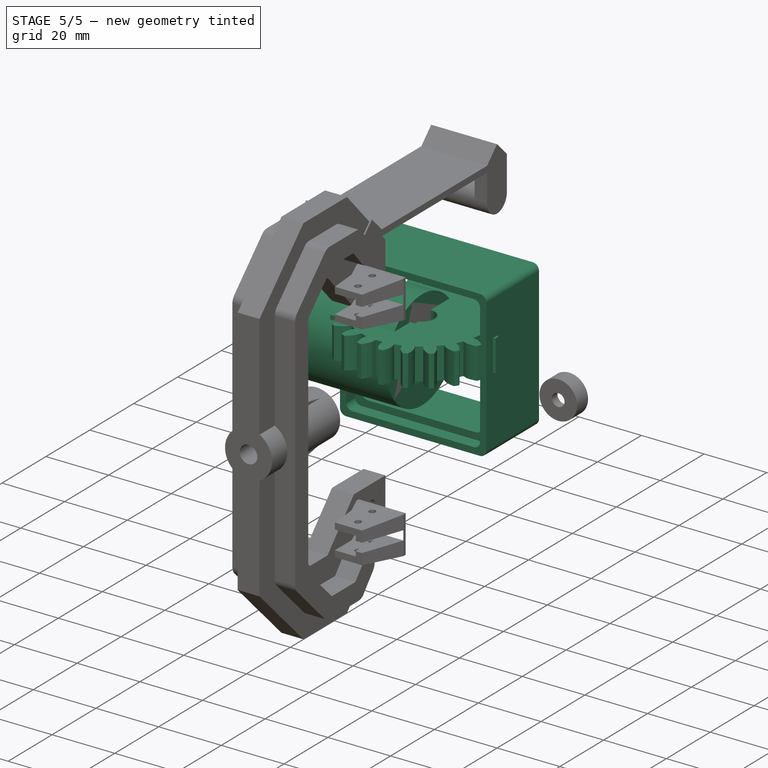
[diagram: stage 5 of 5 — iso view after this stage's code; geometry added in this stage tinted green]
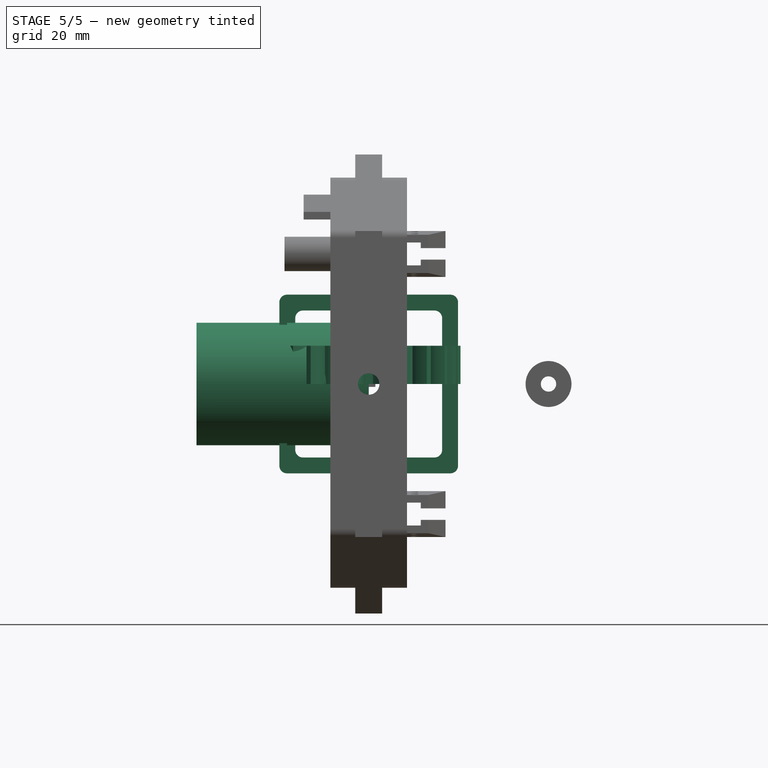
[diagram: stage 5 of 5 — front view after this stage's code; geometry added in this stage tinted green]
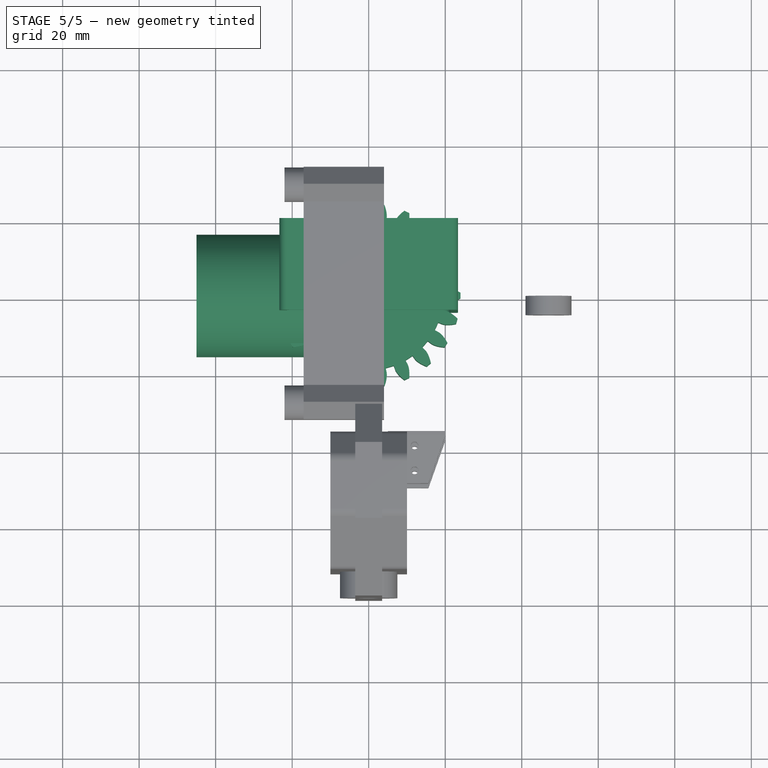
[diagram: stage 5 of 5 — top view after this stage's code; geometry added in this stage tinted green]
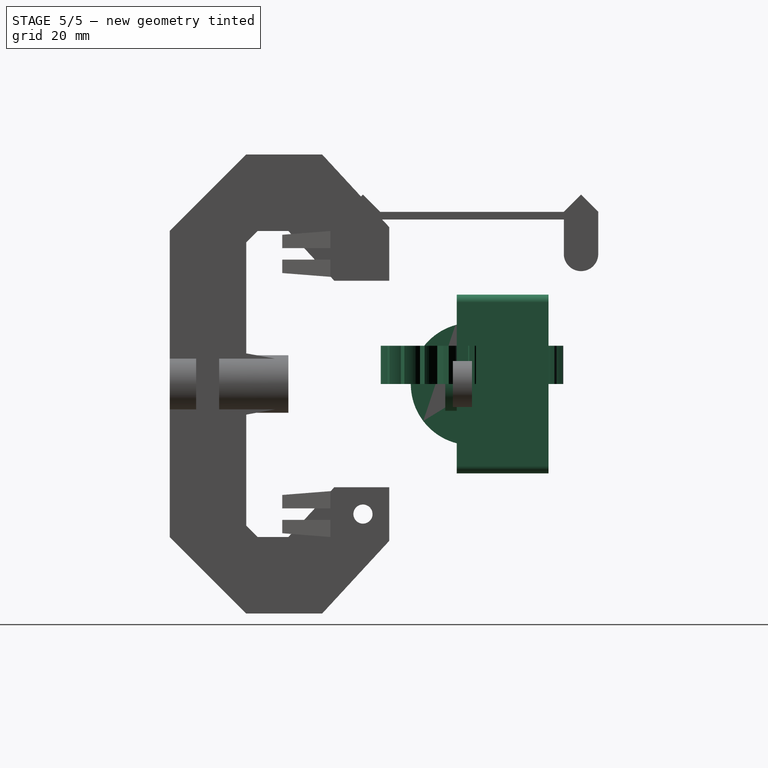
[diagram: stage 5 of 5 — right view after this stage's code; geometry added in this stage tinted green]
FEATURE [Sketcher::SketchObject] Sketch001
  ArcFitTolerance = 1e-06
  AttachmentSupport = -> [YZ_Plane002]
  FullyConstrained = true
  MakeInternals = false
  MapMode = 5
  Placement = pos=(0,0,0) rot=(0.57735,0.57735,0.57735;2.0944rad)
  sketch-geometry (1):
    g0: Circle CenterX=0 CenterY=0 CenterZ=0 NormalX=0 NormalY=0 NormalZ=1 AngleXU=0 Radius=16
  constraints (2):
    c: Diameter(g0) = 32
    c: Coincident(g0,g-1)
FEATURE [PartDesign::Pad] Pad003
  Direction = (1,0,0)
  Length = 45
  Length2 = 10
  Placement = pos=(0,0,0) rot=(1,1,1;2.0944rad)
  Profile = -> Sketch001
  ReferenceAxis = -> Sketch001 [N_Axis]
  Refine = true
  Reversed = true
  Suppressed = false
  Type = 0
FEATURE [Part::FeaturePython] InvoluteGear001  # WARN: FeaturePython — macro-defined, semantics opaque (R4)
  AttacherType = Attacher::AttachEngine3D
  Placement = pos=(0,100,0) rot=(0.999805,0,0;1.5708rad)
  addendum_diameter = 48
  angular_backlash = 0
  axle_hole = true
  axle_holesize = 8
  backlash = 0
  clearance = 0.25
  double_helix = false
  head = 0
  head_fillet = 0
  height = 10
  helix_angle = 0
  module = 2
  num_teeth = 22
  numpoints = 20
  offset_hole = false
  offset_holeoffset = 4
  offset_holesize = 10
  pitch_diameter = 44
  pressure_angle = 20
  properties_from_tool = false
  reversed_backlash = false
  root_diameter = 39
  root_fillet = 0
  shift = 0
  simple = false
  transverse_pitch = 6.28319
  traverse_module = 2
  undercut = false
  version = 1.3.0
  expr: angular_backlash = backlash / pitch_diameter * 360 ° / pi
FEATURE [PartDesign::FeatureBase] BaseFeature
  BaseFeature = -> InvoluteGear001
  Suppressed = false
FEATURE [Sketcher::SketchObject] Sketch003
  ArcFitTolerance = 1e-06
  AttachmentSupport = -> [XY_Plane004]
  FullyConstrained = true
  MakeInternals = false
  MapMode = 5
  sketch-geometry (5):
    g0: LineSegment StartX=-1.5 StartY=0 StartZ=0 EndX=-1.5 EndY=-5.2 EndZ=0
    g1: LineSegment StartX=-1.5 StartY=-5.2 StartZ=0 EndX=1.5 EndY=-5.2 EndZ=0
    g2: LineSegment StartX=1.5 StartY=-5.2 StartZ=0 EndX=1.5 EndY=0 EndZ=0
    g3: LineSegment StartX=1.5 StartY=0 StartZ=0 EndX=-1.5 EndY=0 EndZ=0
    g4: GeomPoint X=0 Y=0 Z=0
  constraints (13):
    c: Coincident(g0,g1)
    c: Coincident(g1,g2)
    c: Coincident(g2,g3)
    c: Coincident(g3,g0)
    c: Vertical(g0)
    c: Vertical(g2)
    c: Horizontal(g1)
    c: Horizontal(g3)
    c: Distance(g0,g2) = 3
    c: Distance(g1,g3) = 5.2
    c: Symmetric(g3,g3,g4)
    c: PointOnObject(g4,g-2)
    c: PointOnObject(g2,g-1)
FEATURE [PartDesign::Pocket] Pocket
  BaseFeature = -> BaseFeature
  Direction = (0,0,-1)
  Length = 5
  Length2 = 5
  Profile = -> Sketch003
  ReferenceAxis = -> Sketch003 [N_Axis]
  Refine = true
  Reversed = true
  Suppressed = false
  Type = 1
FEATURE [PartDesign::Body] Body003  label="motor001"
  AllowCompound = false
  Group = -> [Sketch002,Pad007,Pad008,Pad009,Pad010,Sketch017,Pocket008]
  Origin = -> Origin003
  Placement = pos=(47,23,0) rot=(0,0,1;0rad)
  Tip = -> Pocket008
FEATURE [App::DocumentObjectGroup] Group001  label="motor"
  Group = -> [Body003]
FEATURE [Sketcher::SketchObject] Sketch019
  ArcFitTolerance = 1e-06
  FullyConstrained = true
  MakeInternals = false
  MapMode = 5
  Placement = pos=(0,0,0) rot=(1,0,0;1.5708rad)
  sketch-geometry (2):
    g0: Circle CenterX=0 CenterY=0 CenterZ=0 NormalX=0 NormalY=0 NormalZ=1 AngleXU=0 Radius=5.5
    g1: Circle CenterX=0 CenterY=0 CenterZ=0 NormalX=0 NormalY=0 NormalZ=1 AngleXU=0 Radius=7
  constraints (5):
    c: Diameter(g0) = 11
    c: Coincident(g0,g-1)
    c: Diameter(g1) = 14
    c: PointOnObject(g1,g-1)
    c: PointOnObject(g1,g-2)
FEATURE [PartDesign::Pad] Pad017
  Direction = (0,-1,2e-16)
  Length = 7
  Length2 = 10
  Placement = pos=(0,0,0) rot=(1,0,0;1.5708rad)
  Profile = -> Sketch019
  ReferenceAxis = -> Sketch019 [N_Axis]
  Refine = true
  Suppressed = false
  Type = 0
FEATURE [PartDesign::Body] Body012  label="right-ring"
  AllowCompound = false
  Group = -> [Sketch019,Pad017]
  Origin = -> Origin023
  Placement = pos=(47,-31,0) rot=(0,0,1;0rad)
  Tip = -> Pad017
FEATURE [App::DocumentObjectGroup] Group006  label="rings"
  Group = -> [Body012]
FEATURE [Sketcher::SketchObject] Sketch021
  ArcFitTolerance = 1e-06
  AttachmentSupport = -> [XZ_Plane014]
  FullyConstrained = true
  MakeInternals = false
  MapMode = 5
  Placement = pos=(0,0,0) rot=(1,0,0;1.5708rad)
  sketch-geometry (15):
    g0: LineSegment StartX=-21.35 StartY=-21.35 StartZ=0 EndX=21.35 EndY=-21.35 EndZ=0
    g1: LineSegment StartX=21.35 StartY=-21.35 StartZ=0 EndX=21.35 EndY=21.35 EndZ=0
    g2: LineSegment StartX=21.35 StartY=21.35 StartZ=0 EndX=-21.35 EndY=21.35 EndZ=0
    g3: LineSegment StartX=-21.35 StartY=21.35 StartZ=0 EndX=-21.35 EndY=-21.35 EndZ=0
    g4: GeomPoint [constr] X=0 Y=0 Z=0
    g5: LineSegment StartX=-23.35 StartY=-23.35 StartZ=0 EndX=23.35 EndY=-23.35 EndZ=0
    g6: LineSegment StartX=23.35 StartY=-23.35 StartZ=0 EndX=23.35 EndY=23.35 EndZ=0
    g7: LineSegment StartX=23.35 StartY=23.35 StartZ=0 EndX=-23.35 EndY=23.35 EndZ=0
    g8: LineSegment StartX=-23.35 StartY=23.35 StartZ=0 EndX=-23.35 EndY=-23.35 EndZ=0
    g9: GeomPoint [constr] X=0 Y=0 Z=0
    g10: LineSegment StartX=-19.2 StartY=-19.2 StartZ=0 EndX=19.2 EndY=-19.2 EndZ=0
    g11: LineSegment StartX=19.2 StartY=-19.2 StartZ=0 EndX=19.2 EndY=19.2 EndZ=0
    g12: LineSegment StartX=19.2 StartY=19.2 StartZ=0 EndX=-19.2 EndY=19.2 EndZ=0
    g13: LineSegment StartX=-19.2 StartY=19.2 StartZ=0 EndX=-19.2 EndY=-19.2 EndZ=0
    g14: GeomPoint [constr] X=0 Y=0 Z=0
  constraints (36):
    c: Coincident(g0,g1)
    c: Coincident(g1,g2)
    c: Coincident(g2,g3)
    c: Coincident(g3,g0)
    c: Horizontal(g0)
    c: Horizontal(g2)
    c: Vertical(g1)
    c: Vertical(g3)
    c: Symmetric(g2,g0,g4)
    c: Distance(g1,g3) = 42.7
    c: Distance(g0,g2) = 42.7
    c: Coincident(g4,g-1)
    c: Coincident(g5,g6)
    c: Coincident(g6,g7)
    c: Coincident(g7,g8)
    c: Coincident(g8,g5)
    c: Horizontal(g5)
    c: Horizontal(g7)
    c: Vertical(g6)
    c: Vertical(g8)
    c: Symmetric(g7,g5,g9)
    c: Distance(g6,g8) = 46.7
    c: Distance(g5,g7) = 46.7
    c: Coincident(g9,g4)
    c: Coincident(g10,g11)
    c: Coincident(g11,g12)
    c: Coincident(g12,g13)
    c: Coincident(g13,g10)
    c: Horizontal(g10)
    c: Horizontal(g12)
    c: Vertical(g11)
    c: Vertical(g13)
    c: Symmetric(g12,g10,g14)
    c: Distance(g11,g13) = 38.4
    c: Distance(g10,g12) = 38.4
    c: Coincident(g14,g4)
FEATURE [PartDesign::Pad] Pad020
  Direction = (0,-1,2e-16)
  Length = 4
  Length2 = 20
  Midplane = true
  Placement = pos=(0,0,0) rot=(1,0,0;1.5708rad)
  Profile = -> Sketch021 [Edge3,Edge4,Edge1,Edge2,Edge6,Edge7,Edge8,Edge5]
  ReferenceAxis = -> Sketch021 [N_Axis]
  Refine = true
  Suppressed = false
  Type = 4
FEATURE [PartDesign::Pad] Pad021
  BaseFeature = -> Pad020
  Direction = (0,-1,2e-16)
  Length = 12
  Length2 = 10
  Placement = pos=(0,0,0) rot=(1,0,0;1.5708rad)
  Profile = -> Sketch021 [Edge3,Edge4,Edge1,Edge2,Edge11,Edge12,Edge9,Edge10]
  ReferenceAxis = -> Sketch021 [N_Axis]
  Refine = true
  Reversed = true
  Suppressed = false
  Type = 0
FEATURE [PartDesign::Fillet] Fillet015
  Base = -> Pad021 [Edge8,Edge2,Edge5,Edge1]
  BaseFeature = -> Pad021
  Placement = pos=(0,0,0) rot=(1,0,0;1.5708rad)
  Radius = 2
  Refine = true
  SupportTransform = false
  Suppressed = false
  UseAllEdges = false
FEATURE [PartDesign::Fillet] Fillet016
  Base = -> Fillet015 [Edge35,Edge57,Edge43,Edge47,Edge60,Edge38,Edge36,Edge59,Edge45,Edge42,Edge58,Edge33]
  BaseFeature = -> Fillet015
  Placement = pos=(0,0,0) rot=(1,0,0;1.5708rad)
  Radius = 2
  Refine = true
  SupportTransform = false
  Suppressed = false
  UseAllEdges = false
FEATURE [Sketcher::SketchObject] Sketch041
  ArcFitTolerance = 0
  AttachmentSupport = -> [XZ_Plane024]
  FullyConstrained = true
  MakeInternals = false
  MapMode = 5
  Placement = pos=(0,0,0) rot=(1,0,0;1.5708rad)
  sketch-geometry (10):
    g0: LineSegment StartX=5.48 StartY=-4.6 StartZ=0 EndX=5.48 EndY=4.6 EndZ=0
    g1: LineSegment StartX=5.48 StartY=4.6 StartZ=0 EndX=2.68 EndY=4.6 EndZ=0
    g2: LineSegment StartX=2.68 StartY=4.6 StartZ=0 EndX=2.68 EndY=3.8 EndZ=0
    g3: LineSegment StartX=2.68 StartY=3.8 StartZ=0 EndX=2.98 EndY=3.8 EndZ=0
    g4: LineSegment StartX=2.98 StartY=3.8 StartZ=0 EndX=2.98 EndY=3.7 EndZ=0
    g5: LineSegment StartX=2.98 StartY=3.7 StartZ=0 EndX=3.48 EndY=3.7 EndZ=0
    g6: LineSegment StartX=3.48 StartY=3.7 StartZ=0 EndX=3.48 EndY=3.8 EndZ=0
    g7: LineSegment StartX=3.48 StartY=3.8 StartZ=0 EndX=4.68 EndY=3.8 EndZ=0
    g8: LineSegment StartX=4.68 StartY=3.8 StartZ=0 EndX=4.68 EndY=-4.6 EndZ=0
    g9: LineSegment StartX=4.68 StartY=-4.6 StartZ=0 EndX=5.48 EndY=-4.6 EndZ=0
  constraints (31):
    c: Vertical(g0)
    c: DistanceY(g0,g0) = 9.2
    c: Coincident(g0,g1)
    c: Horizontal(g1)
    c: Coincident(g1,g2)
    c: Vertical(g2)
    c: Coincident(g2,g3)
    c: Coincident(g3,g4)
    c: Vertical(g4)
    c: Coincident(g4,g5)
    c: Horizontal(g5)
    c: Coincident(g5,g6)
    c: Coincident(g6,g7)
    c: Horizontal(g7)
    c: Coincident(g7,g8)
    c: Vertical(g8)
    c: Coincident(g8,g9)
    c: Coincident(g9,g0)
    c: Horizontal(g9)
    c: DistanceX(g9,g9) = 0.8
    c: Horizontal(g3)
    c: Horizontal(g3,g6)
    c: Vertical(g6)
    c: Equal(g9,g2)
    c: DistanceY(g-1,g0) = 4.6
    c: DistanceX(g1,g1) = 2.8
    c: DistanceX(g3,g3) = 0.3
    c: DistanceX(g7,g7) = 1.2
    c: DistanceY(g6,g6) = 0.1
    c: DistanceX(g-1,g8) = 4.68
    c: DistanceY(g0,g-1) = 4.6
FEATURE [PartDesign::Pad] Pad030
  Direction = (0,-1,2e-16)
  Length = 0.45
  Length2 = 100
  Midplane = true
  Placement = pos=(0,0,0) rot=(1,0,0;1.5708rad)
  Profile = -> Sketch041
  ReferenceAxis = -> Sketch041 [N_Axis]
  Suppressed = false
  Type = 0
FEATURE [PartDesign::Body] Body022  label="Pin_NC001"
  AllowCompound = false
  Group = -> [Sketch041,Pad030]
  Origin = -> Origin035
  Tip = -> Pad030
FEATURE [PartDesign::ShapeBinder] ShapeBinder005
  Placement = pos=(0,-0.225,0) rot=(0,0,1;0rad)
  Support = -> [Pad030]
  TraceSupport = false
FEATURE [Sketcher::SketchObject] Sketch042
  ArcFitTolerance = 0
  AttachmentSupport = -> [XZ_Plane025]
  ExternalGeometry = -> [ShapeBinder005]
  FullyConstrained = true
  MakeInternals = false
  MapMode = 5
  Placement = pos=(0,0,0) rot=(1,0,0;1.5708rad)
  sketch-geometry (12):
    g0: LineSegment StartX=0.4 StartY=-4.6 StartZ=0 EndX=-0.4 EndY=-4.6 EndZ=0
    g1: LineSegment StartX=-0.4 StartY=-4.6 StartZ=0 EndX=-0.4 EndY=0.909572 EndZ=0
    g2: LineSegment StartX=0.4 StartY=0.457892 StartZ=0 EndX=2.84795 EndY=1.20543 EndZ=0
    g3: LineSegment StartX=2.84795 StartY=1.20543 StartZ=0 EndX=3.48 EndY=1.20543 EndZ=0
    g4: LineSegment StartX=3.48 StartY=1.20543 StartZ=0 EndX=3.48 EndY=3.06272 EndZ=0
    g5: LineSegment StartX=3.48 StartY=3.06272 StartZ=0 EndX=2.98 EndY=3.06272 EndZ=0
    g6: LineSegment StartX=2.98 StartY=3.06272 StartZ=0 EndX=2.98 EndY=2.48242 EndZ=0
    g7: LineSegment StartX=2.98 StartY=2.48242 StartZ=0 EndX=2.48712 EndY=2.48242 EndZ=0
    g8: LineSegment StartX=2.48712 StartY=2.48242 StartZ=0 EndX=2.48712 EndY=1.53533 EndZ=0
    g9: LineSegment StartX=2.48712 StartY=1.53533 StartZ=0 EndX=0.437957 EndY=0.909572 EndZ=0
    g10: LineSegment StartX=0.437957 StartY=0.909572 StartZ=0 EndX=-0.4 EndY=0.909572 EndZ=0
    g11: LineSegment StartX=0.4 StartY=-4.6 StartZ=0 EndX=0.4 EndY=0.457892 EndZ=0
  constraints (32):
    c: Coincident(g0,g1)
    c: Horizontal(g0)
    c: Vertical(g1)
    c: Equal(g0,g-5)
    c: DistanceX(g1,g-1) = 0.4
    c: Coincident(g2,g3)
    c: Horizontal(g3)
    c: Coincident(g3,g4)
    c: Vertical(g4)
    c: Coincident(g4,g5)
    c: Coincident(g5,g6)
    c: Vertical(g6)
    c: Coincident(g6,g7)
    c: Coincident(g7,g8)
    c: Vertical(g8)
    c: Coincident(g8,g9)
    c: Coincident(g9,g10)
    c: Coincident(g10,g1)
    c: Horizontal(g7)
    c: Horizontal(g5)
    c: Equal(g5,g-3)
    c: Vertical(g4,g-3)
    c: Parallel(g9,g2)
    c: Horizontal(g10)
    c: Block(g8)
    c: Block(g9)
    c: Block(g2)
    c: Block(g4)
    c: Horizontal(g-5,g0)
    c: Coincident(g11,g0)
    c: Coincident(g11,g2)
    c: Vertical(g11)
FEATURE [PartDesign::Pad] Pad031
  Direction = (0,-1,2e-16)
  Length = 0.45
  Length2 = 100
  Midplane = true
  Placement = pos=(0,0,0) rot=(1,0,0;1.5708rad)
  Profile = -> Sketch042
  ReferenceAxis = -> Sketch042 [N_Axis]
  Suppressed = false
  Type = 0
FEATURE [PartDesign::Body] Body023  label="Pin_NO001"
  AllowCompound = false
  Group = -> [Sketch042,Pad031,ShapeBinder005]
  Origin = -> Origin036
  Tip = -> Pad031
FEATURE [PartDesign::ShapeBinder] ShapeBinder006
  Placement = pos=(0,-0.225,0) rot=(0,0,1;0rad)
  Support = -> [Pad030]
  TraceSupport = false
FEATURE [PartDesign::ShapeBinder] ShapeBinder007
  Placement = pos=(0,-0.225,0) rot=(0,0,1;0rad)
  Support = -> [Pad031]
  TraceSupport = false
FEATURE [Sketcher::SketchObject] Sketch043
  ArcFitTolerance = 0
  AttachmentSupport = -> [XZ_Plane026]
  ExternalGeometry = -> [ShapeBinder006,ShapeBinder007]
  FullyConstrained = true
  MakeInternals = false
  MapMode = 5
  Placement = pos=(0,0,0) rot=(1,0,0;1.5708rad)
  sketch-geometry (17):
    g0: LineSegment StartX=-5.48 StartY=0.573115 StartZ=0 EndX=-5.48 EndY=-4.6 EndZ=0
    g1: LineSegment StartX=-4.68 StartY=0.531664 StartZ=0 EndX=-4.29703 EndY=1.12608 EndZ=0
    g2: LineSegment StartX=-4.29703 StartY=1.12608 StartZ=0 EndX=-1.12486 EndY=1.12608 EndZ=0
    g3: LineSegment StartX=-1.12486 StartY=1.12608 StartZ=0 EndX=-1.12486 EndY=1.90154 EndZ=0
    g4: LineSegment StartX=-1.12486 StartY=1.90154 StartZ=0 EndX=-0.654846 EndY=1.90154 EndZ=0
    g5: LineSegment StartX=-0.654846 StartY=1.90154 StartZ=0 EndX=-1.19401 EndY=3.7 EndZ=0
    g6: LineSegment StartX=-1.19401 StartY=3.7 StartZ=0 EndX=-1.69401 EndY=3.7 EndZ=0
    g7: LineSegment StartX=-1.69401 StartY=3.7 StartZ=0 EndX=-1.69401 EndY=2.23443 EndZ=0
    g8: LineSegment StartX=-1.69401 StartY=2.23443 StartZ=0 EndX=-4.63708 EndY=2.23443 EndZ=0
    g9: LineSegment StartX=-4.63708 StartY=2.23443 StartZ=0 EndX=-4.63708 EndY=3.7 EndZ=0
    g10: LineSegment StartX=-4.63708 StartY=3.7 StartZ=0 EndX=-5.48708 EndY=3.7 EndZ=0
    g11: LineSegment StartX=-5.48708 StartY=3.7 StartZ=0 EndX=-5.74689 EndY=1.90154 EndZ=0
    g12: LineSegment StartX=-5.74689 StartY=1.90154 StartZ=0 EndX=-5.27688 EndY=1.90154 EndZ=0
    g13: LineSegment StartX=-5.27688 StartY=1.90154 StartZ=0 EndX=-5.27688 EndY=1.09492 EndZ=0
    g14: LineSegment StartX=-5.27688 StartY=1.09492 StartZ=0 EndX=-5.48 EndY=0.573115 EndZ=0
    g15: LineSegment StartX=-5.48 StartY=-4.6 StartZ=0 EndX=-4.68 EndY=-4.6 EndZ=0
    g16: LineSegment StartX=-4.68 StartY=-4.6 StartZ=0 EndX=-4.68 EndY=0.531664 EndZ=0
  constraints (49):
    c: Vertical(g0)
    c: Coincident(g1,g2)
    c: Horizontal(g2)
    c: Coincident(g2,g3)
    c: Vertical(g3)
    c: Coincident(g3,g4)
    c: Horizontal(g4)
    c: Coincident(g4,g5)
    c: Coincident(g5,g6)
    c: Horizontal(g6)
    c: Coincident(g6,g7)
    c: Vertical(g7)
    c: Coincident(g7,g8)
    c: Horizontal(g8)
    c: Coincident(g8,g9)
    c: Vertical(g9)
    c: Coincident(g9,g10)
    c: Horizontal(g10)
    c: Coincident(g10,g11)
    c: Coincident(g11,g12)
    c: Horizontal(g12)
    c: Coincident(g12,g13)
    c: Vertical(g13)
    c: Coincident(g13,g14)
    c: Coincident(g14,g0)
    c: Horizontal(g6,g9)
    c: Horizontal(g5,g-9)
    c: Horizontal(g12,g3)
    c: Equal(g4,g12)
    c: DistanceX(g6,g6) = 0.5
    c: DistanceX(g10,g10) = 0.85
    c: Coincident(g0,g15)
    c: Horizontal(g15)
    c: Coincident(g15,g16)
    c: Coincident(g16,g1)
    c: Vertical(g16)
    c: Horizontal(g15,g-6)
    c: DistanceX(g15,g-6) = 4.28
    c: Equal(g-3,g15)
    c: Block(g8)
    c: Block(g12)
    c: Block(g13)
    c: Block(g14)
    c: Block(g0)
    c: Block(g1)
    c: Block(g2)
    c: Block(g4)
    c: Block(g3)
    c: Block(g5)
FEATURE [PartDesign::Pad] Pad032
  Direction = (0,-1,2e-16)
  Length = 0.45
  Length2 = 100
  Midplane = true
  Placement = pos=(0,0,0) rot=(1,0,0;1.5708rad)
  Profile = -> Sketch043
  ReferenceAxis = -> Sketch043 [N_Axis]
  Suppressed = false
  Type = 0
FEATURE [Sketcher::SketchObject] Sketch047
  ArcFitTolerance = 0
  AttachmentSupport = -> [XZ_Plane028]
  FullyConstrained = false
  MakeInternals = false
  MapMode = 5
  Placement = pos=(0,0,0) rot=(1,0,0;1.5708rad)
  sketch-geometry (4):
    g0: LineSegment StartX=-0.8 StartY=5.3 StartZ=0 EndX=-0.8 EndY=2.5 EndZ=0
    g1: LineSegment StartX=-0.8 StartY=2.5 StartZ=0 EndX=-1.9 EndY=2.5 EndZ=0
    g2: LineSegment StartX=-1.9 StartY=2.5 StartZ=0 EndX=-1.9 EndY=5.3 EndZ=0
    g3: ArcOfCircle CenterX=-1.35 CenterY=5.3 CenterZ=0 NormalX=0 NormalY=0 NormalZ=1 AngleXU=0 Radius=0.55 StartAngle=5e-16 EndAngle=3.14159
  constraints (12):
    c: Coincident(g0,g1)
    c: Coincident(g1,g2)
    c: Horizontal(g1)
    c: Vertical(g0)
    c: Vertical(g2)
    c: DistanceX(g2,g0) = 1.1
    c: DistanceY(g0,g0) = 2.8
    c: DistanceX(g0,g-1) = 0.8
    c: Equal(g2,g0)
    c: Coincident(g3,g0)
    c: Coincident(g3,g2)
    c: Horizontal(g3,g0)
FEATURE [PartDesign::Pad] Pad034
  Direction = (0,-1,2e-16)
  Length = 4.1
  Length2 = 100
  Midplane = true
  Placement = pos=(0,0,0) rot=(1,0,0;1.5708rad)
  Profile = -> Sketch047
  ReferenceAxis = -> Sketch047 [N_Axis]
  Suppressed = false
  Type = 0
FEATURE [Sketcher::SketchObject] Sketch048
  ArcFitTolerance = 0
  AttachmentSupport = -> [Pad034]
  ExternalGeometry = -> [Pad034]
  FullyConstrained = true
  MakeInternals = false
  MapMode = 5
  Placement = pos=(-0.8,0,0) rot=(0.707107,0,0.707107;3.14159rad)
  sketch-geometry (8):
    g0: LineSegment StartX=2.5 StartY=2.05 StartZ=0 EndX=6 EndY=2.05 EndZ=0
    g1: LineSegment StartX=6 StartY=2.05 StartZ=0 EndX=6 EndY=1.325 EndZ=0
    g2: LineSegment StartX=6 StartY=1.325 StartZ=0 EndX=2.5 EndY=1.325 EndZ=0
    g3: LineSegment StartX=2.5 StartY=1.325 StartZ=0 EndX=2.5 EndY=2.05 EndZ=0
    g4: LineSegment StartX=2.5 StartY=-2.05 StartZ=0 EndX=2.5 EndY=-1.325 EndZ=0
    g5: LineSegment StartX=2.5 StartY=-1.325 StartZ=0 EndX=6 EndY=-1.325 EndZ=0
    g6: LineSegment StartX=6 StartY=-1.325 StartZ=0 EndX=6 EndY=-2.05 EndZ=0
    g7: LineSegment StartX=6 StartY=-2.05 StartZ=0 EndX=2.5 EndY=-2.05 EndZ=0
  constraints (23):
    c: Coincident(g0,g1)
    c: Coincident(g1,g2)
    c: Coincident(g2,g3)
    c: Coincident(g3,g0)
    c: Horizontal(g0)
    c: Horizontal(g2)
    c: Vertical(g1)
    c: Vertical(g3)
    c: Coincident(g0,g-5)
    c: Coincident(g4,g5)
    c: Coincident(g5,g6)
    c: Horizontal(g5)
    c: Vertical(g4)
    c: Vertical(g6)
    c: Equal(g1,g6)
    c: DistanceY(g-6,g-6) = 4.1
    c: DistanceY(g5,g1) = 2.65
    c: Vertical(g1,g5)
    c: Coincident(g7,g6)
    c: Coincident(g7,g4)
    c: Horizontal(g7)
    c: Coincident(g-5,g4)
    c: DistanceX(g0,g0) = 3.5
FEATURE [PartDesign::Pocket] Pocket019
  BaseFeature = -> Pad034
  Direction = (-1,0,2e-16)
  Length = 1.7
  Length2 = 100
  Placement = pos=(0,0,0) rot=(1,0,0;1.5708rad)
  Profile = -> Sketch048
  ReferenceAxis = -> Sketch048 [N_Axis]
  Suppressed = false
  Type = 0
FEATURE [PartDesign::ShapeBinder] ShapeBinder009
  Placement = pos=(0,0,0) rot=(1,0,0;1.5708rad)
  TraceSupport = false
FEATURE [PartDesign::Body] Body026  label="Button001"
  AllowCompound = false
  Group = -> [Sketch047,Pad034,Sketch048,Pocket019,ShapeBinder009]
  Origin = -> Origin039
  Tip = -> Pocket019
FEATURE [Sketcher::SketchObject] Sketch049
  ArcFitTolerance = 0
  AttachmentSupport = -> [XZ_Plane029]
  FullyConstrained = false
  MakeInternals = false
  MapMode = 5
  Placement = pos=(0,0,0) rot=(1,0,0;1.5708rad)
  sketch-geometry (11):
    g0: LineSegment StartX=-5.3 StartY=5.3 StartZ=0 EndX=-5.3 EndY=3.85 EndZ=0
    g1: LineSegment StartX=-5.3 StartY=3.85 StartZ=0 EndX=-5 EndY=3.85 EndZ=0
    g2: LineSegment StartX=-5 StartY=3.85 StartZ=0 EndX=-5 EndY=5.0698 EndZ=0
    g3: LineSegment StartX=-5 StartY=5.0698 StartZ=0 EndX=7.89529 EndY=8.52508 EndZ=0
    g4: LineSegment StartX=-5.3 StartY=5.3 StartZ=0 EndX=7.74 EndY=8.79406 EndZ=0
    g5: ArcOfCircle CenterX=9.36634 CenterY=8.93548 CenterZ=0 NormalX=0 NormalY=0 NormalZ=1 AngleXU=0 Radius=0.75 StartAngle=0.2409 EndAngle=2.35619
    g6: ArcOfCircle CenterX=9.36634 CenterY=8.93548 CenterZ=0 NormalX=0 NormalY=0 NormalZ=1 AngleXU=0 Radius=1.05 StartAngle=0.246872 EndAngle=2.35619
    g7: LineSegment StartX=8.62388 StartY=9.67794 StartZ=0 EndX=7.74 EndY=8.79406 EndZ=0
    g8: LineSegment StartX=8.83601 StartY=9.46581 StartZ=0 EndX=7.89529 EndY=8.52508 EndZ=0
    g9: LineSegment [constr] StartX=7.89529 StartY=8.52508 StartZ=0 EndX=4.10037 EndY=7.50824 EndZ=0
    g10: LineSegment StartX=10.0947 StartY=9.11441 StartZ=0 EndX=10.3845 EndY=9.19207 EndZ=0
  constraints (32):
    c: Vertical(g0)
    c: Coincident(g0,g1)
    c: Coincident(g1,g2)
    c: Vertical(g2)
    c: Coincident(g2,g3)
    c: Coincident(g0,g4)
    c: Horizontal(g1)
    c: Parallel(g4,g3)
    c: Distance(g3,g4) = 0.3
    c: DistanceX(g1,g1) = 0.3
    c: Coincident(g6,g5)
    c: Coincident(g7,g4)
    c: Coincident(g8,g3)
    c: Parallel(g8,g7)
    c: Diameter(g5) = 1.5
    c: Diameter(g6) = 2.1
    c: Coincident(g9,g3)
    c: Parallel(g9,g3)
    c: PointOnObject(g6,g9)
    c: PointOnObject(g5,g9)
    c: Tangent(g6,g7) = -1.5708
    c: Tangent(g5,g8) = -1.5708
    c: Coincident(g10,g5)
    c: Coincident(g10,g6)
    c: Distance(g4) = 13.5
    c: Angle(g2,g3) = 1.8326
    c: DistanceX(g1,g-1) = 5
    c: DistanceY(g-1,g1) = 3.85
    c: DistanceY(g0,g0) = 1.45
    c: Angle(g7,g4) = 2.61799
    c: Distance(g7) = 1.25
    c: DistanceY(g-1,g6) = 9.19207
FEATURE [PartDesign::Pad] Pad035
  Direction = (0,-1,2e-16)
  Length = 3.7
  Length2 = 100
  Midplane = true
  Placement = pos=(0,0,0) rot=(1,0,0;1.5708rad)
  Profile = -> Sketch049
  ReferenceAxis = -> Sketch049 [N_Axis]
  Suppressed = false
  Type = 0
FEATURE [Sketcher::SketchObject] Sketch050
  ArcFitTolerance = 0
  AttachmentSupport = -> [Pad035]
  ExternalGeometry = -> [Pad035]
  FullyConstrained = true
  MakeInternals = false
  MapMode = 5
  Placement = pos=(0,1.7e-15,3.85) rot=(1,0,0;3.14159rad)
  sketch-geometry (4):
    g0: ArcOfCircle CenterX=-5.3 CenterY=0 CenterZ=0 NormalX=0 NormalY=0 NormalZ=1 AngleXU=0 Radius=0.35 StartAngle=1.5708 EndAngle=4.71239
    g1: ArcOfCircle CenterX=2.7 CenterY=0 CenterZ=0 NormalX=0 NormalY=0 NormalZ=1 AngleXU=0 Radius=0.35 StartAngle=4.71239 EndAngle=7.85398
    g2: LineSegment StartX=-5.3 StartY=-0.35 StartZ=0 EndX=2.7 EndY=-0.35 EndZ=0
    g3: LineSegment StartX=2.7 StartY=0.35 StartZ=0 EndX=-5.3 EndY=0.35 EndZ=0
  constraints (10):
    c: Tangent(g0,g2) = -1.5708
    c: Tangent(g2,g1) = -1.5708
    c: Tangent(g1,g3) = -1.5708
    c: Tangent(g3,g0) = -1.5708
    c: Equal(g0,g1)
    c: PointOnObject(g0,g-1)
    c: PointOnObject(g1,g-1)
    c: Diameter(g1) = 0.7
    c: DistanceX(g3,g3) = 8
    c: PointOnObject(g0,g-3)
FEATURE [PartDesign::Pocket] Pocket020
  BaseFeature = -> Pad035
  Direction = (0,0,1)
  Length = 5
  Length2 = 100
  Placement = pos=(0,0,0) rot=(1,0,0;1.5708rad)
  Profile = -> Sketch050
  ReferenceAxis = -> Sketch050 [N_Axis]
  Suppressed = false
  Type = 1
FEATURE [Sketcher::SketchObject] Sketch051
  ArcFitTolerance = 0
  AttachmentSupport = -> [Pocket020]
  ExternalGeometry = -> [Pocket020]
  FullyConstrained = true
  MakeInternals = false
  MapMode = 5
  Placement = pos=(0,-1.85,0) rot=(1,0,0;1.5708rad)
  sketch-geometry (4):
    g0: LineSegment StartX=-5 StartY=3.85 StartZ=0 EndX=-5.3 EndY=3.85 EndZ=0
    g1: LineSegment StartX=-5.3 StartY=3.85 StartZ=0 EndX=-5.3 EndY=4.55 EndZ=0
    g2: LineSegment StartX=-5.3 StartY=4.55 StartZ=0 EndX=-5 EndY=4.55 EndZ=0
    g3: LineSegment StartX=-5 StartY=4.55 StartZ=0 EndX=-5 EndY=3.85 EndZ=0
  constraints (11):
    c: Coincident(g0,g1)
    c: Coincident(g1,g2)
    c: Coincident(g2,g3)
    c: Coincident(g3,g0)
    c: Horizontal(g0)
    c: Horizontal(g2)
    c: Vertical(g1)
    c: Vertical(g3)
    c: Coincident(g0,g-4)
    c: PointOnObject(g1,g-3)
    c: DistanceY(g1,g1) = 0.7
FEATURE [PartDesign::Pad] Pad036
  BaseFeature = -> Pocket020
  Direction = (0,-1,2e-16)
  Length = 0.5
  Length2 = 100
  Placement = pos=(0,0,0) rot=(1,0,0;1.5708rad)
  Profile = -> Sketch051
  ReferenceAxis = -> Sketch051 [N_Axis]
  Suppressed = false
  Type = 0
FEATURE [Sketcher::SketchObject] Sketch052
  ArcFitTolerance = 0
  AttachmentSupport = -> [Pad036]
  ExternalGeometry = -> [Pad036]
  FullyConstrained = true
  MakeInternals = false
  MapMode = 5
  Placement = pos=(0,1.85,0) rot=(-1,0,0;1.5708rad)
  sketch-geometry (4):
    g0: LineSegment StartX=-5 StartY=-3.85 StartZ=0 EndX=-5.3 EndY=-3.85 EndZ=0
    g1: LineSegment StartX=-5.3 StartY=-3.85 StartZ=0 EndX=-5.3 EndY=-4.55 EndZ=0
    g2: LineSegment StartX=-5.3 StartY=-4.55 StartZ=0 EndX=-5 EndY=-4.55 EndZ=0
    g3: LineSegment StartX=-5 StartY=-4.55 StartZ=0 EndX=-5 EndY=-3.85 EndZ=0
  constraints (11):
    c: Coincident(g0,g1)
    c: Coincident(g1,g2)
    c: Coincident(g2,g3)
    c: Coincident(g3,g0)
    c: Horizontal(g0)
    c: Horizontal(g2)
    c: Vertical(g1)
    c: Vertical(g3)
    c: Coincident(g0,g-3)
    c: PointOnObject(g1,g-4)
    c: DistanceY(g1,g1) = 0.7
FEATURE [PartDesign::Pad] Pad037
  BaseFeature = -> Pad036
  Direction = (0,1,2e-16)
  Length = 0.5
  Length2 = 100
  Placement = pos=(0,0,0) rot=(1,0,0;1.5708rad)
  Profile = -> Sketch052
  ReferenceAxis = -> Sketch052 [N_Axis]
  Suppressed = false
  Type = 0
FEATURE [Sketcher::SketchObject] Sketch056
  ArcFitTolerance = 0
  AttachmentSupport = -> [Pad038]
  ExternalGeometry = -> [Pad038]
  FullyConstrained = true
  MakeInternals = false
  MapMode = 5
  Placement = pos=(0,2.2e-15,5.05) rot=(0,0,1;3.14159rad)
  sketch-geometry (5):
    g0: LineSegment StartX=4.75 StartY=-1.9 StartZ=0 EndX=4.75 EndY=1.9 EndZ=0
    g1: LineSegment StartX=4.75 StartY=1.9 StartZ=0 EndX=5.6 EndY=1.9 EndZ=0
    g2: LineSegment StartX=5.6 StartY=1.9 StartZ=0 EndX=5.6 EndY=-1.9 EndZ=0
    g3: LineSegment StartX=5.6 StartY=-1.9 StartZ=0 EndX=4.75 EndY=-1.9 EndZ=0
    g4: GeomPoint [constr] X=5.175 Y=0 Z=0
  constraints (13):
    c: Coincident(g0,g1)
    c: Coincident(g1,g2)
    c: Coincident(g2,g3)
    c: Coincident(g3,g0)
    c: Horizontal(g1)
    c: Horizontal(g3)
    c: Vertical(g0)
    c: Vertical(g2)
    c: Symmetric(g1,g0,g4)
    c: PointOnObject(g4,g-1)
    c: DistanceX(g1,g-3) = 0.8
    c: DistanceY(g2,g2) = 3.8
    c: DistanceX(g1,g1) = 0.85
FEATURE [PartDesign::Pocket] Pocket023
  BaseFeature = -> Pad038
  Direction = (0,0,-1)
  Length = 5
  Length2 = 5
  Placement = pos=(0,0,0) rot=(1,0,0;1.5708rad)
  Profile = -> Sketch056
  ReferenceAxis = -> Sketch056 [N_Axis]
  Suppressed = false
  Type = 2
FEATURE [Sketcher::SketchObject] Sketch057
  ArcFitTolerance = 0
  AttachmentSupport = -> [Pocket023]
  ExternalGeometry = -> [Pocket023]
  FullyConstrained = true
  MakeInternals = false
  MapMode = 5
  Placement = pos=(0,-2.9,0) rot=(1,0,0;1.5708rad)
  sketch-geometry (4):
    g0: LineSegment StartX=-5.5 StartY=4.55 StartZ=0 EndX=-4.8 EndY=4.55 EndZ=0
    g1: LineSegment StartX=-4.8 StartY=4.55 StartZ=0 EndX=-4.8 EndY=3.85 EndZ=0
    g2: LineSegment StartX=-4.8 StartY=3.85 StartZ=0 EndX=-5.5 EndY=3.85 EndZ=0
    g3: LineSegment StartX=-5.5 StartY=3.85 StartZ=0 EndX=-5.5 EndY=4.55 EndZ=0
  constraints (12):
    c: Coincident(g0,g1)
    c: Coincident(g1,g2)
    c: Coincident(g2,g3)
    c: Coincident(g3,g0)
    c: Horizontal(g0)
    c: Horizontal(g2)
    c: Vertical(g1)
    c: Vertical(g3)
    c: Equal(g1,g0)
    c: DistanceX(g2,g2) = 0.7
    c: DistanceY(g0,g-3) = 0.5
    c: DistanceX(g-3,g0) = 0.9
FEATURE [PartDesign::Pocket] Pocket024
  BaseFeature = -> Pocket023
  Direction = (0,1,-2e-16)
  Length = 5
  Length2 = 5
  Placement = pos=(0,0,0) rot=(1,0,0;1.5708rad)
  Profile = -> Sketch057
  ReferenceAxis = -> Sketch057 [N_Axis]
  Suppressed = false
  Type = 1
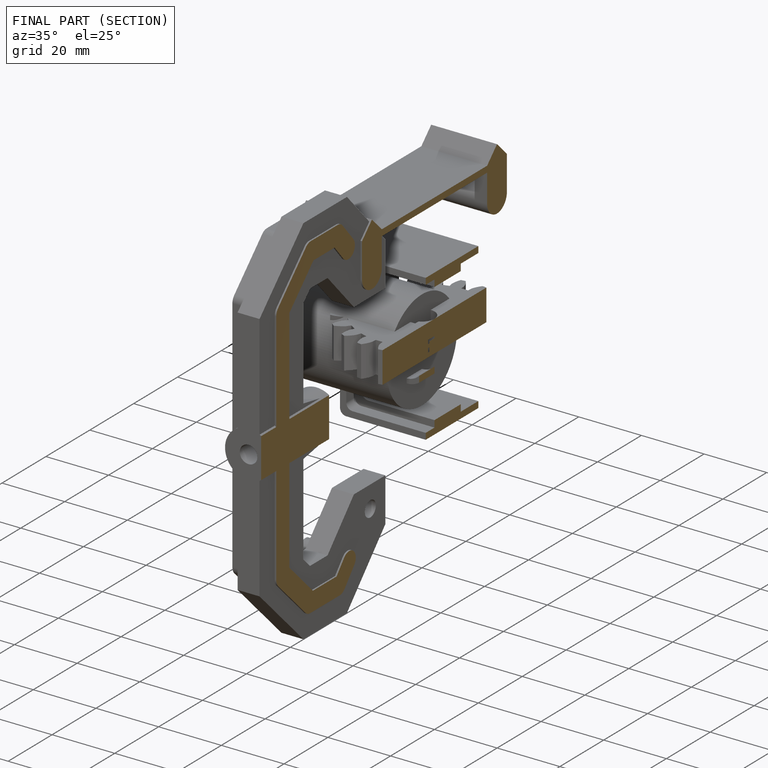
[diagram: finished part — half-section view (interior)]
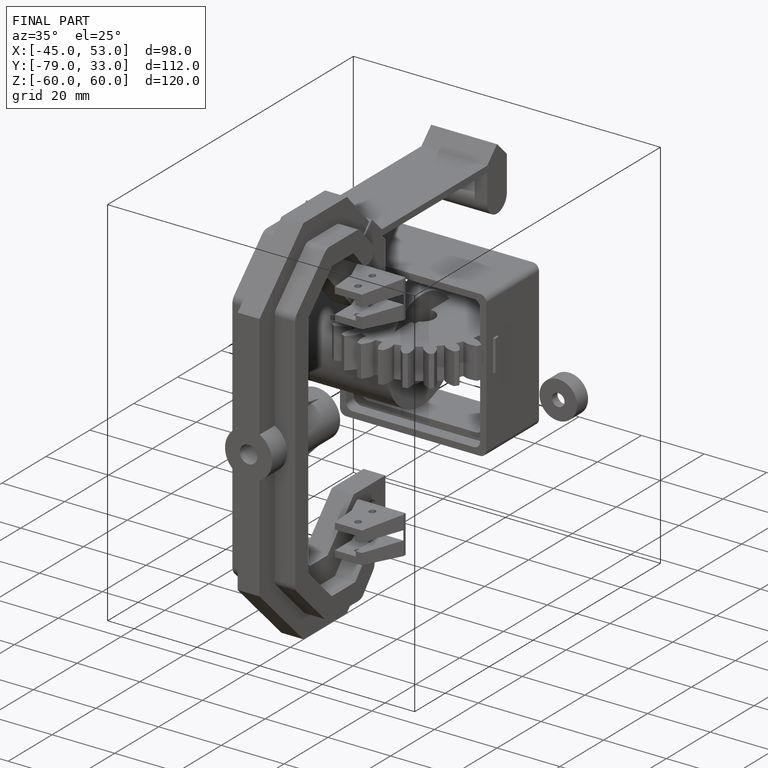
[diagram: finished part — iso view with bounding-box wireframe]
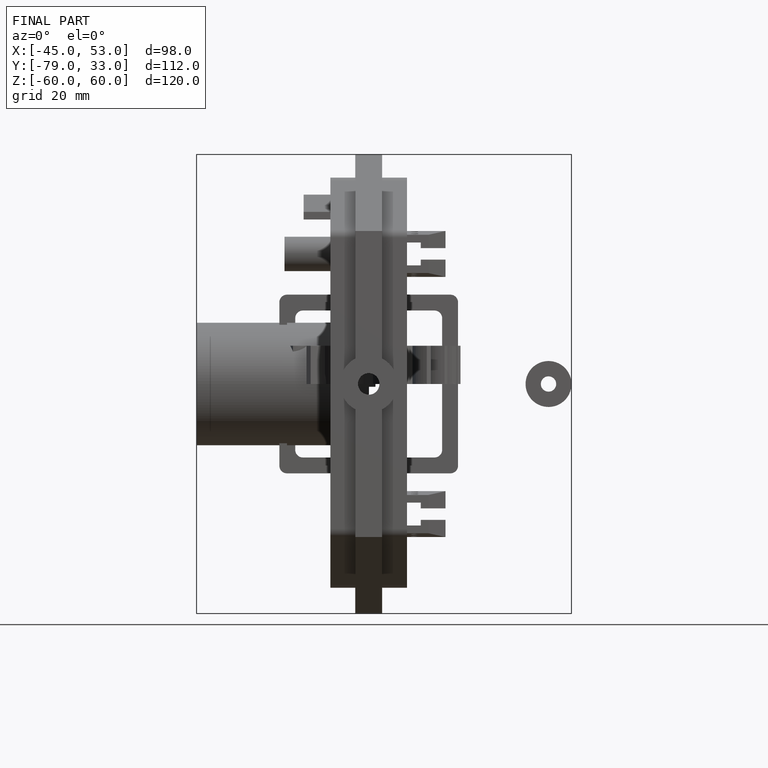
[diagram: finished part — front view with bounding-box wireframe]
